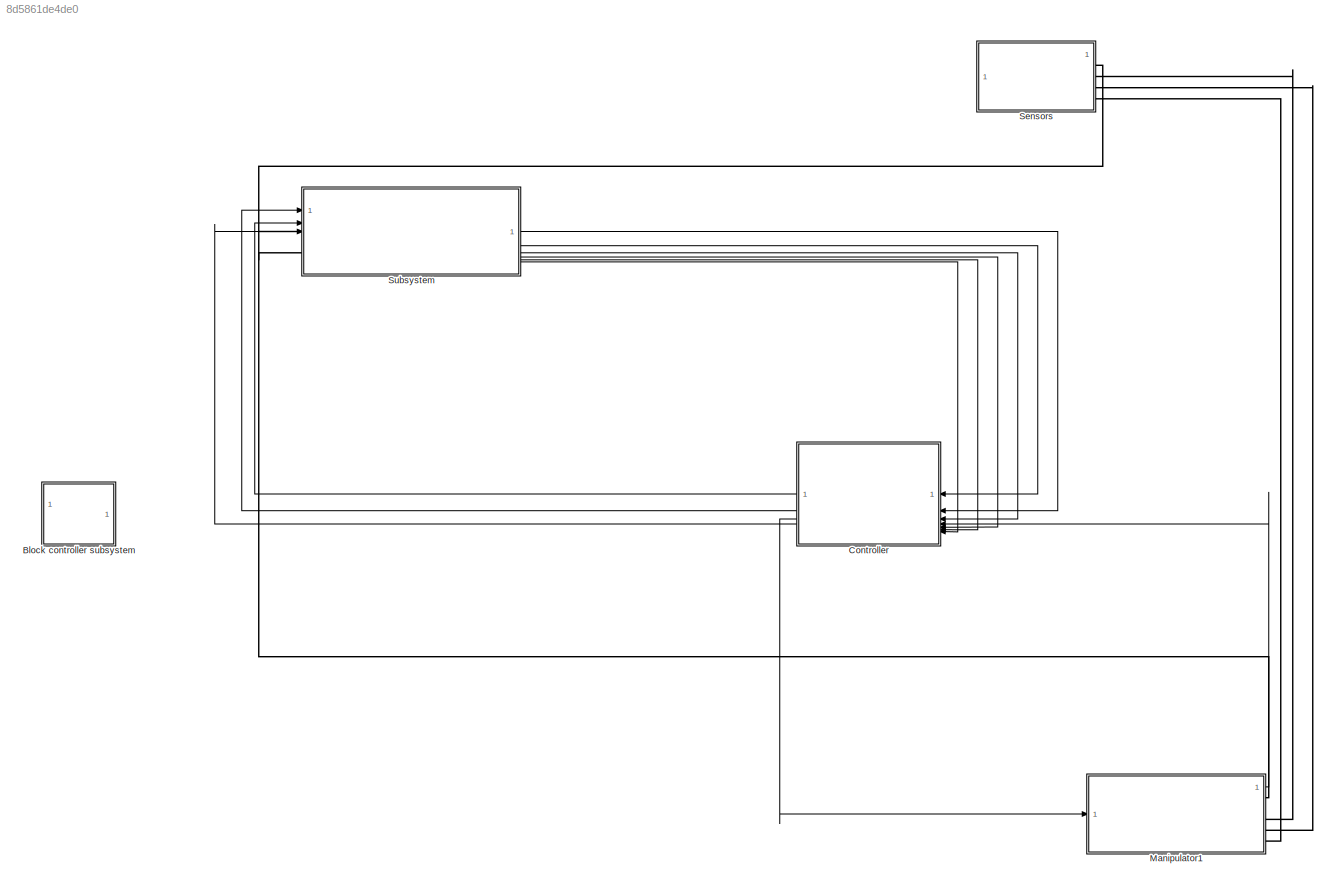
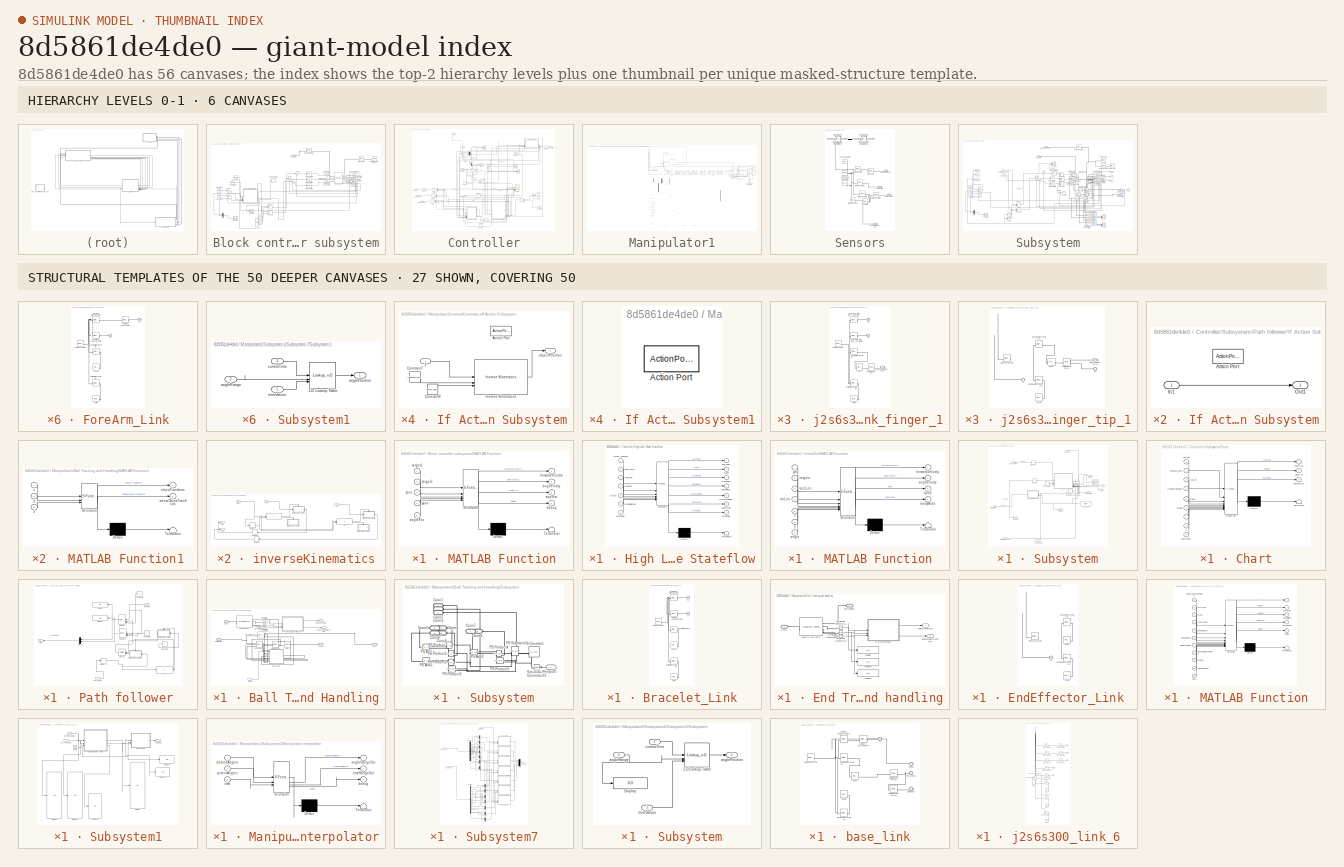
[diagram: thumbnail index - top-2 hierarchy levels (6 canvases) + 27 structural-template representatives of the remaining 50 canvases]
MODEL slx_8d5861de4de0
KIND model
CONFIG AbsTol = auto
CONFIG EnableMultiTasking = off
CONFIG FixedStep = 0.1
CONFIG MaxStep = 0.01
CONFIG MinStep = auto
CONFIG RelTol = 1e-3
CONFIG SampleTimeConstraint = Unconstrained
CONFIG SolverName = ode15s
CONFIG StartTime = 0.0
CONFIG StopTime = 1000
BLOCK [SubSystem] Block controller subsystem
  Commented = on
  TreatAsAtomicUnit = on
BLOCK [Reference] Block controller subsystem/Brick Solid1  REF=sm_lib/Body Elements/Brick Solid
  SourceBlock = sm_lib/Body Elements/Brick Solid
  SourceType = Brick Solid
BLOCK [Constant] Block controller subsystem/Constant
  Value = target1
BLOCK [Constant] Block controller subsystem/Constant1
  Value = startx
BLOCK [Constant] Block controller subsystem/Constant2
  Value = starty
BLOCK [Constant] Block controller subsystem/Constant3
  Value = target2
BLOCK [Trigonometry] Block controller subsystem/Cos
  Operator = cos
BLOCK [Trigonometry] Block controller subsystem/Cos1
BLOCK [SubSystem] Block controller subsystem/MATLAB Function
  ErrorFcn = Stateflow.Translate.translate
  LibrarySourceBlock = simulink/User-Defined\nFunctions/MATLAB Function
  PermitHierarchicalResolution = ExplicitOnly
  SFBlockType = MATLAB Function
  SystemSampleTime = 0.1
  TreatAsAtomicUnit = on
BLOCK [Demux] Block controller subsystem/MATLAB Function/ Demux 
  Outputs = 1
BLOCK [S-Function] Block controller subsystem/MATLAB Function/ SFunction 
  EnableBusSupport = on
  FunctionName = sf_sfun
  PortCounts = [5 5]
  SFcnIsStateOwnerBlock = off
  SFunctionDeploymentMode = off
  Tag = Stateflow S-Function 2
BLOCK [Terminator] Block controller subsystem/MATLAB Function/ Terminator 
BLOCK [Outport] Block controller subsystem/MATLAB Function/angVelocity
  Port = 2
BLOCK [Inport] Block controller subsystem/MATLAB Function/anglePos
  Port = 5
BLOCK [Outport] Block controller subsystem/MATLAB Function/debug
  Port = 4
BLOCK [Outport] Block controller subsystem/MATLAB Function/forwardVelocity
BLOCK [Outport] Block controller subsystem/MATLAB Function/stopSim
  Port = 3
BLOCK [Inport] Block controller subsystem/MATLAB Function/target1
BLOCK [Inport] Block controller subsystem/MATLAB Function/target2
  Port = 2
BLOCK [Inport] Block controller subsystem/MATLAB Function/xpos
  Port = 3
BLOCK [Inport] Block controller subsystem/MATLAB Function/ypos
  Port = 4
BLOCK [Mux] Block controller subsystem/Mux
  DisplayOption = bar
  Inputs = 2
BLOCK [Reference] Block controller subsystem/PID Controller r  REF=slpidlib/PID Controller
  LibrarySourceBlock = simulink/Continuous/PID Controller
  SourceBlock = slpidlib/PID Controller
  SourceType = PID 1dof
BLOCK [Reference] Block controller subsystem/PID Controller x  REF=slpidlib/PID Controller
  LibrarySourceBlock = simulink/Continuous/PID Controller
  SourceBlock = slpidlib/PID Controller
  SourceType = PID 1dof
BLOCK [Reference] Block controller subsystem/PID Controller y  REF=slpidlib/PID Controller
  LibrarySourceBlock = simulink/Continuous/PID Controller
  SourceBlock = slpidlib/PID Controller
  SourceType = PID 1dof
BLOCK [Reference] Block controller subsystem/PS-Simulink Converter  REF=nesl_utility/PS-Simulink
Converter
  SourceBlock = nesl_utility/PS-Simulink\nConverter
  SourceType = PS-Simulink\nConverter
BLOCK [Reference] Block controller subsystem/PS-Simulink Converter1  REF=nesl_utility/PS-Simulink
Converter
  SourceBlock = nesl_utility/PS-Simulink\nConverter
  SourceType = PS-Simulink\nConverter
BLOCK [Reference] Block controller subsystem/PS-Simulink Converter2  REF=nesl_utility/PS-Simulink
Converter
  SourceBlock = nesl_utility/PS-Simulink\nConverter
  SourceType = PS-Simulink\nConverter
BLOCK [Reference] Block controller subsystem/PS-Simulink Converter3  REF=nesl_utility/PS-Simulink
Converter
  SourceBlock = nesl_utility/PS-Simulink\nConverter
  SourceType = PS-Simulink\nConverter
BLOCK [Reference] Block controller subsystem/PS-Simulink Converter4  REF=nesl_utility/PS-Simulink
Converter
  SourceBlock = nesl_utility/PS-Simulink\nConverter
  SourceType = PS-Simulink\nConverter
BLOCK [Reference] Block controller subsystem/PS-Simulink Converter5  REF=nesl_utility/PS-Simulink
Converter
  SourceBlock = nesl_utility/PS-Simulink\nConverter
  SourceType = PS-Simulink\nConverter
BLOCK [Reference] Block controller subsystem/Planar Joint  REF=sm_lib/Joints/Planar Joint
  SourceBlock = sm_lib/Joints/Planar Joint
  SourceType = Planar Joint
BLOCK [Product] Block controller subsystem/Product
BLOCK [Product] Block controller subsystem/Product1
BLOCK [Reference] Block controller subsystem/Rigid Transform1  REF=sm_lib/Frames and
Transforms/Rigid
Transform
  SourceBlock = sm_lib/Frames and\nTransforms/Rigid\nTransform
  SourceType = Rigid\nTransform
BLOCK [Scope] Block controller subsystem/Scope
  Floating = off
  NumInputPorts = 1
  ScopeSpecificationString = Simulink.scopes.TimeScopeBlockCfg('CurrentConfiguration', extmgr.ConfigurationSet(extmgr.Configuration('Core','General UI',true),extmgr.Configuration('Core','Source UI',true),extmgr.Configuration('Sources','WiredSimulink',true),extmgr.Configuration('Visuals','Time Domain',true,'SerializedDisplays',{struct('MinYLimReal','-0.75','MaxYLimReal','16.75','YLabelReal','','MinYLimMag','0.00000','MaxYLimMa...<+1356ch>
BLOCK [Scope] Block controller subsystem/Scope1
  Floating = off
  NumInputPorts = 1
  ScopeSpecificationString = Simulink.scopes.TimeScopeBlockCfg('CurrentConfiguration', extmgr.ConfigurationSet(extmgr.Configuration('Core','General UI',true),extmgr.Configuration('Core','Source UI',true),extmgr.Configuration('Sources','WiredSimulink',true,'DataLoggingVariableName','ScopeData1'),extmgr.Configuration('Visuals','Time Domain',true,'SerializedDisplays',{struct('MinYLimReal','-0.12626','MaxYLimReal','21.13635','YLa...<+1691ch>
BLOCK [Reference] Block controller subsystem/Simulink-PS Converter1  REF=nesl_utility/Simulink-PS
Converter
  SourceBlock = nesl_utility/Simulink-PS\nConverter
  SourceType = Simulink-PS\nConverter
BLOCK [Reference] Block controller subsystem/Simulink-PS Converter2  REF=nesl_utility/Simulink-PS
Converter
  SourceBlock = nesl_utility/Simulink-PS\nConverter
  SourceType = Simulink-PS\nConverter
BLOCK [Reference] Block controller subsystem/Simulink-PS Converter5  REF=nesl_utility/Simulink-PS
Converter
  SourceBlock = nesl_utility/Simulink-PS\nConverter
  SourceType = Simulink-PS\nConverter
BLOCK [Reference] Block controller subsystem/Spatial Contact Force  REF=sm_lib/Forces and
Torques/Spatial
Contact Force
  SourceBlock = sm_lib/Forces and\nTorques/Spatial\nContact Force
  SourceType = Spatial\nContact Force
BLOCK [Stop] Block controller subsystem/Stop Simulation
BLOCK [Sum] Block controller subsystem/Sum
  Inputs = |+-
BLOCK [Sum] Block controller subsystem/Sum1
  Inputs = |++
BLOCK [Sum] Block controller subsystem/Sum2
  Inputs = |++
BLOCK [Sum] Block controller subsystem/Sum3
  Inputs = |+-
BLOCK [Sum] Block controller subsystem/Sum4
  Inputs = |+-
BLOCK [PMIOPort] Block controller subsystem/Transform
  Side = Left
BLOCK [SubSystem] Controller
  NameLocation = top
BLOCK [Outport] Controller/Angular Velocity
  NameLocation = top
  Port = 2
  VectorParamsAs1DForOutWhenUnconnected = off
BLOCK [Trigonometry] Controller/Atan2
  Operator = atan2
BLOCK [Constant] Controller/Constant
  Value = 0.1
BLOCK [Constant] Controller/Constant2
  Value = 0.001
BLOCK [Constant] Controller/Constant3
  Value = tarLen
BLOCK [Demux] Controller/Demux1
  Outputs = 2
BLOCK [Outport] Controller/ForwardVelocity
  NameLocation = top
  VectorParamsAs1DForOutWhenUnconnected = off
BLOCK [SubSystem] Controller/High Level Mode Stateflow
  ErrorFcn = Stateflow.Translate.translate
  PermitHierarchicalResolution = ExplicitOnly
  PortSchema = {"entries":[{"content":{"sides":[{"content":{"connectorIds":["In2","In3","In1"]},"type":"ConnectorPlacement.EquallySpacedRectSide","uuid":"54635eaa-af22-4c07-946c-8b3764ca4079"},{"content":{"connectorIds":["Out1","Out2","Out3","Out4","In4","In5","In6","In7","Out5","Out6","Out7"],"side":"RIGHT"},"type":"ConnectorPlacement.EquallySpacedRectSide","uuid":"b8ca9e50-c21e-481d-aebe-d3447dd5b6ec"},{"conte...<+318ch>
  SFBlockType = Chart
  TreatAsAtomicUnit = on
BLOCK [Demux] Controller/High Level Mode Stateflow/ Demux 
  Outputs = 1
BLOCK [S-Function] Controller/High Level Mode Stateflow/ SFunction 
  EnableBusSupport = on
  FunctionName = sf_sfun
  PortCounts = [7 8]
  SFcnIsStateOwnerBlock = off
  SFunctionDeploymentMode = off
  Tag = Stateflow S-Function 3
BLOCK [Terminator] Controller/High Level Mode Stateflow/ Terminator 
BLOCK [Outport] Controller/High Level Mode Stateflow/ManipTask
  Port = 3
BLOCK [Outport] Controller/High Level Mode Stateflow/angVelocity
  Port = 4
BLOCK [Outport] Controller/High Level Mode Stateflow/bodyMode
  Port = 6
BLOCK [Inport] Controller/High Level Mode Stateflow/broadFinished
  Port = 6
BLOCK [Outport] Controller/High Level Mode Stateflow/broadside
  Port = 7
BLOCK [Inport] Controller/High Level Mode Stateflow/delta_theta
  Port = 2
BLOCK [Outport] Controller/High Level Mode Stateflow/forwardVelocity
  Port = 5
BLOCK [Outport] Controller/High Level Mode Stateflow/mode
  Port = 2
BLOCK [Inport] Controller/High Level Mode Stateflow/posToSkip
  Port = 7
BLOCK [Outport] Controller/High Level Mode Stateflow/pos_index
BLOCK [Inport] Controller/High Level Mode Stateflow/resetPos
  Port = 3
BLOCK [Inport] Controller/High Level Mode Stateflow/stopped
  Port = 4
BLOCK [Inport] Controller/High Level Mode Stateflow/tarLen
  Port = 5
BLOCK [Inport] Controller/High Level Mode Stateflow/target_reached
BLOCK [RelationalOperator] Controller/Less Than
  InputSameDT = off
  Operator = <
  OutDataTypeStr = boolean
  RndMeth = Simplest
BLOCK [RelationalOperator] Controller/Less Than1
  InputSameDT = off
  Operator = <
  OutDataTypeStr = boolean
  RndMeth = Simplest
BLOCK [SubSystem] Controller/MATLAB Function
  ErrorFcn = Stateflow.Translate.translate
  LibrarySourceBlock = simulink/User-Defined\nFunctions/MATLAB Function
  PermitHierarchicalResolution = ExplicitOnly
  SFBlockType = MATLAB Function
  TreatAsAtomicUnit = on
BLOCK [Demux] Controller/MATLAB Function/ Demux 
  Outputs = 1
BLOCK [S-Function] Controller/MATLAB Function/ SFunction 
  EnableBusSupport = on
  FunctionName = sf_sfun
  PortCounts = [7 5]
  SFcnIsStateOwnerBlock = off
  SFunctionDeploymentMode = off
  Tag = Stateflow S-Function 13
BLOCK [Terminator] Controller/MATLAB Function/ Terminator 
BLOCK [Outport] Controller/MATLAB Function/angVelocity
  Port = 2
BLOCK [Inport] Controller/MATLAB Function/angle
  Port = 7
BLOCK [Outport] Controller/MATLAB Function/bodyMode
  Port = 4
BLOCK [Outport] Controller/MATLAB Function/done
  Port = 3
BLOCK [Outport] Controller/MATLAB Function/forwardVelocity
BLOCK [Inport] Controller/MATLAB Function/go
BLOCK [Inport] Controller/MATLAB Function/tar1Len
  Port = 3
BLOCK [Inport] Controller/MATLAB Function/tarLen
  Port = 4
BLOCK [Inport] Controller/MATLAB Function/targets
  Port = 2
BLOCK [Inport] Controller/MATLAB Function/x
  Port = 5
BLOCK [Inport] Controller/MATLAB Function/y
  Port = 6
BLOCK [Inport] Controller/ManipState
  NameLocation = right
  Port = 4
BLOCK [Memory] Controller/Memory
BLOCK [Memory] Controller/Memory1
BLOCK [Memory] Controller/Memory2
BLOCK [Memory] Controller/Memory3
BLOCK [Memory] Controller/Memory4
BLOCK [Memory] Controller/Memory5
BLOCK [Outport] Controller/Mode
  Port = 4
BLOCK [Mux] Controller/Mux
  DisplayOption = bar
  Inputs = 2
BLOCK [Scope] Controller/Scope
  Floating = off
  NumInputPorts = 3
  ScopeSpecificationString = Simulink.scopes.TimeScopeBlockCfg('CurrentConfiguration', extmgr.ConfigurationSet(extmgr.Configuration('Core','General UI',true),extmgr.Configuration('Core','Source UI',true),extmgr.Configuration('Sources','WiredSimulink',true,'DataLoggingVariableName','ScopeData1'),extmgr.Configuration('Visuals','Time Domain',true,'SerializedDisplays',{struct('MinYLimReal','-5.94785','MaxYLimReal','5.12673','YLab...<+1427ch>
BLOCK [Scope] Controller/Scope1
  Floating = off
  NumInputPorts = 2
  ScopeSpecificationString = Simulink.scopes.TimeScopeBlockCfg('CurrentConfiguration', extmgr.ConfigurationSet(extmgr.Configuration('Core','General UI',true),extmgr.Configuration('Core','Source UI',true),extmgr.Configuration('Sources','WiredSimulink',true,'DataLoggingVariableName','ScopeData1'),extmgr.Configuration('Visuals','Time Domain',true,'SerializedDisplays',{struct('MinYLimReal','-8.42515','MaxYLimReal','12.96484','YLa...<+1793ch>
BLOCK [Scope] Controller/Scope2
  Floating = off
  NumInputPorts = 7
  ScopeSpecificationString = Simulink.scopes.TimeScopeBlockCfg('CurrentConfiguration', extmgr.ConfigurationSet(extmgr.Configuration('Core','General UI',true),extmgr.Configuration('Core','Source UI',true),extmgr.Configuration('Sources','WiredSimulink',true,'DataLoggingVariableName','ScopeData1'),extmgr.Configuration('Visuals','Time Domain',true,'SerializedDisplays',{struct('MinYLimReal','-4.68883','MaxYLimReal','9.40987','YLab...<+1640ch>
BLOCK [Scope] Controller/Scope3
  Floating = off
  NumInputPorts = 2
  ScopeSpecificationString = Simulink.scopes.TimeScopeBlockCfg('CurrentConfiguration', extmgr.ConfigurationSet(extmgr.Configuration('Core','General UI',true),extmgr.Configuration('Core','Source UI',true),extmgr.Configuration('Sources','WiredSimulink',true,'DataLoggingVariableName','ScopeData1'),extmgr.Configuration('Visuals','Time Domain',true,'SerializedDisplays',{struct('MinYLimReal','-8.42515','MaxYLimReal','12.96484','YLa...<+1464ch>
BLOCK [Scope] Controller/Scope4
  Floating = off
  NumInputPorts = 2
  ScopeSpecificationString = Simulink.scopes.TimeScopeBlockCfg('CurrentConfiguration', extmgr.ConfigurationSet(extmgr.Configuration('Core','General UI',true),extmgr.Configuration('Core','Source UI',true),extmgr.Configuration('Sources','WiredSimulink',true,'DataLoggingVariableName','ScopeData1'),extmgr.Configuration('Visuals','Time Domain',true,'SerializedDisplays',{struct('MinYLimReal','-0.625','MaxYLimReal','5.625','YLabelRe...<+1363ch>
BLOCK [Sqrt] Controller/Sqrt
  NameLocation = left
BLOCK [Math] Controller/Square
  NameLocation = left
  Operator = square
BLOCK [Math] Controller/Square1
  NameLocation = left
  Operator = square
BLOCK [Outport] Controller/Start Manip Task
  NameLocation = top
  Port = 3
  VectorParamsAs1DForOutWhenUnconnected = off
BLOCK [SubSystem] Controller/Subsystem
BLOCK [SubSystem] Controller/Subsystem/Chart
  ErrorFcn = Stateflow.Translate.translate
  PermitHierarchicalResolution = ExplicitOnly
  SFBlockType = Chart
  TreatAsAtomicUnit = on
BLOCK [Demux] Controller/Subsystem/Chart/ Demux 
  Outputs = 1
BLOCK [S-Function] Controller/Subsystem/Chart/ SFunction 
  EnableBusSupport = on
  FunctionName = sf_sfun
  PortCounts = [9 4]
  SFcnIsStateOwnerBlock = off
  SFunctionDeploymentMode = off
  Tag = Stateflow S-Function 4
BLOCK [Terminator] Controller/Subsystem/Chart/ Terminator 
BLOCK [Inport] Controller/Subsystem/Chart/check
  Port = 5
BLOCK [Outport] Controller/Subsystem/Chart/endSim
  Port = 2
BLOCK [Inport] Controller/Subsystem/Chart/manipState
  Port = 2
BLOCK [Outport] Controller/Subsystem/Chart/posToSkip
  Port = 3
BLOCK [Inport] Controller/Subsystem/Chart/pos_index
  Port = 9
BLOCK [Outport] Controller/Subsystem/Chart/resetPos
BLOCK [Inport] Controller/Subsystem/Chart/tar1Len
BLOCK [Inport] Controller/Subsystem/Chart/tarLen
  Port = 3
BLOCK [Inport] Controller/Subsystem/Chart/target
  Port = 6
BLOCK [Inport] Controller/Subsystem/Chart/targetReached
  Port = 4
BLOCK [Inport] Controller/Subsystem/Chart/x
  Port = 8
BLOCK [Inport] Controller/Subsystem/Chart/y
  Port = 7
BLOCK [Constant] Controller/Subsystem/Constant1
  Value = target
BLOCK [Constant] Controller/Subsystem/Constant6
  Value = tar1Len
BLOCK [Delay] Controller/Subsystem/Delay
  DelayLength = 1
  InputPortMap = u0
BLOCK [Inport] Controller/Subsystem/ManipState
  NameLocation = top
BLOCK [Memory] Controller/Subsystem/Memory1
BLOCK [Memory] Controller/Subsystem/Memory2
BLOCK [SubSystem] Controller/Subsystem/Path follower
  TreatAsAtomicUnit = on
BLOCK [Constant] Controller/Subsystem/Path follower/Constant2
BLOCK [Constant] Controller/Subsystem/Path follower/Constant3
  Value = 2
BLOCK [Constant] Controller/Subsystem/Path follower/Constant4
BLOCK [Display] Controller/Subsystem/Path follower/Display
  Decimation = 1
BLOCK [Display] Controller/Subsystem/Path follower/Display1
  Decimation = 1
BLOCK [If] Controller/Subsystem/Path follower/If
  IfExpression = u1 <= 0
BLOCK [SubSystem] Controller/Subsystem/Path follower/If Action Subsystem
  TreatAsAtomicUnit = on
BLOCK [ActionPort] Controller/Subsystem/Path follower/If Action Subsystem/Action Port
  ActionPortLabel = if(u1 <= 0)
BLOCK [Inport] Controller/Subsystem/Path follower/If Action Subsystem/In1
BLOCK [Outport] Controller/Subsystem/Path follower/If Action Subsystem/Out1
BLOCK [SubSystem] Controller/Subsystem/Path follower/If Action Subsystem1
  TreatAsAtomicUnit = on
BLOCK [ActionPort] Controller/Subsystem/Path follower/If Action Subsystem1/Action Port
  ActionPortLabel = else
BLOCK [Inport] Controller/Subsystem/Path follower/If Action Subsystem1/In1
BLOCK [Outport] Controller/Subsystem/Path follower/If Action Subsystem1/Out1
BLOCK [Memory] Controller/Subsystem/Path follower/Memory1
BLOCK [Merge] Controller/Subsystem/Path follower/Merge
BLOCK [Mux] Controller/Subsystem/Path follower/Mux1
  DisplayOption = bar
  Inputs = 2
BLOCK [Outport] Controller/Subsystem/Path follower/Out1
BLOCK [Selector] Controller/Subsystem/Path follower/Selector
  IndexOptions = Index vector (port),Index vector (port)
  Indices = [1 3],1
  InputPortWidth = 1
  NumberOfDimensions = 2
  OutputSizes = 1,1
BLOCK [Selector] Controller/Subsystem/Path follower/Selector1
  IndexOptions = Index vector (port),Index vector (port)
  Indices = [1 3],1
  InputPortWidth = 1
  NumberOfDimensions = 2
  OutputSizes = 1,1
BLOCK [Inport] Controller/Subsystem/Path follower/pos_index
BLOCK [Inport] Controller/Subsystem/Path follower/targets
  Port = 2
BLOCK [Stop] Controller/Subsystem/Stop Simulation
BLOCK [Outport] Controller/Subsystem/TargetPos
BLOCK [Outport] Controller/Subsystem/posToskip
  Port = 4
BLOCK [Inport] Controller/Subsystem/pos_index
  Port = 3
BLOCK [Outport] Controller/Subsystem/resetPos
  Port = 2
BLOCK [Outport] Controller/Subsystem/tar1Len
  Port = 5
BLOCK [Inport] Controller/Subsystem/tarLen
  Port = 4
BLOCK [Inport] Controller/Subsystem/targetReached
  Port = 2
BLOCK [Outport] Controller/Subsystem/targets
  Port = 3
BLOCK [Inport] Controller/Subsystem/x
  Port = 5
BLOCK [Inport] Controller/Subsystem/y
  Port = 6
BLOCK [Sum] Controller/Sum
  Inputs = |+++
BLOCK [Sum] Controller/Sum1
  Inputs = |-+
  NameLocation = left
BLOCK [Sum] Controller/Sum2
  Inputs = -+|
  NameLocation = left
BLOCK [Sum] Controller/Sum3
  Inputs = |++
  NameLocation = left
BLOCK [Sum] Controller/Sum6
  Inputs = |++
BLOCK [Switch] Controller/Switch
  Criteria = u2 > Threshold
  InputSameDT = off
  SaturateOnIntegerOverflow = off
BLOCK [Switch] Controller/Switch1
  Criteria = u2 > Threshold
  InputSameDT = off
  SaturateOnIntegerOverflow = off
BLOCK [Switch] Controller/Switch2
  Criteria = u2 > Threshold
  InputSameDT = off
  SaturateOnIntegerOverflow = off
BLOCK [Inport] Controller/angpos
  NameLocation = top
  Port = 3
BLOCK [Inport] Controller/rv
  NameLocation = top
  Port = 7
BLOCK [Inport] Controller/xpos
  NameLocation = top
BLOCK [Inport] Controller/xv
  NameLocation = top
  Port = 5
BLOCK [Inport] Controller/ypos
  NameLocation = top
  Port = 2
BLOCK [Inport] Controller/yv
  NameLocation = top
  Port = 6
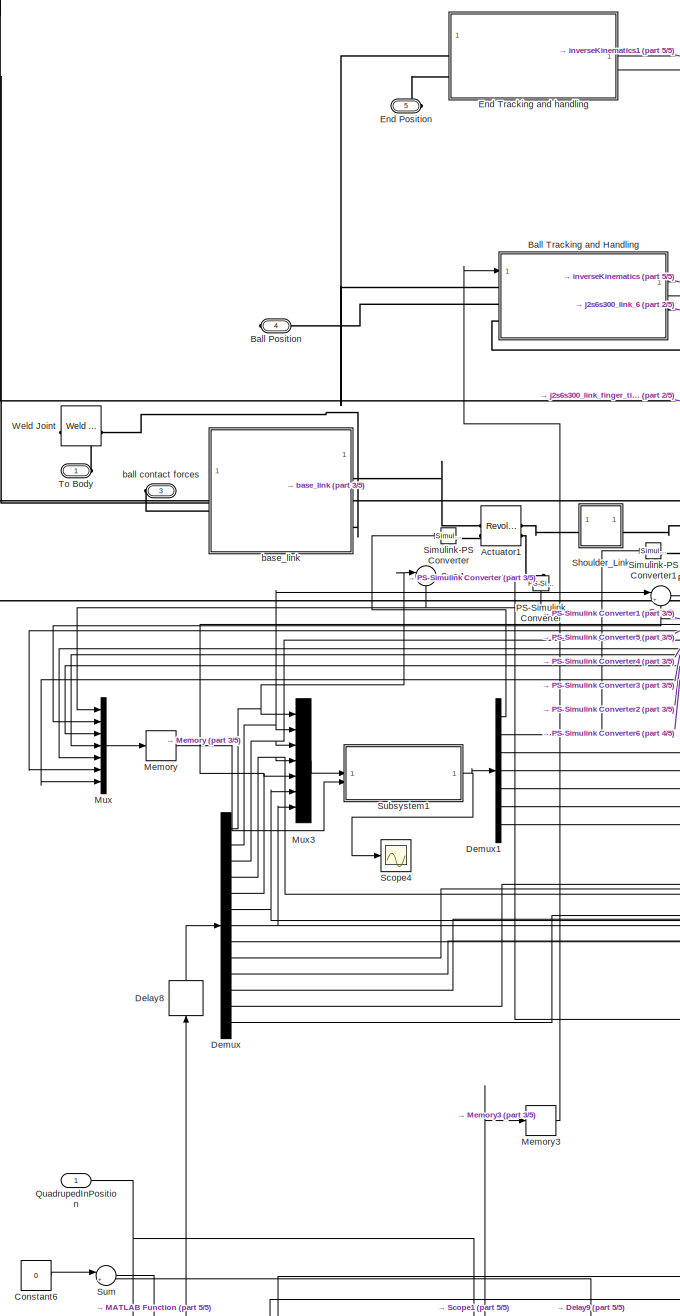
[diagram: Manipulator1 - part 1/5, central region]
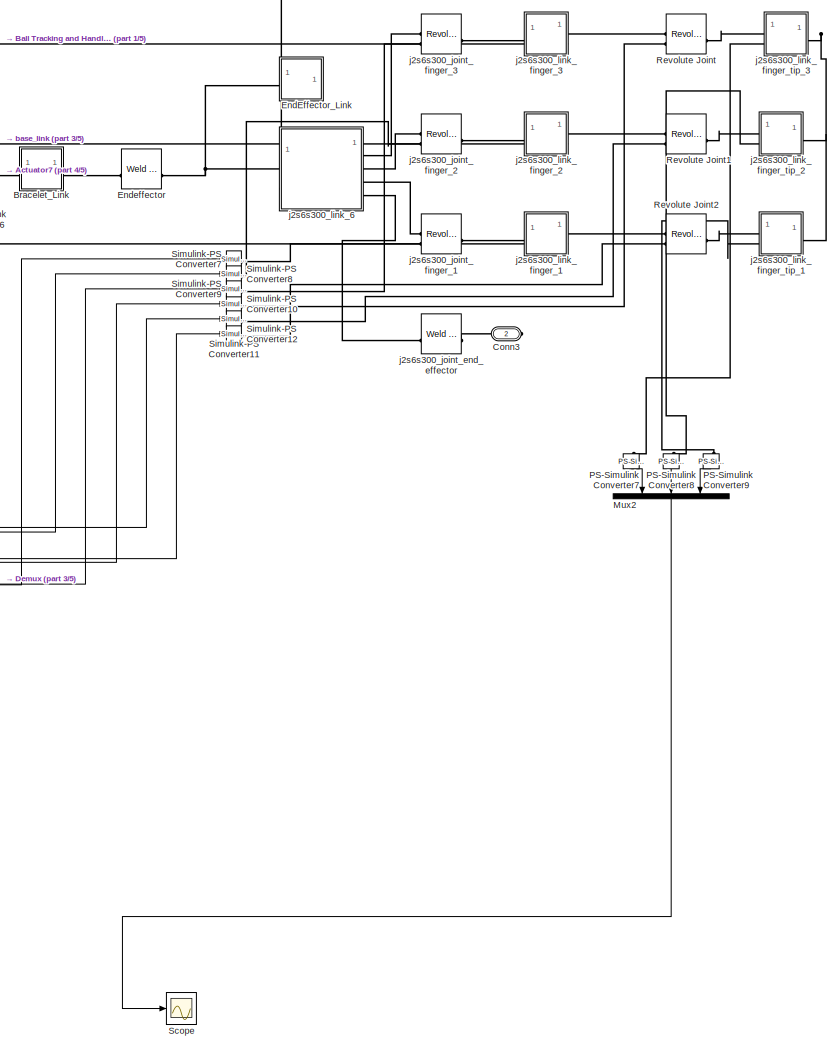
[diagram: Manipulator1 - part 2/5, middle right region]
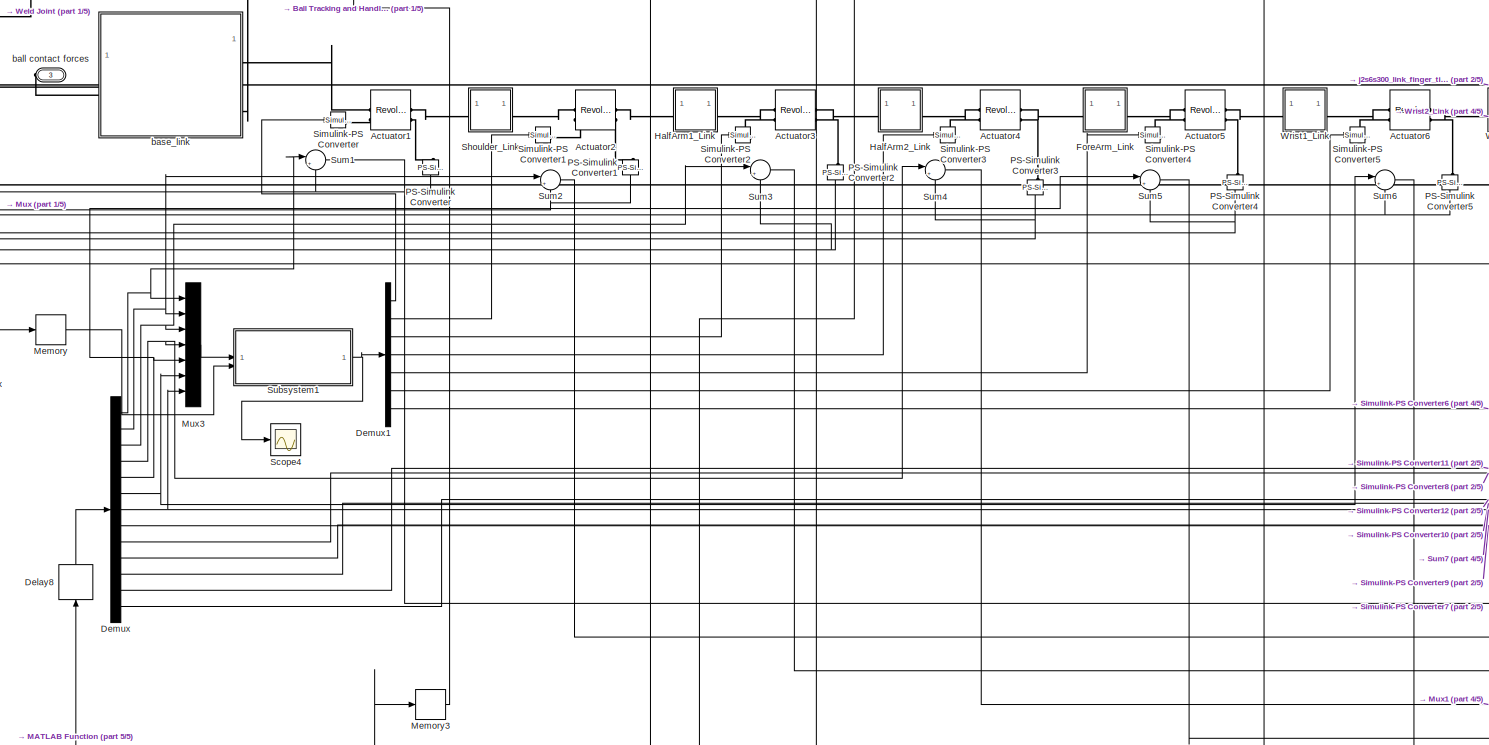
[diagram: Manipulator1 - part 3/5, central region]
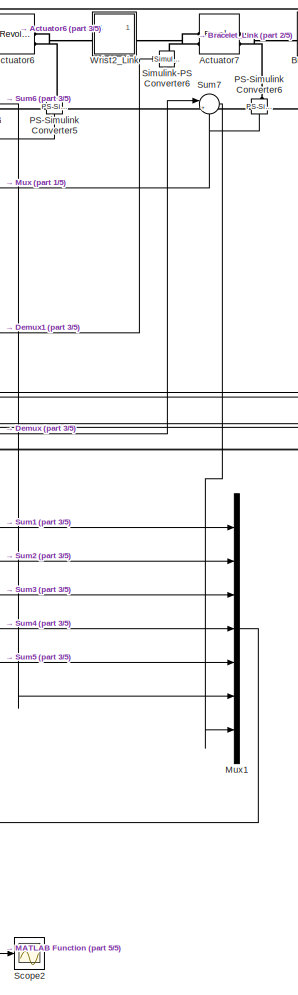
[diagram: Manipulator1 - part 4/5, middle right region]
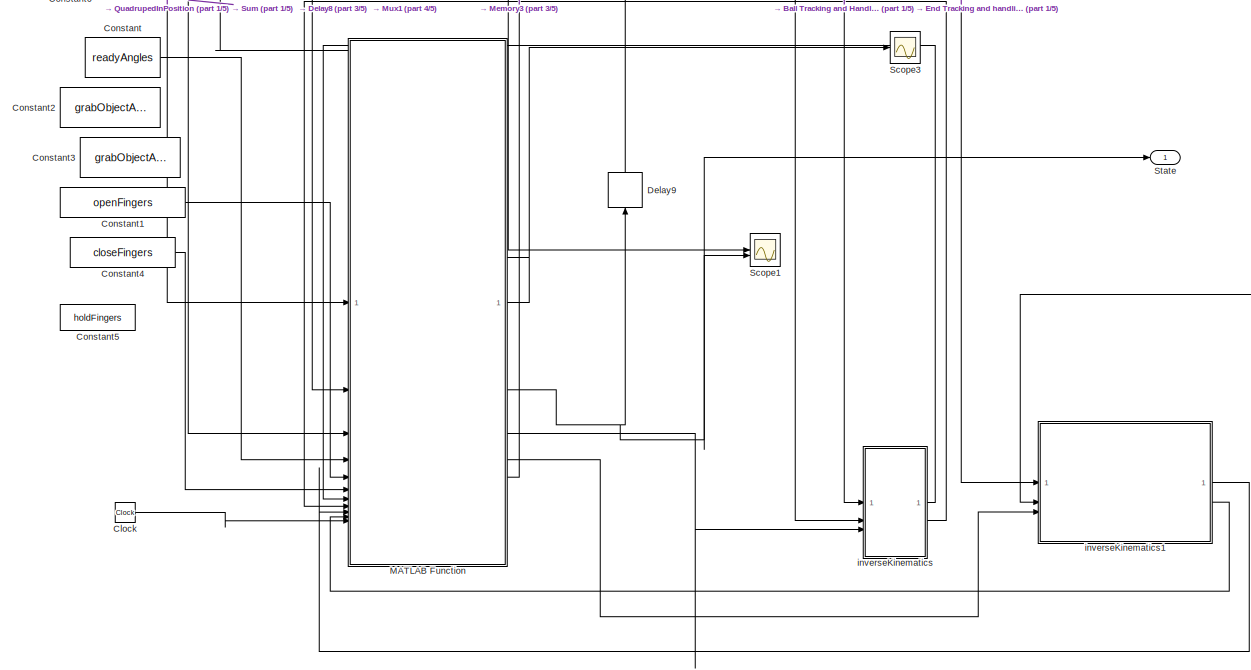
[diagram: Manipulator1 - part 5/5, bottom center region]
BLOCK [SubSystem] Manipulator1
BLOCK [Reference] Manipulator1/Actuator1  REF=sm_lib/Joints/Revolute Joint
  SourceBlock = sm_lib/Joints/Revolute Joint
  SourceType = Revolute Joint
BLOCK [Reference] Manipulator1/Actuator2  REF=sm_lib/Joints/Revolute Joint
  SourceBlock = sm_lib/Joints/Revolute Joint
  SourceType = Revolute Joint
BLOCK [Reference] Manipulator1/Actuator3  REF=sm_lib/Joints/Revolute Joint
  SourceBlock = sm_lib/Joints/Revolute Joint
  SourceType = Revolute Joint
BLOCK [Reference] Manipulator1/Actuator4  REF=sm_lib/Joints/Revolute Joint
  SourceBlock = sm_lib/Joints/Revolute Joint
  SourceType = Revolute Joint
BLOCK [Reference] Manipulator1/Actuator5  REF=sm_lib/Joints/Revolute Joint
  SourceBlock = sm_lib/Joints/Revolute Joint
  SourceType = Revolute Joint
BLOCK [Reference] Manipulator1/Actuator6  REF=sm_lib/Joints/Revolute Joint
  SourceBlock = sm_lib/Joints/Revolute Joint
  SourceType = Revolute Joint
BLOCK [Reference] Manipulator1/Actuator7  REF=sm_lib/Joints/Revolute Joint
  SourceBlock = sm_lib/Joints/Revolute Joint
  SourceType = Revolute Joint
BLOCK [PMIOPort] Manipulator1/Ball Position
  Port = 4
  Side = Right
BLOCK [SubSystem] Manipulator1/Ball Tracking and Handling
BLOCK [Reference] Manipulator1/Ball Tracking and Handling/BASE TO BALL  REF=sm_lib/Frames and
Transforms/Transform
Sensor
  SourceBlock = sm_lib/Frames and\nTransforms/Transform\nSensor
  SourceType = Transform\nSensor
BLOCK [PMIOPort] Manipulator1/Ball Tracking and Handling/Ball Position
  Port = 2
  Side = Left
BLOCK [PMIOPort] Manipulator1/Ball Tracking and Handling/Base
  Side = Left
BLOCK [PMIOPort] Manipulator1/Ball Tracking and Handling/Conn3
  Port = 3
  Side = Left
BLOCK [PMIOPort] Manipulator1/Ball Tracking and Handling/Conn4
  Port = 4
  Side = Right
BLOCK [SubSystem] Manipulator1/Ball Tracking and Handling/MATLAB Function1
  ErrorFcn = Stateflow.Translate.translate
  LibrarySourceBlock = simulink/User-Defined\nFunctions/MATLAB Function
  PermitHierarchicalResolution = ExplicitOnly
  SFBlockType = MATLAB Function
  TreatAsAtomicUnit = on
BLOCK [Demux] Manipulator1/Ball Tracking and Handling/MATLAB Function1/ Demux 
  Outputs = 1
BLOCK [S-Function] Manipulator1/Ball Tracking and Handling/MATLAB Function1/ SFunction 
  EnableBusSupport = on
  FunctionName = sf_sfun
  PortCounts = [3 3]
  SFcnIsStateOwnerBlock = off
  SFunctionDeploymentMode = off
  Tag = Stateflow S-Function 7
BLOCK [Terminator] Manipulator1/Ball Tracking and Handling/MATLAB Function1/ Terminator 
BLOCK [Outport] Manipulator1/Ball Tracking and Handling/MATLAB Function1/aboveObjectTransform
  Port = 2
BLOCK [Outport] Manipulator1/Ball Tracking and Handling/MATLAB Function1/objectTransform
BLOCK [Inport] Manipulator1/Ball Tracking and Handling/MATLAB Function1/x
BLOCK [Inport] Manipulator1/Ball Tracking and Handling/MATLAB Function1/y
  Port = 2
BLOCK [Inport] Manipulator1/Ball Tracking and Handling/MATLAB Function1/z
  Port = 3
BLOCK [Reference] Manipulator1/Ball Tracking and Handling/Object  REF=sm_lib/Body Elements/Spherical Solid
  SourceBlock = sm_lib/Body Elements/Spherical Solid
  SourceType = Spherical Solid
BLOCK [Reference] Manipulator1/Ball Tracking and Handling/PS-Simulink Converter11  REF=nesl_utility/PS-Simulink
Converter
  SourceBlock = nesl_utility/PS-Simulink\nConverter
  SourceType = PS-Simulink\nConverter
BLOCK [Reference] Manipulator1/Ball Tracking and Handling/PS-Simulink Converter12  REF=nesl_utility/PS-Simulink
Converter
  SourceBlock = nesl_utility/PS-Simulink\nConverter
  SourceType = PS-Simulink\nConverter
BLOCK [Reference] Manipulator1/Ball Tracking and Handling/PS-Simulink Converter13  REF=nesl_utility/PS-Simulink
Converter
  SourceBlock = nesl_utility/PS-Simulink\nConverter
  SourceType = PS-Simulink\nConverter
BLOCK [Reference] Manipulator1/Ball Tracking and Handling/Planar Joint  REF=sm_lib/Joints/Planar Joint
  SourceBlock = sm_lib/Joints/Planar Joint
  SourceType = Planar Joint
BLOCK [Reference] Manipulator1/Ball Tracking and Handling/Prismatic Joint  REF=sm_lib/Joints/Prismatic
Joint
  SourceBlock = sm_lib/Joints/Prismatic\nJoint
  SourceType = Prismatic\nJoint
BLOCK [SubSystem] Manipulator1/Ball Tracking and Handling/Subsystem
BLOCK [PMIOPort] Manipulator1/Ball Tracking and Handling/Subsystem/Conn1
  Side = Left
BLOCK [PMIOPort] Manipulator1/Ball Tracking and Handling/Subsystem/Conn2
  Port = 2
  Side = Left
BLOCK [PMIOPort] Manipulator1/Ball Tracking and Handling/Subsystem/Conn3
  Port = 3
  Side = Left
BLOCK [PMIOPort] Manipulator1/Ball Tracking and Handling/Subsystem/Conn4
  Port = 4
  Side = Right
BLOCK [PMIOPort] Manipulator1/Ball Tracking and Handling/Subsystem/Conn5
  Port = 5
  Side = Left
BLOCK [PMIOPort] Manipulator1/Ball Tracking and Handling/Subsystem/Conn6
  Port = 6
  Side = Right
BLOCK [PMIOPort] Manipulator1/Ball Tracking and Handling/Subsystem/Conn7
  Port = 7
  Side = Left
BLOCK [PMIOPort] Manipulator1/Ball Tracking and Handling/Subsystem/Conn8
  Port = 8
  Side = Right
BLOCK [PMIOPort] Manipulator1/Ball Tracking and Handling/Subsystem/Conn9
  Port = 9
  Side = Left
BLOCK [Reference] Manipulator1/Ball Tracking and Handling/Subsystem/PS Add  REF=fl_lib/Physical Signals/Functions/PS Add
  SourceBlock = fl_lib/Physical Signals/Functions/PS Add
  SourceType = PS Add
BLOCK [Reference] Manipulator1/Ball Tracking and Handling/Subsystem/PS Add1  REF=fl_lib/Physical Signals/Functions/PS Add
  SourceBlock = fl_lib/Physical Signals/Functions/PS Add
  SourceType = PS Add
BLOCK [Reference] Manipulator1/Ball Tracking and Handling/Subsystem/PS Add2  REF=fl_lib/Physical Signals/Functions/PS Add
  SourceBlock = fl_lib/Physical Signals/Functions/PS Add
  SourceType = PS Add
BLOCK [Reference] Manipulator1/Ball Tracking and Handling/Subsystem/PS Constant  REF=fl_lib/Physical Signals/Sources/PS Constant
  SourceBlock = fl_lib/Physical Signals/Sources/PS Constant
  SourceType = PS Constant
BLOCK [Reference] Manipulator1/Ball Tracking and Handling/Subsystem/PS Product  REF=fl_ps_legacy_lib/Legacy Physical
Signals/Functions/PS Product
  NameLocation = top
  SourceBlock = fl_ps_legacy_lib/Legacy Physical\nSignals/Functions/PS Product
  SourceType = PS Product
BLOCK [Reference] Manipulator1/Ball Tracking and Handling/Subsystem/PS Product1  REF=fl_ps_legacy_lib/Legacy Physical
Signals/Functions/PS Product
  NameLocation = top
  SourceBlock = fl_ps_legacy_lib/Legacy Physical\nSignals/Functions/PS Product
  SourceType = PS Product
BLOCK [Reference] Manipulator1/Ball Tracking and Handling/Subsystem/PS Product2  REF=fl_ps_legacy_lib/Legacy Physical
Signals/Functions/PS Product
  NameLocation = top
  SourceBlock = fl_ps_legacy_lib/Legacy Physical\nSignals/Functions/PS Product
  SourceType = PS Product
BLOCK [Reference] Manipulator1/Ball Tracking and Handling/Subsystem/PS Product3  REF=fl_ps_legacy_lib/Legacy Physical
Signals/Functions/PS Product
  NameLocation = top
  SourceBlock = fl_ps_legacy_lib/Legacy Physical\nSignals/Functions/PS Product
  SourceType = PS Product
BLOCK [Reference] Manipulator1/Ball Tracking and Handling/Subsystem/PS Product4  REF=fl_ps_legacy_lib/Legacy Physical
Signals/Functions/PS Product
  NameLocation = top
  SourceBlock = fl_ps_legacy_lib/Legacy Physical\nSignals/Functions/PS Product
  SourceType = PS Product
BLOCK [Reference] Manipulator1/Ball Tracking and Handling/Subsystem/PS Product5  REF=fl_ps_legacy_lib/Legacy Physical
Signals/Functions/PS Product
  NameLocation = top
  SourceBlock = fl_ps_legacy_lib/Legacy Physical\nSignals/Functions/PS Product
  SourceType = PS Product
BLOCK [Reference] Manipulator1/Ball Tracking and Handling/Subsystem/PS Subtract  REF=fl_lib/Physical Signals/Functions/PS Subtract
  SourceBlock = fl_lib/Physical Signals/Functions/PS Subtract
  SourceType = PS Subtract
BLOCK [Reference] Manipulator1/Ball Tracking and Handling/Subsystem/Simulink-PS Converter13  REF=nesl_utility/Simulink-PS
Converter
  SourceBlock = nesl_utility/Simulink-PS\nConverter
  SourceType = Simulink-PS\nConverter
BLOCK [Inport] Manipulator1/Ball Tracking and Handling/Subsystem/input0
BLOCK [Reference] Manipulator1/Ball Tracking and Handling/Transform Sensor  REF=sm_lib/Frames and
Transforms/Transform
Sensor
  SourceBlock = sm_lib/Frames and\nTransforms/Transform\nSensor
  SourceType = Transform\nSensor
BLOCK [Outport] Manipulator1/Ball Tracking and Handling/aboveObjectTransform
  Port = 2
BLOCK [Inport] Manipulator1/Ball Tracking and Handling/input0
BLOCK [Outport] Manipulator1/Ball Tracking and Handling/objectTransform
BLOCK [SubSystem] Manipulator1/Bracelet_Link
BLOCK [Reference] Manipulator1/Bracelet_Link/Actuator7_AxisInvTransform  REF=sm_lib/Frames and
Transforms/Rigid
Transform
  SourceBlock = sm_lib/Frames and\nTransforms/Rigid\nTransform
  SourceType = Rigid\nTransform
BLOCK [Reference] Manipulator1/Bracelet_Link/Endeffector_OriginTransform  REF=sm_lib/Frames and
Transforms/Rigid
Transform
  SourceBlock = sm_lib/Frames and\nTransforms/Rigid\nTransform
  SourceType = Rigid\nTransform
BLOCK [PMIOPort] Manipulator1/Bracelet_Link/F
  Side = Left
BLOCK [PMIOPort] Manipulator1/Bracelet_Link/F1
  Port = 2
  Side = Right
BLOCK [Reference] Manipulator1/Bracelet_Link/Inertia  REF=sm_lib/Body Elements/Inertia
  SourceBlock = sm_lib/Body Elements/Inertia
  SourceType = Inertia
BLOCK [Reference] Manipulator1/Bracelet_Link/InertiaOriginTransform  REF=sm_lib/Frames and
Transforms/Rigid
Transform
  SourceBlock = sm_lib/Frames and\nTransforms/Rigid\nTransform
  SourceType = Rigid\nTransform
BLOCK [Reference] Manipulator1/Bracelet_Link/ReferenceFrame  REF=sm_lib/Frames and
Transforms/Reference
Frame
  SourceBlock = sm_lib/Frames and\nTransforms/Reference\nFrame
  SourceType = Reference\nFrame
BLOCK [Reference] Manipulator1/Bracelet_Link/Visual  REF=sm_lib/Body Elements/File Solid
  SourceBlock = sm_lib/Body Elements/File Solid
  SourceType = File Solid
BLOCK [Reference] Manipulator1/Bracelet_Link/VisualOriginTransform  REF=sm_lib/Frames and
Transforms/Rigid
Transform
  SourceBlock = sm_lib/Frames and\nTransforms/Rigid\nTransform
  SourceType = Rigid\nTransform
BLOCK [Clock] Manipulator1/Clock
BLOCK [PMIOPort] Manipulator1/Conn3
  Port = 2
  Side = Right
BLOCK [Constant] Manipulator1/Constant
  SampleTime = -1
  Value = readyAngles
BLOCK [Constant] Manipulator1/Constant1
  SampleTime = -1
  Value = openFingers
BLOCK [Constant] Manipulator1/Constant2
  SampleTime = -1
  Value = grabObjectAngles2
BLOCK [Constant] Manipulator1/Constant3
  SampleTime = -1
  Value = grabObjectAngles
BLOCK [Constant] Manipulator1/Constant4
  Value = closeFingers
BLOCK [Constant] Manipulator1/Constant5
  Value = holdFingers
BLOCK [Constant] Manipulator1/Constant6
  Value = 0
BLOCK [Delay] Manipulator1/Delay8
  DelayLength = 1
  InitialCondition = 0
  InputPortMap = u0
  NameLocation = right
BLOCK [Delay] Manipulator1/Delay9
  DelayLength = 1
  InitialCondition = 0
  InputPortMap = u0
  NameLocation = right
BLOCK [Demux] Manipulator1/Demux
  Outputs = 13
BLOCK [Demux] Manipulator1/Demux1
  Outputs = 7
BLOCK [PMIOPort] Manipulator1/End Position
  Port = 5
  Side = Right
BLOCK [SubSystem] Manipulator1/End Tracking and handling
BLOCK [Reference] Manipulator1/End Tracking and handling/BASE TO ENDPOS  REF=sm_lib/Frames and
Transforms/Transform
Sensor
  SourceBlock = sm_lib/Frames and\nTransforms/Transform\nSensor
  SourceType = Transform\nSensor
BLOCK [PMIOPort] Manipulator1/End Tracking and handling/Conn1
  Side = Left
BLOCK [Display] Manipulator1/End Tracking and handling/Display
  Decimation = 1
BLOCK [Display] Manipulator1/End Tracking and handling/Display1
  Decimation = 1
BLOCK [Display] Manipulator1/End Tracking and handling/Display2
  Decimation = 1
BLOCK [PMIOPort] Manipulator1/End Tracking and handling/End Position
  Port = 2
  Side = Left
BLOCK [SubSystem] Manipulator1/End Tracking and handling/MATLAB Function1
  ErrorFcn = Stateflow.Translate.translate
  LibrarySourceBlock = simulink/User-Defined\nFunctions/MATLAB Function
  PermitHierarchicalResolution = ExplicitOnly
  SFBlockType = MATLAB Function
  TreatAsAtomicUnit = on
BLOCK [Demux] Manipulator1/End Tracking and handling/MATLAB Function1/ Demux 
  Outputs = 1
BLOCK [S-Function] Manipulator1/End Tracking and handling/MATLAB Function1/ SFunction 
  EnableBusSupport = on
  FunctionName = sf_sfun
  PortCounts = [3 3]
  SFcnIsStateOwnerBlock = off
  SFunctionDeploymentMode = off
  Tag = Stateflow S-Function 5
BLOCK [Terminator] Manipulator1/End Tracking and handling/MATLAB Function1/ Terminator 
BLOCK [Outport] Manipulator1/End Tracking and handling/MATLAB Function1/aboveObjectTransform
  Port = 2
BLOCK [Outport] Manipulator1/End Tracking and handling/MATLAB Function1/objectTransform
BLOCK [Inport] Manipulator1/End Tracking and handling/MATLAB Function1/x
BLOCK [Inport] Manipulator1/End Tracking and handling/MATLAB Function1/y
  Port = 2
BLOCK [Inport] Manipulator1/End Tracking and handling/MATLAB Function1/z
  Port = 3
BLOCK [Reference] Manipulator1/End Tracking and handling/PS-Simulink Converter11  REF=nesl_utility/PS-Simulink
Converter
  SourceBlock = nesl_utility/PS-Simulink\nConverter
  SourceType = PS-Simulink\nConverter
BLOCK [Reference] Manipulator1/End Tracking and handling/PS-Simulink Converter12  REF=nesl_utility/PS-Simulink
Converter
  SourceBlock = nesl_utility/PS-Simulink\nConverter
  SourceType = PS-Simulink\nConverter
BLOCK [Reference] Manipulator1/End Tracking and handling/PS-Simulink Converter13  REF=nesl_utility/PS-Simulink
Converter
  SourceBlock = nesl_utility/PS-Simulink\nConverter
  SourceType = PS-Simulink\nConverter
BLOCK [Outport] Manipulator1/End Tracking and handling/aboveObjectTransform
  Port = 2
BLOCK [Outport] Manipulator1/End Tracking and handling/objectTransform
BLOCK [SubSystem] Manipulator1/EndEffector_Link
BLOCK [PMIOPort] Manipulator1/EndEffector_Link/F
  Side = Left
BLOCK [Reference] Manipulator1/EndEffector_Link/Inertia  REF=sm_lib/Body Elements/Inertia
  SourceBlock = sm_lib/Body Elements/Inertia
  SourceType = Inertia
BLOCK [Reference] Manipulator1/EndEffector_Link/InertiaOriginTransform  REF=sm_lib/Frames and
Transforms/Rigid
Transform
  SourceBlock = sm_lib/Frames and\nTransforms/Rigid\nTransform
  SourceType = Rigid\nTransform
BLOCK [Reference] Manipulator1/EndEffector_Link/ReferenceFrame  REF=sm_lib/Frames and
Transforms/Reference
Frame
  SourceBlock = sm_lib/Frames and\nTransforms/Reference\nFrame
  SourceType = Reference\nFrame
BLOCK [Reference] Manipulator1/EndEffector_Link/Visual  REF=sm_lib/Body Elements/File Solid
  SourceBlock = sm_lib/Body Elements/File Solid
  SourceType = File Solid
BLOCK [Reference] Manipulator1/EndEffector_Link/VisualOriginTransform  REF=sm_lib/Frames and
Transforms/Rigid
Transform
  SourceBlock = sm_lib/Frames and\nTransforms/Rigid\nTransform
  SourceType = Rigid\nTransform
BLOCK [Reference] Manipulator1/Endeffector  REF=sm_lib/Joints/Weld Joint
  SourceBlock = sm_lib/Joints/Weld Joint
  SourceType = Weld Joint
BLOCK [SubSystem] Manipulator1/ForeArm_Link
BLOCK [Reference] Manipulator1/ForeArm_Link/Actuator4_AxisInvTransform  REF=sm_lib/Frames and
Transforms/Rigid
Transform
  SourceBlock = sm_lib/Frames and\nTransforms/Rigid\nTransform
  SourceType = Rigid\nTransform
BLOCK [Reference] Manipulator1/ForeArm_Link/Actuator5_AxisTransform  REF=sm_lib/Frames and
Transforms/Rigid
Transform
  SourceBlock = sm_lib/Frames and\nTransforms/Rigid\nTransform
  SourceType = Rigid\nTransform
BLOCK [Reference] Manipulator1/ForeArm_Link/Actuator5_OriginTransform  REF=sm_lib/Frames and
Transforms/Rigid
Transform
  SourceBlock = sm_lib/Frames and\nTransforms/Rigid\nTransform
  SourceType = Rigid\nTransform
BLOCK [PMIOPort] Manipulator1/ForeArm_Link/F
  Side = Left
BLOCK [PMIOPort] Manipulator1/ForeArm_Link/F1
  Port = 2
  Side = Right
BLOCK [Reference] Manipulator1/ForeArm_Link/Inertia  REF=sm_lib/Body Elements/Inertia
  SourceBlock = sm_lib/Body Elements/Inertia
  SourceType = Inertia
BLOCK [Reference] Manipulator1/ForeArm_Link/InertiaOriginTransform  REF=sm_lib/Frames and
Transforms/Rigid
Transform
  SourceBlock = sm_lib/Frames and\nTransforms/Rigid\nTransform
  SourceType = Rigid\nTransform
BLOCK [Reference] Manipulator1/ForeArm_Link/ReferenceFrame  REF=sm_lib/Frames and
Transforms/Reference
Frame
  SourceBlock = sm_lib/Frames and\nTransforms/Reference\nFrame
  SourceType = Reference\nFrame
BLOCK [Reference] Manipulator1/ForeArm_Link/Visual  REF=sm_lib/Body Elements/File Solid
  SourceBlock = sm_lib/Body Elements/File Solid
  SourceType = File Solid
BLOCK [Reference] Manipulator1/ForeArm_Link/VisualOriginTransform  REF=sm_lib/Frames and
Transforms/Rigid
Transform
  SourceBlock = sm_lib/Frames and\nTransforms/Rigid\nTransform
  SourceType = Rigid\nTransform
BLOCK [SubSystem] Manipulator1/HalfArm1_Link
BLOCK [Reference] Manipulator1/HalfArm1_Link/Actuator2_AxisInvTransform  REF=sm_lib/Frames and
Transforms/Rigid
Transform
  SourceBlock = sm_lib/Frames and\nTransforms/Rigid\nTransform
  SourceType = Rigid\nTransform
BLOCK [Reference] Manipulator1/HalfArm1_Link/Actuator3_AxisTransform  REF=sm_lib/Frames and
Transforms/Rigid
Transform
  SourceBlock = sm_lib/Frames and\nTransforms/Rigid\nTransform
  SourceType = Rigid\nTransform
BLOCK [Reference] Manipulator1/HalfArm1_Link/Actuator3_OriginTransform  REF=sm_lib/Frames and
Transforms/Rigid
Transform
  SourceBlock = sm_lib/Frames and\nTransforms/Rigid\nTransform
  SourceType = Rigid\nTransform
BLOCK [PMIOPort] Manipulator1/HalfArm1_Link/F
  Side = Left
BLOCK [PMIOPort] Manipulator1/HalfArm1_Link/F1
  Port = 2
  Side = Right
BLOCK [Reference] Manipulator1/HalfArm1_Link/Inertia  REF=sm_lib/Body Elements/Inertia
  SourceBlock = sm_lib/Body Elements/Inertia
  SourceType = Inertia
BLOCK [Reference] Manipulator1/HalfArm1_Link/InertiaOriginTransform  REF=sm_lib/Frames and
Transforms/Rigid
Transform
  SourceBlock = sm_lib/Frames and\nTransforms/Rigid\nTransform
  SourceType = Rigid\nTransform
BLOCK [Reference] Manipulator1/HalfArm1_Link/ReferenceFrame  REF=sm_lib/Frames and
Transforms/Reference
Frame
  SourceBlock = sm_lib/Frames and\nTransforms/Reference\nFrame
  SourceType = Reference\nFrame
BLOCK [Reference] Manipulator1/HalfArm1_Link/Visual  REF=sm_lib/Body Elements/File Solid
  SourceBlock = sm_lib/Body Elements/File Solid
  SourceType = File Solid
BLOCK [Reference] Manipulator1/HalfArm1_Link/VisualOriginTransform  REF=sm_lib/Frames and
Transforms/Rigid
Transform
  SourceBlock = sm_lib/Frames and\nTransforms/Rigid\nTransform
  SourceType = Rigid\nTransform
BLOCK [SubSystem] Manipulator1/HalfArm2_Link
BLOCK [Reference] Manipulator1/HalfArm2_Link/Actuator3_AxisInvTransform  REF=sm_lib/Frames and
Transforms/Rigid
Transform
  SourceBlock = sm_lib/Frames and\nTransforms/Rigid\nTransform
  SourceType = Rigid\nTransform
BLOCK [Reference] Manipulator1/HalfArm2_Link/Actuator4_AxisTransform  REF=sm_lib/Frames and
Transforms/Rigid
Transform
  SourceBlock = sm_lib/Frames and\nTransforms/Rigid\nTransform
  SourceType = Rigid\nTransform
BLOCK [Reference] Manipulator1/HalfArm2_Link/Actuator4_OriginTransform  REF=sm_lib/Frames and
Transforms/Rigid
Transform
  SourceBlock = sm_lib/Frames and\nTransforms/Rigid\nTransform
  SourceType = Rigid\nTransform
BLOCK [PMIOPort] Manipulator1/HalfArm2_Link/F
  Side = Left
BLOCK [PMIOPort] Manipulator1/HalfArm2_Link/F1
  Port = 2
  Side = Right
BLOCK [Reference] Manipulator1/HalfArm2_Link/Inertia  REF=sm_lib/Body Elements/Inertia
  SourceBlock = sm_lib/Body Elements/Inertia
  SourceType = Inertia
BLOCK [Reference] Manipulator1/HalfArm2_Link/InertiaOriginTransform  REF=sm_lib/Frames and
Transforms/Rigid
Transform
  SourceBlock = sm_lib/Frames and\nTransforms/Rigid\nTransform
  SourceType = Rigid\nTransform
BLOCK [Reference] Manipulator1/HalfArm2_Link/ReferenceFrame  REF=sm_lib/Frames and
Transforms/Reference
Frame
  SourceBlock = sm_lib/Frames and\nTransforms/Reference\nFrame
  SourceType = Reference\nFrame
BLOCK [Reference] Manipulator1/HalfArm2_Link/Visual  REF=sm_lib/Body Elements/File Solid
  SourceBlock = sm_lib/Body Elements/File Solid
  SourceType = File Solid
BLOCK [Reference] Manipulator1/HalfArm2_Link/VisualOriginTransform  REF=sm_lib/Frames and
Transforms/Rigid
Transform
  SourceBlock = sm_lib/Frames and\nTransforms/Rigid\nTransform
  SourceType = Rigid\nTransform
BLOCK [SubSystem] Manipulator1/MATLAB Function
  ErrorFcn = Stateflow.Translate.translate
  PermitHierarchicalResolution = ExplicitOnly
  SFBlockType = MATLAB Function
  TreatAsAtomicUnit = on
BLOCK [Demux] Manipulator1/MATLAB Function/ Demux 
  Outputs = 1
BLOCK [S-Function] Manipulator1/MATLAB Function/ SFunction 
  EnableBusSupport = on
  FunctionName = sf_sfun
  PortCounts = [11 6]
  SFcnIsStateOwnerBlock = off
  SFunctionDeploymentMode = off
  Tag = Stateflow S-Function 6
BLOCK [Terminator] Manipulator1/MATLAB Function/ Terminator 
BLOCK [Inport] Manipulator1/MATLAB Function/aboveEndPos
  Port = 10
BLOCK [Inport] Manipulator1/MATLAB Function/aboveObjectPosition
  Port = 8
BLOCK [Outport] Manipulator1/MATLAB Function/ballGot
  Port = 5
BLOCK [Inport] Manipulator1/MATLAB Function/closeFingers
  Port = 6
BLOCK [Inport] Manipulator1/MATLAB Function/endPos
  Port = 9
BLOCK [Inport] Manipulator1/MATLAB Function/errorVals
  Port = 2
BLOCK [Outport] Manipulator1/MATLAB Function/getBallPos
  Port = 3
BLOCK [Outport] Manipulator1/MATLAB Function/getEndPos
  Port = 4
BLOCK [Inport] Manipulator1/MATLAB Function/objectPosition
  Port = 7
BLOCK [Inport] Manipulator1/MATLAB Function/openFingers
  Port = 5
BLOCK [Inport] Manipulator1/MATLAB Function/quadrupedInPosition
BLOCK [Inport] Manipulator1/MATLAB Function/readyAngles
  Port = 4
BLOCK [Inport] Manipulator1/MATLAB Function/state
  Port = 3
BLOCK [Outport] Manipulator1/MATLAB Function/stateOut
  Port = 2
BLOCK [Inport] Manipulator1/MATLAB Function/time
  Port = 11
BLOCK [Outport] Manipulator1/MATLAB Function/y
BLOCK [Memory] Manipulator1/Memory
BLOCK [Memory] Manipulator1/Memory3
BLOCK [Mux] Manipulator1/Mux
  DisplayOption = bar
  Inputs = 7
BLOCK [Mux] Manipulator1/Mux1
  DisplayOption = bar
  Inputs = 7
BLOCK [Mux] Manipulator1/Mux2
  DisplayOption = bar
  Inputs = 3
BLOCK [Mux] Manipulator1/Mux3
  DisplayOption = bar
  Inputs = 7
BLOCK [Reference] Manipulator1/PS-Simulink Converter  REF=nesl_utility/PS-Simulink
Converter
  NameLocation = left
  SourceBlock = nesl_utility/PS-Simulink\nConverter
  SourceType = PS-Simulink\nConverter
BLOCK [Reference] Manipulator1/PS-Simulink Converter1  REF=nesl_utility/PS-Simulink
Converter
  NameLocation = left
  SourceBlock = nesl_utility/PS-Simulink\nConverter
  SourceType = PS-Simulink\nConverter
BLOCK [Reference] Manipulator1/PS-Simulink Converter2  REF=nesl_utility/PS-Simulink
Converter
  NameLocation = left
  SourceBlock = nesl_utility/PS-Simulink\nConverter
  SourceType = PS-Simulink\nConverter
BLOCK [Reference] Manipulator1/PS-Simulink Converter3  REF=nesl_utility/PS-Simulink
Converter
  NameLocation = left
  SourceBlock = nesl_utility/PS-Simulink\nConverter
  SourceType = PS-Simulink\nConverter
BLOCK [Reference] Manipulator1/PS-Simulink Converter4  REF=nesl_utility/PS-Simulink
Converter
  NameLocation = left
  SourceBlock = nesl_utility/PS-Simulink\nConverter
  SourceType = PS-Simulink\nConverter
BLOCK [Reference] Manipulator1/PS-Simulink Converter5  REF=nesl_utility/PS-Simulink
Converter
  NameLocation = left
  SourceBlock = nesl_utility/PS-Simulink\nConverter
  SourceType = PS-Simulink\nConverter
BLOCK [Reference] Manipulator1/PS-Simulink Converter6  REF=nesl_utility/PS-Simulink
Converter
  NameLocation = left
  SourceBlock = nesl_utility/PS-Simulink\nConverter
  SourceType = PS-Simulink\nConverter
BLOCK [Reference] Manipulator1/PS-Simulink Converter7  REF=nesl_utility/PS-Simulink
Converter
  NameLocation = left
  SourceBlock = nesl_utility/PS-Simulink\nConverter
  SourceType = PS-Simulink\nConverter
BLOCK [Reference] Manipulator1/PS-Simulink Converter8  REF=nesl_utility/PS-Simulink
Converter
  NameLocation = right
  SourceBlock = nesl_utility/PS-Simulink\nConverter
  SourceType = PS-Simulink\nConverter
BLOCK [Reference] Manipulator1/PS-Simulink Converter9  REF=nesl_utility/PS-Simulink
Converter
  NameLocation = left
  SourceBlock = nesl_utility/PS-Simulink\nConverter
  SourceType = PS-Simulink\nConverter
BLOCK [Inport] Manipulator1/QuadrupedInPosition
BLOCK [Reference] Manipulator1/Revolute Joint  REF=sm_lib/Joints/Revolute Joint
  SourceBlock = sm_lib/Joints/Revolute Joint
  SourceType = Revolute Joint
BLOCK [Reference] Manipulator1/Revolute Joint1  REF=sm_lib/Joints/Revolute Joint
  SourceBlock = sm_lib/Joints/Revolute Joint
  SourceType = Revolute Joint
BLOCK [Reference] Manipulator1/Revolute Joint2  REF=sm_lib/Joints/Revolute Joint
  SourceBlock = sm_lib/Joints/Revolute Joint
  SourceType = Revolute Joint
BLOCK [Scope] Manipulator1/Scope
  Floating = off
  NumInputPorts = 1
  ScopeSpecificationString = Simulink.scopes.TimeScopeBlockCfg('CurrentConfiguration', extmgr.ConfigurationSet(extmgr.Configuration('Core','General UI',true),extmgr.Configuration('Core','Source UI',true),extmgr.Configuration('Sources','WiredSimulink',true),extmgr.Configuration('Visuals','Time Domain',true,'SerializedDisplays',{struct('MinYLimReal','-31.15334','MaxYLimReal','280.38008','YLabelReal','','MinYLimMag','0.00000','M...<+1553ch>
BLOCK [Scope] Manipulator1/Scope1
  Floating = off
  NumInputPorts = 2
  ScopeSpecificationString = Simulink.scopes.TimeScopeBlockCfg('CurrentConfiguration', extmgr.ConfigurationSet(extmgr.Configuration('Core','General UI',true),extmgr.Configuration('Core','Source UI',true),extmgr.Configuration('Sources','WiredSimulink',true,'DataLoggingVariableName','ScopeData1'),extmgr.Configuration('Visuals','Time Domain',true,'SerializedDisplays',{struct('MinYLimReal','-0.375','MaxYLimReal','4.00000','YLabel...<+1499ch>
BLOCK [Scope] Manipulator1/Scope2
  Floating = off
  NumInputPorts = 1
  ScopeSpecificationString = Simulink.scopes.TimeScopeBlockCfg('CurrentConfiguration', extmgr.ConfigurationSet(extmgr.Configuration('Core','General UI',true),extmgr.Configuration('Core','Source UI',true),extmgr.Configuration('Sources','WiredSimulink',true,'DataLoggingVariableName','ScopeData2'),extmgr.Configuration('Visuals','Time Domain',true,'SerializedDisplays',{struct('MinYLimReal','-0.36305','MaxYLimReal','0.34703','YLab...<+1490ch>
BLOCK [Scope] Manipulator1/Scope3
  Floating = off
  NumInputPorts = 1
  ScopeSpecificationString = Simulink.scopes.TimeScopeBlockCfg('CurrentConfiguration', extmgr.ConfigurationSet(extmgr.Configuration('Core','General UI',true),extmgr.Configuration('Core','Source UI',true),extmgr.Configuration('Sources','WiredSimulink',true,'DataLoggingVariableName','ScopeData3'),extmgr.Configuration('Visuals','Time Domain',true,'SerializedDisplays',{struct('MinYLimReal','-4.51002','MaxYLimReal','2.4828','YLabe...<+1664ch>
BLOCK [Scope] Manipulator1/Scope4
  Floating = off
  NumInputPorts = 1
  ScopeSpecificationString = Simulink.scopes.TimeScopeBlockCfg('CurrentConfiguration', extmgr.ConfigurationSet(extmgr.Configuration('Core','General UI',true),extmgr.Configuration('Core','Source UI',true),extmgr.Configuration('Sources','WiredSimulink',true,'DataLoggingVariableName','ScopeData2'),extmgr.Configuration('Visuals','Time Domain',true,'SerializedDisplays',{struct('MinYLimReal','-10.00000','MaxYLimReal','10.00000','YL...<+1511ch>
BLOCK [SubSystem] Manipulator1/Shoulder_Link
BLOCK [Reference] Manipulator1/Shoulder_Link/Actuator1_AxisInvTransform  REF=sm_lib/Frames and
Transforms/Rigid
Transform
  SourceBlock = sm_lib/Frames and\nTransforms/Rigid\nTransform
  SourceType = Rigid\nTransform
BLOCK [Reference] Manipulator1/Shoulder_Link/Actuator2_AxisTransform  REF=sm_lib/Frames and
Transforms/Rigid
Transform
  SourceBlock = sm_lib/Frames and\nTransforms/Rigid\nTransform
  SourceType = Rigid\nTransform
BLOCK [Reference] Manipulator1/Shoulder_Link/Actuator2_OriginTransform  REF=sm_lib/Frames and
Transforms/Rigid
Transform
  SourceBlock = sm_lib/Frames and\nTransforms/Rigid\nTransform
  SourceType = Rigid\nTransform
BLOCK [PMIOPort] Manipulator1/Shoulder_Link/F
  Side = Left
BLOCK [PMIOPort] Manipulator1/Shoulder_Link/F1
  Port = 2
  Side = Right
BLOCK [Reference] Manipulator1/Shoulder_Link/Inertia  REF=sm_lib/Body Elements/Inertia
  SourceBlock = sm_lib/Body Elements/Inertia
  SourceType = Inertia
BLOCK [Reference] Manipulator1/Shoulder_Link/InertiaOriginTransform  REF=sm_lib/Frames and
Transforms/Rigid
Transform
  SourceBlock = sm_lib/Frames and\nTransforms/Rigid\nTransform
  SourceType = Rigid\nTransform
BLOCK [Reference] Manipulator1/Shoulder_Link/ReferenceFrame  REF=sm_lib/Frames and
Transforms/Reference
Frame
  SourceBlock = sm_lib/Frames and\nTransforms/Reference\nFrame
  SourceType = Reference\nFrame
BLOCK [Reference] Manipulator1/Shoulder_Link/Visual  REF=sm_lib/Body Elements/File Solid
  SourceBlock = sm_lib/Body Elements/File Solid
  SourceType = File Solid
BLOCK [Reference] Manipulator1/Shoulder_Link/VisualOriginTransform  REF=sm_lib/Frames and
Transforms/Rigid
Transform
  SourceBlock = sm_lib/Frames and\nTransforms/Rigid\nTransform
  SourceType = Rigid\nTransform
BLOCK [Reference] Manipulator1/Simulink-PS Converter  REF=nesl_utility/Simulink-PS
Converter
  SourceBlock = nesl_utility/Simulink-PS\nConverter
  SourceType = Simulink-PS\nConverter
BLOCK [Reference] Manipulator1/Simulink-PS Converter1  REF=nesl_utility/Simulink-PS
Converter
  SourceBlock = nesl_utility/Simulink-PS\nConverter
  SourceType = Simulink-PS\nConverter
BLOCK [Reference] Manipulator1/Simulink-PS Converter10  REF=nesl_utility/Simulink-PS
Converter
  SourceBlock = nesl_utility/Simulink-PS\nConverter
  SourceType = Simulink-PS\nConverter
BLOCK [Reference] Manipulator1/Simulink-PS Converter11  REF=nesl_utility/Simulink-PS
Converter
  SourceBlock = nesl_utility/Simulink-PS\nConverter
  SourceType = Simulink-PS\nConverter
BLOCK [Reference] Manipulator1/Simulink-PS Converter12  REF=nesl_utility/Simulink-PS
Converter
  SourceBlock = nesl_utility/Simulink-PS\nConverter
  SourceType = Simulink-PS\nConverter
BLOCK [Reference] Manipulator1/Simulink-PS Converter2  REF=nesl_utility/Simulink-PS
Converter
  SourceBlock = nesl_utility/Simulink-PS\nConverter
  SourceType = Simulink-PS\nConverter
BLOCK [Reference] Manipulator1/Simulink-PS Converter3  REF=nesl_utility/Simulink-PS
Converter
  SourceBlock = nesl_utility/Simulink-PS\nConverter
  SourceType = Simulink-PS\nConverter
BLOCK [Reference] Manipulator1/Simulink-PS Converter4  REF=nesl_utility/Simulink-PS
Converter
  SourceBlock = nesl_utility/Simulink-PS\nConverter
  SourceType = Simulink-PS\nConverter
BLOCK [Reference] Manipulator1/Simulink-PS Converter5  REF=nesl_utility/Simulink-PS
Converter
  SourceBlock = nesl_utility/Simulink-PS\nConverter
  SourceType = Simulink-PS\nConverter
BLOCK [Reference] Manipulator1/Simulink-PS Converter6  REF=nesl_utility/Simulink-PS
Converter
  SourceBlock = nesl_utility/Simulink-PS\nConverter
  SourceType = Simulink-PS\nConverter
BLOCK [Reference] Manipulator1/Simulink-PS Converter7  REF=nesl_utility/Simulink-PS
Converter
  SourceBlock = nesl_utility/Simulink-PS\nConverter
  SourceType = Simulink-PS\nConverter
BLOCK [Reference] Manipulator1/Simulink-PS Converter8  REF=nesl_utility/Simulink-PS
Converter
  SourceBlock = nesl_utility/Simulink-PS\nConverter
  SourceType = Simulink-PS\nConverter
BLOCK [Reference] Manipulator1/Simulink-PS Converter9  REF=nesl_utility/Simulink-PS
Converter
  SourceBlock = nesl_utility/Simulink-PS\nConverter
  SourceType = Simulink-PS\nConverter
BLOCK [Outport] Manipulator1/State
BLOCK [SubSystem] Manipulator1/Subsystem1
BLOCK [Outport] Manipulator1/Subsystem1/AngelPos
BLOCK [Clock] Manipulator1/Subsystem1/Clock
  Decimation = 100
BLOCK [Display] Manipulator1/Subsystem1/Display
  Decimation = 1
BLOCK [Display] Manipulator1/Subsystem1/Display1
  Decimation = 1
BLOCK [Display] Manipulator1/Subsystem1/Display2
  Decimation = 1
BLOCK [Display] Manipulator1/Subsystem1/Display3
  Decimation = 1
BLOCK [Display] Manipulator1/Subsystem1/Display4
  Decimation = 1
BLOCK [Display] Manipulator1/Subsystem1/Display5
  Decimation = 1
BLOCK [SubSystem] Manipulator1/Subsystem1/Manipulator interpolator
  ErrorFcn = Stateflow.Translate.translate
  PermitHierarchicalResolution = ExplicitOnly
  SFBlockType = MATLAB Function
  TreatAsAtomicUnit = on
BLOCK [Demux] Manipulator1/Subsystem1/Manipulator interpolator/ Demux 
  Outputs = 1
BLOCK [S-Function] Manipulator1/Subsystem1/Manipulator interpolator/ SFunction 
  EnableBusSupport = on
  FunctionName = sf_sfun
  PortCounts = [3 4]
  SFcnIsStateOwnerBlock = off
  SFunctionDeploymentMode = off
  Tag = Stateflow S-Function 1
BLOCK [Terminator] Manipulator1/Subsystem1/Manipulator interpolator/ Terminator 
BLOCK [Outport] Manipulator1/Subsystem1/Manipulator interpolator/angleRangeOut
BLOCK [Inport] Manipulator1/Subsystem1/Manipulator interpolator/currentAngles
  Port = 2
BLOCK [Outport] Manipulator1/Subsystem1/Manipulator interpolator/debug
  Port = 3
BLOCK [Inport] Manipulator1/Subsystem1/Manipulator interpolator/desiredAngles
BLOCK [Inport] Manipulator1/Subsystem1/Manipulator interpolator/time
  Port = 3
BLOCK [Outport] Manipulator1/Subsystem1/Manipulator interpolator/timeRangeOut
  Port = 2
BLOCK [SubSystem] Manipulator1/Subsystem1/Subsystem7
BLOCK [Outport] Manipulator1/Subsystem1/Subsystem7/Angle Pos
BLOCK [Demux] Manipulator1/Subsystem1/Subsystem7/Demux
  Outputs = 14
BLOCK [Demux] Manipulator1/Subsystem1/Subsystem7/Demux1
  Outputs = 14
BLOCK [Mux] Manipulator1/Subsystem1/Subsystem7/Mux
  DisplayOption = bar
  Inputs = 7
BLOCK [Mux] Manipulator1/Subsystem1/Subsystem7/Mux1
  DisplayOption = bar
  Inputs = 2
BLOCK [Mux] Manipulator1/Subsystem1/Subsystem7/Mux10
  DisplayOption = bar
  Inputs = 2
BLOCK [Mux] Manipulator1/Subsystem1/Subsystem7/Mux11
  DisplayOption = bar
  Inputs = 2
BLOCK [Mux] Manipulator1/Subsystem1/Subsystem7/Mux12
  DisplayOption = bar
  Inputs = 2
BLOCK [Mux] Manipulator1/Subsystem1/Subsystem7/Mux13
  DisplayOption = bar
  Inputs = 2
BLOCK [Mux] Manipulator1/Subsystem1/Subsystem7/Mux14
  DisplayOption = bar
  Inputs = 2
BLOCK [Mux] Manipulator1/Subsystem1/Subsystem7/Mux2
  DisplayOption = bar
  Inputs = 2
BLOCK [Mux] Manipulator1/Subsystem1/Subsystem7/Mux3
  DisplayOption = bar
  Inputs = 2
BLOCK [Mux] Manipulator1/Subsystem1/Subsystem7/Mux4
  DisplayOption = bar
  Inputs = 2
BLOCK [Mux] Manipulator1/Subsystem1/Subsystem7/Mux5
  DisplayOption = bar
  Inputs = 2
BLOCK [Mux] Manipulator1/Subsystem1/Subsystem7/Mux6
  DisplayOption = bar
  Inputs = 2
BLOCK [Mux] Manipulator1/Subsystem1/Subsystem7/Mux7
  DisplayOption = bar
  Inputs = 2
BLOCK [Mux] Manipulator1/Subsystem1/Subsystem7/Mux8
  DisplayOption = bar
  Inputs = 2
BLOCK [Mux] Manipulator1/Subsystem1/Subsystem7/Mux9
  DisplayOption = bar
  Inputs = 2
BLOCK [SubSystem] Manipulator1/Subsystem1/Subsystem7/Subsystem
BLOCK [Lookup_n-D] Manipulator1/Subsystem1/Subsystem7/Subsystem/1-D Lookup Table
  BreakpointsForDimension1 = [-5:5]
  BreakpointsForDimension1Source = Input port
  InputPortMap = u0,p221,p5
  InternalRulePriority = Speed
  NumberOfTableDimensions = 1
  RndMeth = Simplest
  Table = tanh([-5:5])
  TableSource = Input port
BLOCK [Display] Manipulator1/Subsystem1/Subsystem7/Subsystem/Display
  Decimation = 1
BLOCK [Outport] Manipulator1/Subsystem1/Subsystem7/Subsystem/anglePosition
BLOCK [Inport] Manipulator1/Subsystem1/Subsystem7/Subsystem/angleRange
  NameLocation = left
  Port = 2
BLOCK [Inport] Manipulator1/Subsystem1/Subsystem7/Subsystem/currentTime
  Port = 3
BLOCK [Inport] Manipulator1/Subsystem1/Subsystem7/Subsystem/timeValues
BLOCK [SubSystem] Manipulator1/Subsystem1/Subsystem7/Subsystem1
BLOCK [Lookup_n-D] Manipulator1/Subsystem1/Subsystem7/Subsystem1/1-D Lookup Table
  BreakpointsForDimension1 = [-5:5]
  BreakpointsForDimension1Source = Input port
  InputPortMap = u0,p221,p5
  InternalRulePriority = Speed
  NumberOfTableDimensions = 1
  RndMeth = Simplest
  Table = tanh([-5:5])
  TableSource = Input port
BLOCK [Outport] Manipulator1/Subsystem1/Subsystem7/Subsystem1/anglePosition
BLOCK [Inport] Manipulator1/Subsystem1/Subsystem7/Subsystem1/angleRange
  Port = 2
BLOCK [Inport] Manipulator1/Subsystem1/Subsystem7/Subsystem1/currentTime
  Port = 3
BLOCK [Inport] Manipulator1/Subsystem1/Subsystem7/Subsystem1/timeValues
BLOCK [SubSystem] Manipulator1/Subsystem1/Subsystem7/Subsystem2
BLOCK [Lookup_n-D] Manipulator1/Subsystem1/Subsystem7/Subsystem2/1-D Lookup Table
  BreakpointsForDimension1 = [-5:5]
  BreakpointsForDimension1Source = Input port
  InputPortMap = u0,p221,p5
  InternalRulePriority = Speed
  NumberOfTableDimensions = 1
  RndMeth = Simplest
  Table = tanh([-5:5])
  TableSource = Input port
BLOCK [Outport] Manipulator1/Subsystem1/Subsystem7/Subsystem2/anglePosition
BLOCK [Inport] Manipulator1/Subsystem1/Subsystem7/Subsystem2/angleRange
  Port = 2
BLOCK [Inport] Manipulator1/Subsystem1/Subsystem7/Subsystem2/currentTime
  Port = 3
BLOCK [Inport] Manipulator1/Subsystem1/Subsystem7/Subsystem2/timeValues
BLOCK [SubSystem] Manipulator1/Subsystem1/Subsystem7/Subsystem3
BLOCK [Lookup_n-D] Manipulator1/Subsystem1/Subsystem7/Subsystem3/1-D Lookup Table
  BreakpointsForDimension1 = [-5:5]
  BreakpointsForDimension1Source = Input port
  InputPortMap = u0,p221,p5
  InternalRulePriority = Speed
  NumberOfTableDimensions = 1
  RndMeth = Simplest
  Table = tanh([-5:5])
  TableSource = Input port
BLOCK [Outport] Manipulator1/Subsystem1/Subsystem7/Subsystem3/anglePosition
BLOCK [Inport] Manipulator1/Subsystem1/Subsystem7/Subsystem3/angleRange
  Port = 2
BLOCK [Inport] Manipulator1/Subsystem1/Subsystem7/Subsystem3/currentTime
  Port = 3
BLOCK [Inport] Manipulator1/Subsystem1/Subsystem7/Subsystem3/timeValues
BLOCK [SubSystem] Manipulator1/Subsystem1/Subsystem7/Subsystem4
BLOCK [Lookup_n-D] Manipulator1/Subsystem1/Subsystem7/Subsystem4/1-D Lookup Table
  BreakpointsForDimension1 = [-5:5]
  BreakpointsForDimension1Source = Input port
  InputPortMap = u0,p221,p5
  InternalRulePriority = Speed
  NumberOfTableDimensions = 1
  RndMeth = Simplest
  Table = tanh([-5:5])
  TableSource = Input port
BLOCK [Outport] Manipulator1/Subsystem1/Subsystem7/Subsystem4/anglePosition
BLOCK [Inport] Manipulator1/Subsystem1/Subsystem7/Subsystem4/angleRange
  Port = 2
BLOCK [Inport] Manipulator1/Subsystem1/Subsystem7/Subsystem4/currentTime
  Port = 3
BLOCK [Inport] Manipulator1/Subsystem1/Subsystem7/Subsystem4/timeValues
BLOCK [SubSystem] Manipulator1/Subsystem1/Subsystem7/Subsystem5
BLOCK [Lookup_n-D] Manipulator1/Subsystem1/Subsystem7/Subsystem5/1-D Lookup Table
  BreakpointsForDimension1 = [-5:5]
  BreakpointsForDimension1Source = Input port
  InputPortMap = u0,p221,p5
  InternalRulePriority = Speed
  NumberOfTableDimensions = 1
  RndMeth = Simplest
  Table = tanh([-5:5])
  TableSource = Input port
BLOCK [Outport] Manipulator1/Subsystem1/Subsystem7/Subsystem5/anglePosition
BLOCK [Inport] Manipulator1/Subsystem1/Subsystem7/Subsystem5/angleRange
  Port = 2
BLOCK [Inport] Manipulator1/Subsystem1/Subsystem7/Subsystem5/currentTime
  Port = 3
BLOCK [Inport] Manipulator1/Subsystem1/Subsystem7/Subsystem5/timeValues
BLOCK [SubSystem] Manipulator1/Subsystem1/Subsystem7/Subsystem6
BLOCK [Lookup_n-D] Manipulator1/Subsystem1/Subsystem7/Subsystem6/1-D Lookup Table
  BreakpointsForDimension1 = [-5:5]
  BreakpointsForDimension1Source = Input port
  InputPortMap = u0,p221,p5
  InternalRulePriority = Speed
  NumberOfTableDimensions = 1
  RndMeth = Simplest
  Table = tanh([-5:5])
  TableSource = Input port
BLOCK [Outport] Manipulator1/Subsystem1/Subsystem7/Subsystem6/anglePosition
BLOCK [Inport] Manipulator1/Subsystem1/Subsystem7/Subsystem6/angleRange
  Port = 2
BLOCK [Inport] Manipulator1/Subsystem1/Subsystem7/Subsystem6/currentTime
  Port = 3
BLOCK [Inport] Manipulator1/Subsystem1/Subsystem7/Subsystem6/timeValues
BLOCK [Inport] Manipulator1/Subsystem1/Subsystem7/angleRange
  Port = 3
BLOCK [Inport] Manipulator1/Subsystem1/Subsystem7/currentTime
  Port = 2
BLOCK [Inport] Manipulator1/Subsystem1/Subsystem7/timeValues
  PortDimensions = [1 14]
BLOCK [Inport] Manipulator1/Subsystem1/currentAngles
  Port = 2
BLOCK [Inport] Manipulator1/Subsystem1/desiredAngles
BLOCK [Sum] Manipulator1/Sum
  Inputs = |++
BLOCK [Sum] Manipulator1/Sum1
  Inputs = |+-
BLOCK [Sum] Manipulator1/Sum2
  Inputs = |+-
BLOCK [Sum] Manipulator1/Sum3
  Inputs = |+-
BLOCK [Sum] Manipulator1/Sum4
  Inputs = |+-
BLOCK [Sum] Manipulator1/Sum5
  Inputs = |+-
BLOCK [Sum] Manipulator1/Sum6
  Inputs = |+-
BLOCK [Sum] Manipulator1/Sum7
  Inputs = |+-
BLOCK [PMIOPort] Manipulator1/To Body
  Side = Right
BLOCK [Reference] Manipulator1/Weld Joint  REF=sm_lib/Joints/Weld Joint
  SourceBlock = sm_lib/Joints/Weld Joint
  SourceType = Weld Joint
BLOCK [SubSystem] Manipulator1/Wrist1_Link
BLOCK [Reference] Manipulator1/Wrist1_Link/Actuator5_AxisInvTransform  REF=sm_lib/Frames and
Transforms/Rigid
Transform
  SourceBlock = sm_lib/Frames and\nTransforms/Rigid\nTransform
  SourceType = Rigid\nTransform
BLOCK [Reference] Manipulator1/Wrist1_Link/Actuator6_AxisTransform  REF=sm_lib/Frames and
Transforms/Rigid
Transform
  SourceBlock = sm_lib/Frames and\nTransforms/Rigid\nTransform
  SourceType = Rigid\nTransform
BLOCK [Reference] Manipulator1/Wrist1_Link/Actuator6_OriginTransform  REF=sm_lib/Frames and
Transforms/Rigid
Transform
  SourceBlock = sm_lib/Frames and\nTransforms/Rigid\nTransform
  SourceType = Rigid\nTransform
BLOCK [PMIOPort] Manipulator1/Wrist1_Link/F
  Side = Left
BLOCK [PMIOPort] Manipulator1/Wrist1_Link/F1
  Port = 2
  Side = Right
BLOCK [Reference] Manipulator1/Wrist1_Link/Inertia  REF=sm_lib/Body Elements/Inertia
  SourceBlock = sm_lib/Body Elements/Inertia
  SourceType = Inertia
BLOCK [Reference] Manipulator1/Wrist1_Link/InertiaOriginTransform  REF=sm_lib/Frames and
Transforms/Rigid
Transform
  SourceBlock = sm_lib/Frames and\nTransforms/Rigid\nTransform
  SourceType = Rigid\nTransform
BLOCK [Reference] Manipulator1/Wrist1_Link/ReferenceFrame  REF=sm_lib/Frames and
Transforms/Reference
Frame
  SourceBlock = sm_lib/Frames and\nTransforms/Reference\nFrame
  SourceType = Reference\nFrame
BLOCK [Reference] Manipulator1/Wrist1_Link/Visual  REF=sm_lib/Body Elements/File Solid
  SourceBlock = sm_lib/Body Elements/File Solid
  SourceType = File Solid
BLOCK [Reference] Manipulator1/Wrist1_Link/VisualOriginTransform  REF=sm_lib/Frames and
Transforms/Rigid
Transform
  SourceBlock = sm_lib/Frames and\nTransforms/Rigid\nTransform
  SourceType = Rigid\nTransform
BLOCK [SubSystem] Manipulator1/Wrist2_Link
BLOCK [Reference] Manipulator1/Wrist2_Link/Actuator6_AxisInvTransform  REF=sm_lib/Frames and
Transforms/Rigid
Transform
  SourceBlock = sm_lib/Frames and\nTransforms/Rigid\nTransform
  SourceType = Rigid\nTransform
BLOCK [Reference] Manipulator1/Wrist2_Link/Actuator7_AxisTransform  REF=sm_lib/Frames and
Transforms/Rigid
Transform
  SourceBlock = sm_lib/Frames and\nTransforms/Rigid\nTransform
  SourceType = Rigid\nTransform
BLOCK [Reference] Manipulator1/Wrist2_Link/Actuator7_OriginTransform  REF=sm_lib/Frames and
Transforms/Rigid
Transform
  SourceBlock = sm_lib/Frames and\nTransforms/Rigid\nTransform
  SourceType = Rigid\nTransform
BLOCK [PMIOPort] Manipulator1/Wrist2_Link/F
  Side = Left
BLOCK [PMIOPort] Manipulator1/Wrist2_Link/F1
  Port = 2
  Side = Right
BLOCK [Reference] Manipulator1/Wrist2_Link/Inertia  REF=sm_lib/Body Elements/Inertia
  SourceBlock = sm_lib/Body Elements/Inertia
  SourceType = Inertia
BLOCK [Reference] Manipulator1/Wrist2_Link/InertiaOriginTransform  REF=sm_lib/Frames and
Transforms/Rigid
Transform
  SourceBlock = sm_lib/Frames and\nTransforms/Rigid\nTransform
  SourceType = Rigid\nTransform
BLOCK [Reference] Manipulator1/Wrist2_Link/ReferenceFrame  REF=sm_lib/Frames and
Transforms/Reference
Frame
  SourceBlock = sm_lib/Frames and\nTransforms/Reference\nFrame
  SourceType = Reference\nFrame
BLOCK [Reference] Manipulator1/Wrist2_Link/Visual  REF=sm_lib/Body Elements/File Solid
  SourceBlock = sm_lib/Body Elements/File Solid
  SourceType = File Solid
BLOCK [Reference] Manipulator1/Wrist2_Link/VisualOriginTransform  REF=sm_lib/Frames and
Transforms/Rigid
Transform
  SourceBlock = sm_lib/Frames and\nTransforms/Rigid\nTransform
  SourceType = Rigid\nTransform
BLOCK [PMIOPort] Manipulator1/ball contact forces
  Port = 3
  Side = Right
BLOCK [SubSystem] Manipulator1/base_link
BLOCK [Reference] Manipulator1/base_link/Actuator1_AxisTransform  REF=sm_lib/Frames and
Transforms/Rigid
Transform
  SourceBlock = sm_lib/Frames and\nTransforms/Rigid\nTransform
  SourceType = Rigid\nTransform
BLOCK [Reference] Manipulator1/base_link/Actuator1_OriginTransform  REF=sm_lib/Frames and
Transforms/Rigid
Transform
  SourceBlock = sm_lib/Frames and\nTransforms/Rigid\nTransform
  SourceType = Rigid\nTransform
BLOCK [PMIOPort] Manipulator1/base_link/Ball Contact
  Port = 2
  Side = Right
BLOCK [PMIOPort] Manipulator1/base_link/F1
  Side = Right
BLOCK [PMIOPort] Manipulator1/base_link/Floor Contact
  Port = 4
  Side = Left
BLOCK [Reference] Manipulator1/base_link/Inertia  REF=sm_lib/Body Elements/Inertia
  SourceBlock = sm_lib/Body Elements/Inertia
  SourceType = Inertia
BLOCK [Reference] Manipulator1/base_link/InertiaOriginTransform  REF=sm_lib/Frames and
Transforms/Rigid
Transform
  SourceBlock = sm_lib/Frames and\nTransforms/Rigid\nTransform
  SourceType = Rigid\nTransform
BLOCK [Reference] Manipulator1/base_link/ReferenceFrame  REF=sm_lib/Frames and
Transforms/Reference
Frame
  SourceBlock = sm_lib/Frames and\nTransforms/Reference\nFrame
  SourceType = Reference\nFrame
BLOCK [Reference] Manipulator1/base_link/Spatial Contact Force1  REF=sm_lib/Forces and
Torques/Spatial
Contact Force
  SourceBlock = sm_lib/Forces and\nTorques/Spatial\nContact Force
  SourceType = Spatial\nContact Force
BLOCK [Reference] Manipulator1/base_link/Spatial Contact Force2  REF=sm_lib/Forces and
Torques/Spatial
Contact Force
  SourceBlock = sm_lib/Forces and\nTorques/Spatial\nContact Force
  SourceType = Spatial\nContact Force
BLOCK [PMIOPort] Manipulator1/base_link/To Body
  Port = 3
  Side = Right
BLOCK [Reference] Manipulator1/base_link/Visual  REF=sm_lib/Body Elements/File Solid
  SourceBlock = sm_lib/Body Elements/File Solid
  SourceType = File Solid
BLOCK [Reference] Manipulator1/base_link/VisualOriginTransform  REF=sm_lib/Frames and
Transforms/Rigid
Transform
  SourceBlock = sm_lib/Frames and\nTransforms/Rigid\nTransform
  SourceType = Rigid\nTransform
BLOCK [SubSystem] Manipulator1/inverseKinematics
BLOCK [Delay] Manipulator1/inverseKinematics/Delay1
  DelayLength = 1
  InputPortMap = u0
BLOCK [If] Manipulator1/inverseKinematics/If
  IfExpression = u1==1&u2==0
  NumInputs = 2
BLOCK [SubSystem] Manipulator1/inverseKinematics/If Action Subsystem
  TreatAsAtomicUnit = on
BLOCK [ActionPort] Manipulator1/inverseKinematics/If Action Subsystem/Action Port
  ActionPortLabel = if(u1==1&u2==0)
BLOCK [Constant] Manipulator1/inverseKinematics/If Action Subsystem/Constant7
  Value = inverseKinematicWeights
BLOCK [Constant] Manipulator1/inverseKinematics/If Action Subsystem/Constant8
  Value = homeAngles
BLOCK [Reference] Manipulator1/inverseKinematics/If Action Subsystem/Inverse Kinematics  REF=robotmaniplib/Inverse Kinematics
  SourceBlock = robotmaniplib/Inverse Kinematics
  SourceType = Inverse Kinematics
BLOCK [Inport] Manipulator1/inverseKinematics/If Action Subsystem/T
BLOCK [Outport] Manipulator1/inverseKinematics/If Action Subsystem/objectPosition
BLOCK [SubSystem] Manipulator1/inverseKinematics/If Action Subsystem1
  TreatAsAtomicUnit = on
BLOCK [ActionPort] Manipulator1/inverseKinematics/If Action Subsystem1/Action Port
  ActionPortLabel = else
BLOCK [SubSystem] Manipulator1/inverseKinematics/If Action Subsystem2
  TreatAsAtomicUnit = on
BLOCK [ActionPort] Manipulator1/inverseKinematics/If Action Subsystem2/Action Port
  ActionPortLabel = if(u1==1&u2==0)
BLOCK [Constant] Manipulator1/inverseKinematics/If Action Subsystem2/Constant7
  Value = inverseKinematicWeights
BLOCK [Constant] Manipulator1/inverseKinematics/If Action Subsystem2/Constant8
  Value = homeAngles
BLOCK [Reference] Manipulator1/inverseKinematics/If Action Subsystem2/Inverse Kinematics  REF=robotmaniplib/Inverse Kinematics
  SourceBlock = robotmaniplib/Inverse Kinematics
  SourceType = Inverse Kinematics
BLOCK [Inport] Manipulator1/inverseKinematics/If Action Subsystem2/T
BLOCK [Outport] Manipulator1/inverseKinematics/If Action Subsystem2/objectPosition
BLOCK [SubSystem] Manipulator1/inverseKinematics/If Action Subsystem3
  TreatAsAtomicUnit = on
BLOCK [ActionPort] Manipulator1/inverseKinematics/If Action Subsystem3/Action Port
  ActionPortLabel = else
BLOCK [If] Manipulator1/inverseKinematics/If1
  IfExpression = u1==1&u2==0
  NumInputs = 2
BLOCK [Inport] Manipulator1/inverseKinematics/In3
  Port = 3
BLOCK [Memory] Manipulator1/inverseKinematics/Memory1
BLOCK [Memory] Manipulator1/inverseKinematics/Memory2
BLOCK [Outport] Manipulator1/inverseKinematics/Out2
BLOCK [Outport] Manipulator1/inverseKinematics/Out4
  Port = 2
BLOCK [Inport] Manipulator1/inverseKinematics/T
BLOCK [Inport] Manipulator1/inverseKinematics/T1
  Port = 2
BLOCK [SubSystem] Manipulator1/inverseKinematics1
BLOCK [Delay] Manipulator1/inverseKinematics1/Delay1
  DelayLength = 1
  InputPortMap = u0
BLOCK [If] Manipulator1/inverseKinematics1/If
  IfExpression = u1==1&u2==0
  NumInputs = 2
BLOCK [SubSystem] Manipulator1/inverseKinematics1/If Action Subsystem
  TreatAsAtomicUnit = on
BLOCK [ActionPort] Manipulator1/inverseKinematics1/If Action Subsystem/Action Port
  ActionPortLabel = if(u1==1&u2==0)
BLOCK [Constant] Manipulator1/inverseKinematics1/If Action Subsystem/Constant7
  Value = inverseKinematicWeights
BLOCK [Constant] Manipulator1/inverseKinematics1/If Action Subsystem/Constant8
  Value = homeAngles
BLOCK [Reference] Manipulator1/inverseKinematics1/If Action Subsystem/Inverse Kinematics  REF=robotmaniplib/Inverse Kinematics
  SourceBlock = robotmaniplib/Inverse Kinematics
  SourceType = Inverse Kinematics
BLOCK [Inport] Manipulator1/inverseKinematics1/If Action Subsystem/T
BLOCK [Outport] Manipulator1/inverseKinematics1/If Action Subsystem/objectPosition
BLOCK [SubSystem] Manipulator1/inverseKinematics1/If Action Subsystem1
  TreatAsAtomicUnit = on
BLOCK [ActionPort] Manipulator1/inverseKinematics1/If Action Subsystem1/Action Port
  ActionPortLabel = else
BLOCK [SubSystem] Manipulator1/inverseKinematics1/If Action Subsystem2
  TreatAsAtomicUnit = on
BLOCK [ActionPort] Manipulator1/inverseKinematics1/If Action Subsystem2/Action Port
  ActionPortLabel = if(u1==1&u2==0)
BLOCK [Constant] Manipulator1/inverseKinematics1/If Action Subsystem2/Constant7
  Value = inverseKinematicWeights
BLOCK [Constant] Manipulator1/inverseKinematics1/If Action Subsystem2/Constant8
  Value = homeAngles
BLOCK [Reference] Manipulator1/inverseKinematics1/If Action Subsystem2/Inverse Kinematics  REF=robotmaniplib/Inverse Kinematics
  SourceBlock = robotmaniplib/Inverse Kinematics
  SourceType = Inverse Kinematics
BLOCK [Inport] Manipulator1/inverseKinematics1/If Action Subsystem2/T
BLOCK [Outport] Manipulator1/inverseKinematics1/If Action Subsystem2/objectPosition
BLOCK [SubSystem] Manipulator1/inverseKinematics1/If Action Subsystem3
  TreatAsAtomicUnit = on
BLOCK [ActionPort] Manipulator1/inverseKinematics1/If Action Subsystem3/Action Port
  ActionPortLabel = else
BLOCK [If] Manipulator1/inverseKinematics1/If1
  IfExpression = u1==1&u2==0
  NumInputs = 2
BLOCK [Memory] Manipulator1/inverseKinematics1/Memory1
BLOCK [Memory] Manipulator1/inverseKinematics1/Memory2
BLOCK [Inport] Manipulator1/inverseKinematics1/T
BLOCK [Inport] Manipulator1/inverseKinematics1/T1
  Port = 2
BLOCK [Outport] Manipulator1/inverseKinematics1/aboveEndPos
  Port = 2
BLOCK [Outport] Manipulator1/inverseKinematics1/endPos
BLOCK [Inport] Manipulator1/inverseKinematics1/getEndPos
  Port = 3
BLOCK [Reference] Manipulator1/j2s6s300_joint_end_effector  REF=sm_lib/Joints/Weld Joint
  SourceBlock = sm_lib/Joints/Weld Joint
  SourceType = Weld Joint
BLOCK [Reference] Manipulator1/j2s6s300_joint_finger_1  REF=sm_lib/Joints/Revolute Joint
  SourceBlock = sm_lib/Joints/Revolute Joint
  SourceType = Revolute Joint
BLOCK [Reference] Manipulator1/j2s6s300_joint_finger_2  REF=sm_lib/Joints/Revolute Joint
  SourceBlock = sm_lib/Joints/Revolute Joint
  SourceType = Revolute Joint
BLOCK [Reference] Manipulator1/j2s6s300_joint_finger_3  REF=sm_lib/Joints/Revolute Joint
  SourceBlock = sm_lib/Joints/Revolute Joint
  SourceType = Revolute Joint
BLOCK [SubSystem] Manipulator1/j2s6s300_link_6
  PortSchema = {"entries":[{"content":{"sides":[{"content":{"connectorIds":["LConn1"]},"type":"ConnectorPlacement.EquallySpacedRectSide","uuid":"a0fae4b8-f949-4408-8ee2-cc86bdb1eb12"},{"content":{"connectorIds":["RConn1","RConn2","RConn3","RConn4"],"side":"RIGHT"},"type":"ConnectorPlacement.EquallySpacedRectSide","uuid":"ca51dbf6-a0e7-48f0-bcd0-b9e56b3169a4"},{"content":{"connectorIds":["LConn2"],"side":"TOP"},"...<+280ch>
BLOCK [PMIOPort] Manipulator1/j2s6s300_link_6/F
  Side = Left
BLOCK [PMIOPort] Manipulator1/j2s6s300_link_6/F1
  Port = 6
  Side = Right
BLOCK [PMIOPort] Manipulator1/j2s6s300_link_6/F2
  Port = 5
  Side = Right
BLOCK [PMIOPort] Manipulator1/j2s6s300_link_6/F3
  Port = 4
  Side = Right
BLOCK [PMIOPort] Manipulator1/j2s6s300_link_6/F4
  Port = 3
  Side = Right
BLOCK [PMIOPort] Manipulator1/j2s6s300_link_6/F5
  Port = 2
  Side = Left
BLOCK [Reference] Manipulator1/j2s6s300_link_6/Inertia  REF=sm_lib/Body Elements/Inertia
  SourceBlock = sm_lib/Body Elements/Inertia
  SourceType = Inertia
BLOCK [Reference] Manipulator1/j2s6s300_link_6/InertiaOriginTransform  REF=sm_lib/Frames and
Transforms/Rigid
Transform
  SourceBlock = sm_lib/Frames and\nTransforms/Rigid\nTransform
  SourceType = Rigid\nTransform
BLOCK [Reference] Manipulator1/j2s6s300_link_6/ReferenceFrame  REF=sm_lib/Frames and
Transforms/Reference
Frame
  SourceBlock = sm_lib/Frames and\nTransforms/Reference\nFrame
  SourceType = Reference\nFrame
BLOCK [Reference] Manipulator1/j2s6s300_link_6/Rigid Transform  REF=sm_lib/Frames and
Transforms/Rigid
Transform
  SourceBlock = sm_lib/Frames and\nTransforms/Rigid\nTransform
  SourceType = Rigid\nTransform
BLOCK [Reference] Manipulator1/j2s6s300_link_6/Visual  REF=sm_lib/Body Elements/File Solid
  SourceBlock = sm_lib/Body Elements/File Solid
  SourceType = File Solid
BLOCK [Reference] Manipulator1/j2s6s300_link_6/Visual1  REF=sm_lib/Body Elements/File Solid
  SourceBlock = sm_lib/Body Elements/File Solid
  SourceType = File Solid
BLOCK [Reference] Manipulator1/j2s6s300_link_6/VisualOrigin1Transform  REF=sm_lib/Frames and
Transforms/Rigid
Transform
  SourceBlock = sm_lib/Frames and\nTransforms/Rigid\nTransform
  SourceType = Rigid\nTransform
BLOCK [Reference] Manipulator1/j2s6s300_link_6/VisualOriginTransform  REF=sm_lib/Frames and
Transforms/Rigid
Transform
  SourceBlock = sm_lib/Frames and\nTransforms/Rigid\nTransform
  SourceType = Rigid\nTransform
BLOCK [Reference] Manipulator1/j2s6s300_link_6/j2s6s300_joint_6_AxisInvTransform  REF=sm_lib/Frames and
Transforms/Rigid
Transform
  SourceBlock = sm_lib/Frames and\nTransforms/Rigid\nTransform
  SourceType = Rigid\nTransform
BLOCK [Reference] Manipulator1/j2s6s300_link_6/j2s6s300_joint_end_effector_OriginTransform  REF=sm_lib/Frames and
Transforms/Rigid
Transform
  SourceBlock = sm_lib/Frames and\nTransforms/Rigid\nTransform
  SourceType = Rigid\nTransform
BLOCK [Reference] Manipulator1/j2s6s300_link_6/j2s6s300_joint_finger_1_AxisTransform  REF=sm_lib/Frames and
Transforms/Rigid
Transform
  SourceBlock = sm_lib/Frames and\nTransforms/Rigid\nTransform
  SourceType = Rigid\nTransform
BLOCK [Reference] Manipulator1/j2s6s300_link_6/j2s6s300_joint_finger_1_OriginTransform  REF=sm_lib/Frames and
Transforms/Rigid
Transform
  SourceBlock = sm_lib/Frames and\nTransforms/Rigid\nTransform
  SourceType = Rigid\nTransform
BLOCK [Reference] Manipulator1/j2s6s300_link_6/j2s6s300_joint_finger_2_AxisTransform  REF=sm_lib/Frames and
Transforms/Rigid
Transform
  SourceBlock = sm_lib/Frames and\nTransforms/Rigid\nTransform
  SourceType = Rigid\nTransform
BLOCK [Reference] Manipulator1/j2s6s300_link_6/j2s6s300_joint_finger_2_OriginTransform  REF=sm_lib/Frames and
Transforms/Rigid
Transform
  SourceBlock = sm_lib/Frames and\nTransforms/Rigid\nTransform
  SourceType = Rigid\nTransform
BLOCK [Reference] Manipulator1/j2s6s300_link_6/j2s6s300_joint_finger_3_AxisTransform  REF=sm_lib/Frames and
Transforms/Rigid
Transform
  SourceBlock = sm_lib/Frames and\nTransforms/Rigid\nTransform
  SourceType = Rigid\nTransform
BLOCK [Reference] Manipulator1/j2s6s300_link_6/j2s6s300_joint_finger_3_OriginTransform  REF=sm_lib/Frames and
Transforms/Rigid
Transform
  SourceBlock = sm_lib/Frames and\nTransforms/Rigid\nTransform
  SourceType = Rigid\nTransform
BLOCK [SubSystem] Manipulator1/j2s6s300_link_finger_1
BLOCK [PMIOPort] Manipulator1/j2s6s300_link_finger_1/Block1 Contact Force
  Port = 3
  Side = Right
BLOCK [PMIOPort] Manipulator1/j2s6s300_link_finger_1/F
  Side = Left
BLOCK [PMIOPort] Manipulator1/j2s6s300_link_finger_1/F1
  Port = 2
  Side = Right
BLOCK [Reference] Manipulator1/j2s6s300_link_finger_1/Inertia  REF=sm_lib/Body Elements/Inertia
  SourceBlock = sm_lib/Body Elements/Inertia
  SourceType = Inertia
BLOCK [Reference] Manipulator1/j2s6s300_link_finger_1/InertiaOriginTransform  REF=sm_lib/Frames and
Transforms/Rigid
Transform
  SourceBlock = sm_lib/Frames and\nTransforms/Rigid\nTransform
  SourceType = Rigid\nTransform
BLOCK [Reference] Manipulator1/j2s6s300_link_finger_1/ReferenceFrame  REF=sm_lib/Frames and
Transforms/Reference
Frame
  SourceBlock = sm_lib/Frames and\nTransforms/Reference\nFrame
  SourceType = Reference\nFrame
BLOCK [Reference] Manipulator1/j2s6s300_link_finger_1/Spatial Contact Force  REF=sm_lib/Forces and
Torques/Spatial
Contact Force
  Commented = on
  SourceBlock = sm_lib/Forces and\nTorques/Spatial\nContact Force
  SourceType = Spatial\nContact Force
BLOCK [Reference] Manipulator1/j2s6s300_link_finger_1/Visual  REF=sm_lib/Body Elements/File Solid
  SourceBlock = sm_lib/Body Elements/File Solid
  SourceType = File Solid
BLOCK [Reference] Manipulator1/j2s6s300_link_finger_1/VisualOriginTransform  REF=sm_lib/Frames and
Transforms/Rigid
Transform
  SourceBlock = sm_lib/Frames and\nTransforms/Rigid\nTransform
  SourceType = Rigid\nTransform
BLOCK [Reference] Manipulator1/j2s6s300_link_finger_1/j2s6s300_joint_finger_1_AxisInvTransform  REF=sm_lib/Frames and
Transforms/Rigid
Transform
  SourceBlock = sm_lib/Frames and\nTransforms/Rigid\nTransform
  SourceType = Rigid\nTransform
BLOCK [Reference] Manipulator1/j2s6s300_link_finger_1/j2s6s300_joint_finger_tip_1_OriginTransform  REF=sm_lib/Frames and
Transforms/Rigid
Transform
  SourceBlock = sm_lib/Frames and\nTransforms/Rigid\nTransform
  SourceType = Rigid\nTransform
BLOCK [SubSystem] Manipulator1/j2s6s300_link_finger_2
BLOCK [PMIOPort] Manipulator1/j2s6s300_link_finger_2/Block1 Contact Force
  Port = 3
  Side = Right
BLOCK [PMIOPort] Manipulator1/j2s6s300_link_finger_2/F
  Side = Left
BLOCK [PMIOPort] Manipulator1/j2s6s300_link_finger_2/F1
  Port = 2
  Side = Right
BLOCK [Reference] Manipulator1/j2s6s300_link_finger_2/Inertia  REF=sm_lib/Body Elements/Inertia
  SourceBlock = sm_lib/Body Elements/Inertia
  SourceType = Inertia
BLOCK [Reference] Manipulator1/j2s6s300_link_finger_2/InertiaOriginTransform  REF=sm_lib/Frames and
Transforms/Rigid
Transform
  SourceBlock = sm_lib/Frames and\nTransforms/Rigid\nTransform
  SourceType = Rigid\nTransform
BLOCK [Reference] Manipulator1/j2s6s300_link_finger_2/ReferenceFrame  REF=sm_lib/Frames and
Transforms/Reference
Frame
  SourceBlock = sm_lib/Frames and\nTransforms/Reference\nFrame
  SourceType = Reference\nFrame
BLOCK [Reference] Manipulator1/j2s6s300_link_finger_2/Spatial Contact Force  REF=sm_lib/Forces and
Torques/Spatial
Contact Force
  Commented = on
  SourceBlock = sm_lib/Forces and\nTorques/Spatial\nContact Force
  SourceType = Spatial\nContact Force
BLOCK [Reference] Manipulator1/j2s6s300_link_finger_2/Visual  REF=sm_lib/Body Elements/File Solid
  SourceBlock = sm_lib/Body Elements/File Solid
  SourceType = File Solid
BLOCK [Reference] Manipulator1/j2s6s300_link_finger_2/VisualOriginTransform  REF=sm_lib/Frames and
Transforms/Rigid
Transform
  SourceBlock = sm_lib/Frames and\nTransforms/Rigid\nTransform
  SourceType = Rigid\nTransform
BLOCK [Reference] Manipulator1/j2s6s300_link_finger_2/j2s6s300_joint_finger_2_AxisInvTransform  REF=sm_lib/Frames and
Transforms/Rigid
Transform
  SourceBlock = sm_lib/Frames and\nTransforms/Rigid\nTransform
  SourceType = Rigid\nTransform
BLOCK [Reference] Manipulator1/j2s6s300_link_finger_2/j2s6s300_joint_finger_tip_2_OriginTransform  REF=sm_lib/Frames and
Transforms/Rigid
Transform
  SourceBlock = sm_lib/Frames and\nTransforms/Rigid\nTransform
  SourceType = Rigid\nTransform
BLOCK [SubSystem] Manipulator1/j2s6s300_link_finger_3
BLOCK [PMIOPort] Manipulator1/j2s6s300_link_finger_3/Block1 Contact Force
  Port = 3
  Side = Right
BLOCK [PMIOPort] Manipulator1/j2s6s300_link_finger_3/F
  Side = Left
BLOCK [PMIOPort] Manipulator1/j2s6s300_link_finger_3/F1
  Port = 2
  Side = Right
BLOCK [Reference] Manipulator1/j2s6s300_link_finger_3/Inertia  REF=sm_lib/Body Elements/Inertia
  SourceBlock = sm_lib/Body Elements/Inertia
  SourceType = Inertia
BLOCK [Reference] Manipulator1/j2s6s300_link_finger_3/InertiaOriginTransform  REF=sm_lib/Frames and
Transforms/Rigid
Transform
  SourceBlock = sm_lib/Frames and\nTransforms/Rigid\nTransform
  SourceType = Rigid\nTransform
BLOCK [Reference] Manipulator1/j2s6s300_link_finger_3/ReferenceFrame  REF=sm_lib/Frames and
Transforms/Reference
Frame
  SourceBlock = sm_lib/Frames and\nTransforms/Reference\nFrame
  SourceType = Reference\nFrame
BLOCK [Reference] Manipulator1/j2s6s300_link_finger_3/Spatial Contact Force  REF=sm_lib/Forces and
Torques/Spatial
Contact Force
  Commented = on
  SourceBlock = sm_lib/Forces and\nTorques/Spatial\nContact Force
  SourceType = Spatial\nContact Force
BLOCK [Reference] Manipulator1/j2s6s300_link_finger_3/Visual  REF=sm_lib/Body Elements/File Solid
  SourceBlock = sm_lib/Body Elements/File Solid
  SourceType = File Solid
BLOCK [Reference] Manipulator1/j2s6s300_link_finger_3/VisualOriginTransform  REF=sm_lib/Frames and
Transforms/Rigid
Transform
  SourceBlock = sm_lib/Frames and\nTransforms/Rigid\nTransform
  SourceType = Rigid\nTransform
BLOCK [Reference] Manipulator1/j2s6s300_link_finger_3/j2s6s300_joint_finger_3_AxisInvTransform  REF=sm_lib/Frames and
Transforms/Rigid
Transform
  SourceBlock = sm_lib/Frames and\nTransforms/Rigid\nTransform
  SourceType = Rigid\nTransform
BLOCK [Reference] Manipulator1/j2s6s300_link_finger_3/j2s6s300_joint_finger_tip_3_OriginTransform  REF=sm_lib/Frames and
Transforms/Rigid
Transform
  SourceBlock = sm_lib/Frames and\nTransforms/Rigid\nTransform
  SourceType = Rigid\nTransform
BLOCK [SubSystem] Manipulator1/j2s6s300_link_finger_tip_1
BLOCK [PMIOPort] Manipulator1/j2s6s300_link_finger_tip_1/Block1 Contact Force
  Port = 2
  Side = Right
BLOCK [PMIOPort] Manipulator1/j2s6s300_link_finger_tip_1/F
  Side = Left
BLOCK [PMIOPort] Manipulator1/j2s6s300_link_finger_tip_1/F1
  Port = 3
  Side = Left
BLOCK [Reference] Manipulator1/j2s6s300_link_finger_tip_1/Inertia  REF=sm_lib/Body Elements/Inertia
  SourceBlock = sm_lib/Body Elements/Inertia
  SourceType = Inertia
BLOCK [Reference] Manipulator1/j2s6s300_link_finger_tip_1/InertiaOriginTransform  REF=sm_lib/Frames and
Transforms/Rigid
Transform
  SourceBlock = sm_lib/Frames and\nTransforms/Rigid\nTransform
  SourceType = Rigid\nTransform
BLOCK [Reference] Manipulator1/j2s6s300_link_finger_tip_1/ReferenceFrame  REF=sm_lib/Frames and
Transforms/Reference
Frame
  SourceBlock = sm_lib/Frames and\nTransforms/Reference\nFrame
  SourceType = Reference\nFrame
BLOCK [Reference] Manipulator1/j2s6s300_link_finger_tip_1/Spatial Contact Force  REF=sm_lib/Forces and
Torques/Spatial
Contact Force
  Commented = on
  SourceBlock = sm_lib/Forces and\nTorques/Spatial\nContact Force
  SourceType = Spatial\nContact Force
BLOCK [Reference] Manipulator1/j2s6s300_link_finger_tip_1/Visual  REF=sm_lib/Body Elements/File Solid
  SourceBlock = sm_lib/Body Elements/File Solid
  SourceType = File Solid
BLOCK [Reference] Manipulator1/j2s6s300_link_finger_tip_1/VisualOriginTransform  REF=sm_lib/Frames and
Transforms/Rigid
Transform
  SourceBlock = sm_lib/Frames and\nTransforms/Rigid\nTransform
  SourceType = Rigid\nTransform
BLOCK [SubSystem] Manipulator1/j2s6s300_link_finger_tip_2
BLOCK [PMIOPort] Manipulator1/j2s6s300_link_finger_tip_2/Block1 Contact Force
  Port = 2
  Side = Right
BLOCK [PMIOPort] Manipulator1/j2s6s300_link_finger_tip_2/F
  Side = Left
BLOCK [PMIOPort] Manipulator1/j2s6s300_link_finger_tip_2/F1
  Port = 3
  Side = Left
BLOCK [Reference] Manipulator1/j2s6s300_link_finger_tip_2/Inertia  REF=sm_lib/Body Elements/Inertia
  SourceBlock = sm_lib/Body Elements/Inertia
  SourceType = Inertia
BLOCK [Reference] Manipulator1/j2s6s300_link_finger_tip_2/InertiaOriginTransform  REF=sm_lib/Frames and
Transforms/Rigid
Transform
  SourceBlock = sm_lib/Frames and\nTransforms/Rigid\nTransform
  SourceType = Rigid\nTransform
BLOCK [Reference] Manipulator1/j2s6s300_link_finger_tip_2/ReferenceFrame  REF=sm_lib/Frames and
Transforms/Reference
Frame
  SourceBlock = sm_lib/Frames and\nTransforms/Reference\nFrame
  SourceType = Reference\nFrame
BLOCK [Reference] Manipulator1/j2s6s300_link_finger_tip_2/Spatial Contact Force  REF=sm_lib/Forces and
Torques/Spatial
Contact Force
  Commented = on
  SourceBlock = sm_lib/Forces and\nTorques/Spatial\nContact Force
  SourceType = Spatial\nContact Force
BLOCK [Reference] Manipulator1/j2s6s300_link_finger_tip_2/Visual  REF=sm_lib/Body Elements/File Solid
  SourceBlock = sm_lib/Body Elements/File Solid
  SourceType = File Solid
BLOCK [Reference] Manipulator1/j2s6s300_link_finger_tip_2/VisualOriginTransform  REF=sm_lib/Frames and
Transforms/Rigid
Transform
  SourceBlock = sm_lib/Frames and\nTransforms/Rigid\nTransform
  SourceType = Rigid\nTransform
BLOCK [SubSystem] Manipulator1/j2s6s300_link_finger_tip_3
BLOCK [PMIOPort] Manipulator1/j2s6s300_link_finger_tip_3/Block1 Contact Force
  Port = 2
  Side = Right
BLOCK [PMIOPort] Manipulator1/j2s6s300_link_finger_tip_3/F
  Side = Left
BLOCK [PMIOPort] Manipulator1/j2s6s300_link_finger_tip_3/F1
  Port = 3
  Side = Left
BLOCK [Reference] Manipulator1/j2s6s300_link_finger_tip_3/Inertia  REF=sm_lib/Body Elements/Inertia
  SourceBlock = sm_lib/Body Elements/Inertia
  SourceType = Inertia
BLOCK [Reference] Manipulator1/j2s6s300_link_finger_tip_3/InertiaOriginTransform  REF=sm_lib/Frames and
Transforms/Rigid
Transform
  SourceBlock = sm_lib/Frames and\nTransforms/Rigid\nTransform
  SourceType = Rigid\nTransform
BLOCK [Reference] Manipulator1/j2s6s300_link_finger_tip_3/ReferenceFrame  REF=sm_lib/Frames and
Transforms/Reference
Frame
  SourceBlock = sm_lib/Frames and\nTransforms/Reference\nFrame
  SourceType = Reference\nFrame
BLOCK [Reference] Manipulator1/j2s6s300_link_finger_tip_3/Spatial Contact Force  REF=sm_lib/Forces and
Torques/Spatial
Contact Force
  Commented = on
  SourceBlock = sm_lib/Forces and\nTorques/Spatial\nContact Force
  SourceType = Spatial\nContact Force
BLOCK [Reference] Manipulator1/j2s6s300_link_finger_tip_3/Visual  REF=sm_lib/Body Elements/File Solid
  SourceBlock = sm_lib/Body Elements/File Solid
  SourceType = File Solid
BLOCK [Reference] Manipulator1/j2s6s300_link_finger_tip_3/VisualOriginTransform  REF=sm_lib/Frames and
Transforms/Rigid
Transform
  SourceBlock = sm_lib/Frames and\nTransforms/Rigid\nTransform
  SourceType = Rigid\nTransform
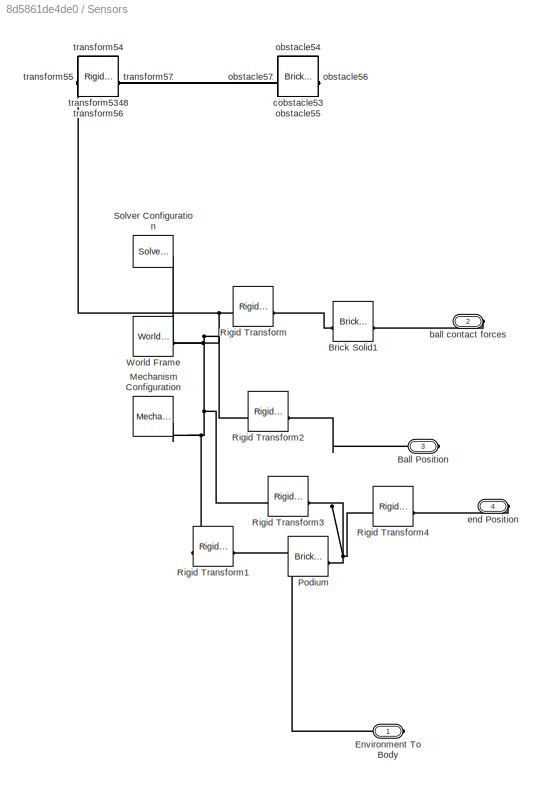
BLOCK [SubSystem] Sensors
BLOCK [PMIOPort] Sensors/Ball Position
  Port = 3
  Side = Right
BLOCK [Reference] Sensors/Brick Solid1  REF=sm_lib/Body Elements/Brick Solid
  SourceBlock = sm_lib/Body Elements/Brick Solid
  SourceType = Brick Solid
BLOCK [PMIOPort] Sensors/Environment To Body
  Side = Right
BLOCK [Reference] Sensors/Mechanism Configuration  REF=sm_lib/Utilities/Mechanism
Configuration
  SourceBlock = sm_lib/Utilities/Mechanism\nConfiguration
  SourceType = Mechanism\nConfiguration
BLOCK [Reference] Sensors/Podium  REF=sm_lib/Body Elements/Brick Solid
  SourceBlock = sm_lib/Body Elements/Brick Solid
  SourceType = Brick Solid
BLOCK [Reference] Sensors/Rigid Transform  REF=sm_lib/Frames and
Transforms/Rigid
Transform
  SourceBlock = sm_lib/Frames and\nTransforms/Rigid\nTransform
  SourceType = Rigid\nTransform
BLOCK [Reference] Sensors/Rigid Transform1  REF=sm_lib/Frames and
Transforms/Rigid
Transform
  SourceBlock = sm_lib/Frames and\nTransforms/Rigid\nTransform
  SourceType = Rigid\nTransform
BLOCK [Reference] Sensors/Rigid Transform2  REF=sm_lib/Frames and
Transforms/Rigid
Transform
  SourceBlock = sm_lib/Frames and\nTransforms/Rigid\nTransform
  SourceType = Rigid\nTransform
BLOCK [Reference] Sensors/Rigid Transform3  REF=sm_lib/Frames and
Transforms/Rigid
Transform
  SourceBlock = sm_lib/Frames and\nTransforms/Rigid\nTransform
  SourceType = Rigid\nTransform
BLOCK [Reference] Sensors/Rigid Transform4  REF=sm_lib/Frames and
Transforms/Rigid
Transform
  SourceBlock = sm_lib/Frames and\nTransforms/Rigid\nTransform
  SourceType = Rigid\nTransform
BLOCK [Reference] Sensors/Solver Configuration  REF=nesl_utility/Solver
Configuration
  SourceBlock = nesl_utility/Solver\nConfiguration
  SourceType = Solver\nConfiguration
BLOCK [Reference] Sensors/World Frame  REF=sm_lib/Frames and
Transforms/World Frame
  SourceBlock = sm_lib/Frames and\nTransforms/World Frame
  SourceType = World Frame
BLOCK [PMIOPort] Sensors/ball contact forces
  Port = 2
  Side = Right
BLOCK [PMIOPort] Sensors/end Position
  Port = 4
  Side = Right
BLOCK [Reference] Sensors/obstacle18  REF=sm_lib/Body Elements/Brick Solid
  SourceBlock = sm_lib/Body Elements/Brick Solid
  SourceType = Brick Solid
BLOCK [Reference] Sensors/obstacle19  REF=sm_lib/Body Elements/Brick Solid
  SourceBlock = sm_lib/Body Elements/Brick Solid
  SourceType = Brick Solid
BLOCK [Reference] Sensors/obstacle20  REF=sm_lib/Body Elements/Brick Solid
  SourceBlock = sm_lib/Body Elements/Brick Solid
  SourceType = Brick Solid
BLOCK [Reference] Sensors/obstacle21  REF=sm_lib/Body Elements/Brick Solid
  SourceBlock = sm_lib/Body Elements/Brick Solid
  SourceType = Brick Solid
BLOCK [Reference] Sensors/obstacle22  REF=sm_lib/Body Elements/Brick Solid
  SourceBlock = sm_lib/Body Elements/Brick Solid
  SourceType = Brick Solid
BLOCK [Reference] Sensors/obstacle23  REF=sm_lib/Body Elements/Brick Solid
  SourceBlock = sm_lib/Body Elements/Brick Solid
  SourceType = Brick Solid
BLOCK [Reference] Sensors/obstacle24  REF=sm_lib/Body Elements/Brick Solid
  SourceBlock = sm_lib/Body Elements/Brick Solid
  SourceType = Brick Solid
BLOCK [Reference] Sensors/obstacle25  REF=sm_lib/Body Elements/Brick Solid
  SourceBlock = sm_lib/Body Elements/Brick Solid
  SourceType = Brick Solid
BLOCK [Reference] Sensors/obstacle26  REF=sm_lib/Body Elements/Brick Solid
  SourceBlock = sm_lib/Body Elements/Brick Solid
  SourceType = Brick Solid
BLOCK [Reference] Sensors/obstacle27  REF=sm_lib/Body Elements/Brick Solid
  SourceBlock = sm_lib/Body Elements/Brick Solid
  SourceType = Brick Solid
BLOCK [Reference] Sensors/obstacle28  REF=sm_lib/Body Elements/Brick Solid
  SourceBlock = sm_lib/Body Elements/Brick Solid
  SourceType = Brick Solid
BLOCK [Reference] Sensors/obstacle29  REF=sm_lib/Body Elements/Brick Solid
  SourceBlock = sm_lib/Body Elements/Brick Solid
  SourceType = Brick Solid
BLOCK [Reference] Sensors/obstacle30  REF=sm_lib/Body Elements/Brick Solid
  SourceBlock = sm_lib/Body Elements/Brick Solid
  SourceType = Brick Solid
BLOCK [Reference] Sensors/obstacle31  REF=sm_lib/Body Elements/Brick Solid
  SourceBlock = sm_lib/Body Elements/Brick Solid
  SourceType = Brick Solid
BLOCK [Reference] Sensors/obstacle32  REF=sm_lib/Body Elements/Brick Solid
  SourceBlock = sm_lib/Body Elements/Brick Solid
  SourceType = Brick Solid
BLOCK [Reference] Sensors/obstacle33  REF=sm_lib/Body Elements/Brick Solid
  SourceBlock = sm_lib/Body Elements/Brick Solid
  SourceType = Brick Solid
BLOCK [Reference] Sensors/obstacle34  REF=sm_lib/Body Elements/Brick Solid
  SourceBlock = sm_lib/Body Elements/Brick Solid
  SourceType = Brick Solid
BLOCK [Reference] Sensors/obstacle35  REF=sm_lib/Body Elements/Brick Solid
  SourceBlock = sm_lib/Body Elements/Brick Solid
  SourceType = Brick Solid
BLOCK [Reference] Sensors/obstacle36  REF=sm_lib/Body Elements/Brick Solid
  SourceBlock = sm_lib/Body Elements/Brick Solid
  SourceType = Brick Solid
BLOCK [Reference] Sensors/obstacle37  REF=sm_lib/Body Elements/Brick Solid
  SourceBlock = sm_lib/Body Elements/Brick Solid
  SourceType = Brick Solid
BLOCK [Reference] Sensors/obstacle38  REF=sm_lib/Body Elements/Brick Solid
  SourceBlock = sm_lib/Body Elements/Brick Solid
  SourceType = Brick Solid
BLOCK [Reference] Sensors/obstacle39  REF=sm_lib/Body Elements/Brick Solid
  SourceBlock = sm_lib/Body Elements/Brick Solid
  SourceType = Brick Solid
BLOCK [Reference] Sensors/obstacle40  REF=sm_lib/Body Elements/Brick Solid
  SourceBlock = sm_lib/Body Elements/Brick Solid
  SourceType = Brick Solid
BLOCK [Reference] Sensors/obstacle41  REF=sm_lib/Body Elements/Brick Solid
  SourceBlock = sm_lib/Body Elements/Brick Solid
  SourceType = Brick Solid
BLOCK [Reference] Sensors/obstacle42  REF=sm_lib/Body Elements/Brick Solid
  SourceBlock = sm_lib/Body Elements/Brick Solid
  SourceType = Brick Solid
BLOCK [Reference] Sensors/obstacle43  REF=sm_lib/Body Elements/Brick Solid
  SourceBlock = sm_lib/Body Elements/Brick Solid
  SourceType = Brick Solid
BLOCK [Reference] Sensors/obstacle44  REF=sm_lib/Body Elements/Brick Solid
  SourceBlock = sm_lib/Body Elements/Brick Solid
  SourceType = Brick Solid
BLOCK [Reference] Sensors/obstacle45  REF=sm_lib/Body Elements/Brick Solid
  SourceBlock = sm_lib/Body Elements/Brick Solid
  SourceType = Brick Solid
BLOCK [Reference] Sensors/obstacle46  REF=sm_lib/Body Elements/Brick Solid
  SourceBlock = sm_lib/Body Elements/Brick Solid
  SourceType = Brick Solid
BLOCK [Reference] Sensors/obstacle47  REF=sm_lib/Body Elements/Brick Solid
  SourceBlock = sm_lib/Body Elements/Brick Solid
  SourceType = Brick Solid
BLOCK [Reference] Sensors/obstacle48  REF=sm_lib/Body Elements/Brick Solid
  SourceBlock = sm_lib/Body Elements/Brick Solid
  SourceType = Brick Solid
BLOCK [Reference] Sensors/obstacle49  REF=sm_lib/Body Elements/Brick Solid
  SourceBlock = sm_lib/Body Elements/Brick Solid
  SourceType = Brick Solid
BLOCK [Reference] Sensors/obstacle50  REF=sm_lib/Body Elements/Brick Solid
  SourceBlock = sm_lib/Body Elements/Brick Solid
  SourceType = Brick Solid
BLOCK [Reference] Sensors/obstacle51  REF=sm_lib/Body Elements/Brick Solid
  SourceBlock = sm_lib/Body Elements/Brick Solid
  SourceType = Brick Solid
BLOCK [Reference] Sensors/obstacle52  REF=sm_lib/Body Elements/Brick Solid
  SourceBlock = sm_lib/Body Elements/Brick Solid
  SourceType = Brick Solid
BLOCK [Reference] Sensors/obstacle53  REF=sm_lib/Body Elements/Brick Solid
  SourceBlock = sm_lib/Body Elements/Brick Solid
  SourceType = Brick Solid
BLOCK [Reference] Sensors/obstacle54  REF=sm_lib/Body Elements/Brick Solid
  SourceBlock = sm_lib/Body Elements/Brick Solid
  SourceType = Brick Solid
BLOCK [Reference] Sensors/obstacle55  REF=sm_lib/Body Elements/Brick Solid
  SourceBlock = sm_lib/Body Elements/Brick Solid
  SourceType = Brick Solid
BLOCK [Reference] Sensors/obstacle56  REF=sm_lib/Body Elements/Brick Solid
  SourceBlock = sm_lib/Body Elements/Brick Solid
  SourceType = Brick Solid
BLOCK [Reference] Sensors/obstacle57  REF=sm_lib/Body Elements/Brick Solid
  SourceBlock = sm_lib/Body Elements/Brick Solid
  SourceType = Brick Solid
BLOCK [Reference] Sensors/transform18  REF=sm_lib/Frames and
Transforms/Rigid
Transform
  SourceBlock = sm_lib/Frames and\nTransforms/Rigid\nTransform
  SourceType = Rigid\nTransform
BLOCK [Reference] Sensors/transform19  REF=sm_lib/Frames and
Transforms/Rigid
Transform
  SourceBlock = sm_lib/Frames and\nTransforms/Rigid\nTransform
  SourceType = Rigid\nTransform
BLOCK [Reference] Sensors/transform20  REF=sm_lib/Frames and
Transforms/Rigid
Transform
  SourceBlock = sm_lib/Frames and\nTransforms/Rigid\nTransform
  SourceType = Rigid\nTransform
BLOCK [Reference] Sensors/transform21  REF=sm_lib/Frames and
Transforms/Rigid
Transform
  SourceBlock = sm_lib/Frames and\nTransforms/Rigid\nTransform
  SourceType = Rigid\nTransform
BLOCK [Reference] Sensors/transform22  REF=sm_lib/Frames and
Transforms/Rigid
Transform
  SourceBlock = sm_lib/Frames and\nTransforms/Rigid\nTransform
  SourceType = Rigid\nTransform
BLOCK [Reference] Sensors/transform23  REF=sm_lib/Frames and
Transforms/Rigid
Transform
  SourceBlock = sm_lib/Frames and\nTransforms/Rigid\nTransform
  SourceType = Rigid\nTransform
BLOCK [Reference] Sensors/transform24  REF=sm_lib/Frames and
Transforms/Rigid
Transform
  SourceBlock = sm_lib/Frames and\nTransforms/Rigid\nTransform
  SourceType = Rigid\nTransform
BLOCK [Reference] Sensors/transform25  REF=sm_lib/Frames and
Transforms/Rigid
Transform
  SourceBlock = sm_lib/Frames and\nTransforms/Rigid\nTransform
  SourceType = Rigid\nTransform
BLOCK [Reference] Sensors/transform26  REF=sm_lib/Frames and
Transforms/Rigid
Transform
  SourceBlock = sm_lib/Frames and\nTransforms/Rigid\nTransform
  SourceType = Rigid\nTransform
BLOCK [Reference] Sensors/transform27  REF=sm_lib/Frames and
Transforms/Rigid
Transform
  SourceBlock = sm_lib/Frames and\nTransforms/Rigid\nTransform
  SourceType = Rigid\nTransform
BLOCK [Reference] Sensors/transform28  REF=sm_lib/Frames and
Transforms/Rigid
Transform
  SourceBlock = sm_lib/Frames and\nTransforms/Rigid\nTransform
  SourceType = Rigid\nTransform
BLOCK [Reference] Sensors/transform29  REF=sm_lib/Frames and
Transforms/Rigid
Transform
  SourceBlock = sm_lib/Frames and\nTransforms/Rigid\nTransform
  SourceType = Rigid\nTransform
BLOCK [Reference] Sensors/transform30  REF=sm_lib/Frames and
Transforms/Rigid
Transform
  SourceBlock = sm_lib/Frames and\nTransforms/Rigid\nTransform
  SourceType = Rigid\nTransform
BLOCK [Reference] Sensors/transform31  REF=sm_lib/Frames and
Transforms/Rigid
Transform
  SourceBlock = sm_lib/Frames and\nTransforms/Rigid\nTransform
  SourceType = Rigid\nTransform
BLOCK [Reference] Sensors/transform32  REF=sm_lib/Frames and
Transforms/Rigid
Transform
  SourceBlock = sm_lib/Frames and\nTransforms/Rigid\nTransform
  SourceType = Rigid\nTransform
BLOCK [Reference] Sensors/transform33  REF=sm_lib/Frames and
Transforms/Rigid
Transform
  SourceBlock = sm_lib/Frames and\nTransforms/Rigid\nTransform
  SourceType = Rigid\nTransform
BLOCK [Reference] Sensors/transform34  REF=sm_lib/Frames and
Transforms/Rigid
Transform
  SourceBlock = sm_lib/Frames and\nTransforms/Rigid\nTransform
  SourceType = Rigid\nTransform
BLOCK [Reference] Sensors/transform35  REF=sm_lib/Frames and
Transforms/Rigid
Transform
  SourceBlock = sm_lib/Frames and\nTransforms/Rigid\nTransform
  SourceType = Rigid\nTransform
BLOCK [Reference] Sensors/transform36  REF=sm_lib/Frames and
Transforms/Rigid
Transform
  SourceBlock = sm_lib/Frames and\nTransforms/Rigid\nTransform
  SourceType = Rigid\nTransform
BLOCK [Reference] Sensors/transform37  REF=sm_lib/Frames and
Transforms/Rigid
Transform
  SourceBlock = sm_lib/Frames and\nTransforms/Rigid\nTransform
  SourceType = Rigid\nTransform
BLOCK [Reference] Sensors/transform38  REF=sm_lib/Frames and
Transforms/Rigid
Transform
  SourceBlock = sm_lib/Frames and\nTransforms/Rigid\nTransform
  SourceType = Rigid\nTransform
BLOCK [Reference] Sensors/transform39  REF=sm_lib/Frames and
Transforms/Rigid
Transform
  SourceBlock = sm_lib/Frames and\nTransforms/Rigid\nTransform
  SourceType = Rigid\nTransform
BLOCK [Reference] Sensors/transform40  REF=sm_lib/Frames and
Transforms/Rigid
Transform
  SourceBlock = sm_lib/Frames and\nTransforms/Rigid\nTransform
  SourceType = Rigid\nTransform
BLOCK [Reference] Sensors/transform41  REF=sm_lib/Frames and
Transforms/Rigid
Transform
  SourceBlock = sm_lib/Frames and\nTransforms/Rigid\nTransform
  SourceType = Rigid\nTransform
BLOCK [Reference] Sensors/transform42  REF=sm_lib/Frames and
Transforms/Rigid
Transform
  SourceBlock = sm_lib/Frames and\nTransforms/Rigid\nTransform
  SourceType = Rigid\nTransform
BLOCK [Reference] Sensors/transform43  REF=sm_lib/Frames and
Transforms/Rigid
Transform
  SourceBlock = sm_lib/Frames and\nTransforms/Rigid\nTransform
  SourceType = Rigid\nTransform
BLOCK [Reference] Sensors/transform44  REF=sm_lib/Frames and
Transforms/Rigid
Transform
  SourceBlock = sm_lib/Frames and\nTransforms/Rigid\nTransform
  SourceType = Rigid\nTransform
BLOCK [Reference] Sensors/transform45  REF=sm_lib/Frames and
Transforms/Rigid
Transform
  SourceBlock = sm_lib/Frames and\nTransforms/Rigid\nTransform
  SourceType = Rigid\nTransform
BLOCK [Reference] Sensors/transform46  REF=sm_lib/Frames and
Transforms/Rigid
Transform
  SourceBlock = sm_lib/Frames and\nTransforms/Rigid\nTransform
  SourceType = Rigid\nTransform
BLOCK [Reference] Sensors/transform47  REF=sm_lib/Frames and
Transforms/Rigid
Transform
  SourceBlock = sm_lib/Frames and\nTransforms/Rigid\nTransform
  SourceType = Rigid\nTransform
BLOCK [Reference] Sensors/transform48  REF=sm_lib/Frames and
Transforms/Rigid
Transform
  SourceBlock = sm_lib/Frames and\nTransforms/Rigid\nTransform
  SourceType = Rigid\nTransform
BLOCK [Reference] Sensors/transform49  REF=sm_lib/Frames and
Transforms/Rigid
Transform
  SourceBlock = sm_lib/Frames and\nTransforms/Rigid\nTransform
  SourceType = Rigid\nTransform
BLOCK [Reference] Sensors/transform50  REF=sm_lib/Frames and
Transforms/Rigid
Transform
  SourceBlock = sm_lib/Frames and\nTransforms/Rigid\nTransform
  SourceType = Rigid\nTransform
BLOCK [Reference] Sensors/transform51  REF=sm_lib/Frames and
Transforms/Rigid
Transform
  SourceBlock = sm_lib/Frames and\nTransforms/Rigid\nTransform
  SourceType = Rigid\nTransform
BLOCK [Reference] Sensors/transform52  REF=sm_lib/Frames and
Transforms/Rigid
Transform
  SourceBlock = sm_lib/Frames and\nTransforms/Rigid\nTransform
  SourceType = Rigid\nTransform
BLOCK [Reference] Sensors/transform53  REF=sm_lib/Frames and
Transforms/Rigid
Transform
  SourceBlock = sm_lib/Frames and\nTransforms/Rigid\nTransform
  SourceType = Rigid\nTransform
BLOCK [Reference] Sensors/transform54  REF=sm_lib/Frames and
Transforms/Rigid
Transform
  SourceBlock = sm_lib/Frames and\nTransforms/Rigid\nTransform
  SourceType = Rigid\nTransform
BLOCK [Reference] Sensors/transform55  REF=sm_lib/Frames and
Transforms/Rigid
Transform
  SourceBlock = sm_lib/Frames and\nTransforms/Rigid\nTransform
  SourceType = Rigid\nTransform
BLOCK [Reference] Sensors/transform56  REF=sm_lib/Frames and
Transforms/Rigid
Transform
  SourceBlock = sm_lib/Frames and\nTransforms/Rigid\nTransform
  SourceType = Rigid\nTransform
BLOCK [Reference] Sensors/transform57  REF=sm_lib/Frames and
Transforms/Rigid
Transform
  SourceBlock = sm_lib/Frames and\nTransforms/Rigid\nTransform
  SourceType = Rigid\nTransform
BLOCK [SubSystem] Subsystem
BLOCK [Reference] Subsystem/Brick Solid  REF=sm_lib/Body Elements/Brick Solid
  SourceBlock = sm_lib/Body Elements/Brick Solid
  SourceType = Brick Solid
BLOCK [Reference] Subsystem/Brick Solid1  REF=sm_lib/Body Elements/Brick Solid
  SourceBlock = sm_lib/Body Elements/Brick Solid
  SourceType = Brick Solid
BLOCK [Constant] Subsystem/Constant
BLOCK [Constant] Subsystem/Constant1
  Value = startx
BLOCK [Constant] Subsystem/Constant2
  Value = starty
BLOCK [Trigonometry] Subsystem/Cos
  Operator = cos
BLOCK [Trigonometry] Subsystem/Cos1
BLOCK [Inport] Subsystem/ForwardVelocity
  Port = 2
BLOCK [PMIOPort] Subsystem/ManipConnect
  Port = 2
  Side = Left
BLOCK [Mux] Subsystem/Mux
  DisplayOption = bar
  Inputs = 2
BLOCK [Reference] Subsystem/PID Controller r1  REF=slpidlib/PID Controller
  LibrarySourceBlock = simulink/Continuous/PID Controller
  SourceBlock = slpidlib/PID Controller
  SourceType = PID 1dof
BLOCK [Reference] Subsystem/PID Controller x1  REF=slpidlib/PID Controller
  LibrarySourceBlock = simulink/Continuous/PID Controller
  SourceBlock = slpidlib/PID Controller
  SourceType = PID 1dof
BLOCK [Reference] Subsystem/PID Controller y1  REF=slpidlib/PID Controller
  LibrarySourceBlock = simulink/Continuous/PID Controller
  SourceBlock = slpidlib/PID Controller
  SourceType = PID 1dof
BLOCK [Reference] Subsystem/PS Add  REF=fl_lib/Physical Signals/Functions/PS Add
  SourceBlock = fl_lib/Physical Signals/Functions/PS Add
  SourceType = PS Add
BLOCK [Reference] Subsystem/PS Add1  REF=fl_lib/Physical Signals/Functions/PS Add
  SourceBlock = fl_lib/Physical Signals/Functions/PS Add
  SourceType = PS Add
BLOCK [Reference] Subsystem/PS Add2  REF=fl_lib/Physical Signals/Functions/PS Add
  SourceBlock = fl_lib/Physical Signals/Functions/PS Add
  SourceType = PS Add
BLOCK [Reference] Subsystem/PS Gain  REF=fl_lib/Physical Signals/Functions/PS Gain
  SourceBlock = fl_lib/Physical Signals/Functions/PS Gain
  SourceType = PS Gain
BLOCK [Reference] Subsystem/PS Gain1  REF=fl_lib/Physical Signals/Functions/PS Gain
  SourceBlock = fl_lib/Physical Signals/Functions/PS Gain
  SourceType = PS Gain
BLOCK [Reference] Subsystem/PS Gain2  REF=fl_lib/Physical Signals/Functions/PS Gain
  SourceBlock = fl_lib/Physical Signals/Functions/PS Gain
  SourceType = PS Gain
BLOCK [Reference] Subsystem/PS Product  REF=fl_ps_legacy_lib/Legacy Physical
Signals/Functions/PS Product
  NameLocation = top
  SourceBlock = fl_ps_legacy_lib/Legacy Physical\nSignals/Functions/PS Product
  SourceType = PS Product
BLOCK [Reference] Subsystem/PS Product1  REF=fl_ps_legacy_lib/Legacy Physical
Signals/Functions/PS Product
  NameLocation = top
  SourceBlock = fl_ps_legacy_lib/Legacy Physical\nSignals/Functions/PS Product
  SourceType = PS Product
BLOCK [Reference] Subsystem/PS Product2  REF=fl_ps_legacy_lib/Legacy Physical
Signals/Functions/PS Product
  NameLocation = top
  SourceBlock = fl_ps_legacy_lib/Legacy Physical\nSignals/Functions/PS Product
  SourceType = PS Product
BLOCK [Reference] Subsystem/PS-Simulink Converter  REF=nesl_utility/PS-Simulink
Converter
  SourceBlock = nesl_utility/PS-Simulink\nConverter
  SourceType = PS-Simulink\nConverter
BLOCK [Reference] Subsystem/PS-Simulink Converter1  REF=nesl_utility/PS-Simulink
Converter
  SourceBlock = nesl_utility/PS-Simulink\nConverter
  SourceType = PS-Simulink\nConverter
BLOCK [Reference] Subsystem/PS-Simulink Converter10  REF=nesl_utility/PS-Simulink
Converter
  SourceBlock = nesl_utility/PS-Simulink\nConverter
  SourceType = PS-Simulink\nConverter
BLOCK [Reference] Subsystem/PS-Simulink Converter11  REF=nesl_utility/PS-Simulink
Converter
  SourceBlock = nesl_utility/PS-Simulink\nConverter
  SourceType = PS-Simulink\nConverter
BLOCK [Reference] Subsystem/PS-Simulink Converter2  REF=nesl_utility/PS-Simulink
Converter
  SourceBlock = nesl_utility/PS-Simulink\nConverter
  SourceType = PS-Simulink\nConverter
BLOCK [Reference] Subsystem/PS-Simulink Converter3  REF=nesl_utility/PS-Simulink
Converter
  SourceBlock = nesl_utility/PS-Simulink\nConverter
  SourceType = PS-Simulink\nConverter
BLOCK [Reference] Subsystem/PS-Simulink Converter4  REF=nesl_utility/PS-Simulink
Converter
  SourceBlock = nesl_utility/PS-Simulink\nConverter
  SourceType = PS-Simulink\nConverter
BLOCK [Reference] Subsystem/PS-Simulink Converter5  REF=nesl_utility/PS-Simulink
Converter
  SourceBlock = nesl_utility/PS-Simulink\nConverter
  SourceType = PS-Simulink\nConverter
BLOCK [Reference] Subsystem/PS-Simulink Converter6  REF=nesl_utility/PS-Simulink
Converter
  SourceBlock = nesl_utility/PS-Simulink\nConverter
  SourceType = PS-Simulink\nConverter
BLOCK [Reference] Subsystem/PS-Simulink Converter7  REF=nesl_utility/PS-Simulink
Converter
  SourceBlock = nesl_utility/PS-Simulink\nConverter
  SourceType = PS-Simulink\nConverter
BLOCK [Reference] Subsystem/PS-Simulink Converter8  REF=nesl_utility/PS-Simulink
Converter
  SourceBlock = nesl_utility/PS-Simulink\nConverter
  SourceType = PS-Simulink\nConverter
BLOCK [Reference] Subsystem/PS-Simulink Converter9  REF=nesl_utility/PS-Simulink
Converter
  SourceBlock = nesl_utility/PS-Simulink\nConverter
  SourceType = PS-Simulink\nConverter
BLOCK [Reference] Subsystem/Planar Joint  REF=sm_lib/Joints/Planar Joint
  SourceBlock = sm_lib/Joints/Planar Joint
  SourceType = Planar Joint
BLOCK [Product] Subsystem/Product
BLOCK [Product] Subsystem/Product1
BLOCK [Product] Subsystem/Product2
BLOCK [Product] Subsystem/Product3
BLOCK [Product] Subsystem/Product4
BLOCK [Reference] Subsystem/Rigid Transform  REF=sm_lib/Frames and
Transforms/Rigid
Transform
  SourceBlock = sm_lib/Frames and\nTransforms/Rigid\nTransform
  SourceType = Rigid\nTransform
BLOCK [Reference] Subsystem/Rigid Transform1  REF=sm_lib/Frames and
Transforms/Rigid
Transform
  SourceBlock = sm_lib/Frames and\nTransforms/Rigid\nTransform
  SourceType = Rigid\nTransform
BLOCK [Scope] Subsystem/Scope
  Floating = off
  NumInputPorts = 3
  ScopeSpecificationString = Simulink.scopes.TimeScopeBlockCfg('CurrentConfiguration', extmgr.ConfigurationSet(extmgr.Configuration('Core','General UI',true),extmgr.Configuration('Core','Source UI',true),extmgr.Configuration('Sources','WiredSimulink',true,'DataLoggingVariableName','ScopeData3'),extmgr.Configuration('Visuals','Time Domain',true,'SerializedDisplays',{struct('MinYLimReal','-4136.8079','MaxYLimReal','6155.54409',...<+1432ch>
BLOCK [Scope] Subsystem/Scope1
  Floating = off
  NumInputPorts = 1
  ScopeSpecificationString = Simulink.scopes.TimeScopeBlockCfg('CurrentConfiguration', extmgr.ConfigurationSet(extmgr.Configuration('Core','General UI',true),extmgr.Configuration('Core','Source UI',true),extmgr.Configuration('Sources','WiredSimulink',true,'DataLoggingVariableName','ScopeData1'),extmgr.Configuration('Visuals','Time Domain',true,'SerializedDisplays',{struct('MinYLimReal','1.92918','MaxYLimReal','8.20981','YLabe...<+1729ch>
BLOCK [Scope] Subsystem/Scope2
  Floating = off
  NumInputPorts = 3
  ScopeSpecificationString = Simulink.scopes.TimeScopeBlockCfg('CurrentConfiguration', extmgr.ConfigurationSet(extmgr.Configuration('Core','General UI',true),extmgr.Configuration('Core','Source UI',true),extmgr.Configuration('Sources','WiredSimulink',true,'DataLoggingVariableName','ScopeData4'),extmgr.Configuration('Visuals','Time Domain',true,'SerializedDisplays',{struct('MinYLimReal','-0.69975','MaxYLimReal','0.67668','YLab...<+1413ch>
BLOCK [Scope] Subsystem/Scope3
  Floating = off
  NumInputPorts = 2
  ScopeSpecificationString = Simulink.scopes.TimeScopeBlockCfg('CurrentConfiguration', extmgr.ConfigurationSet(extmgr.Configuration('Core','General UI',true),extmgr.Configuration('Core','Source UI',true),extmgr.Configuration('Sources','WiredSimulink',true,'DataLoggingVariableName','ScopeData1'),extmgr.Configuration('Visuals','Time Domain',true,'SerializedDisplays',{struct('MinYLimReal','-49.55629','MaxYLimReal','125.7211','YL...<+1439ch>
BLOCK [Reference] Subsystem/Simulink-PS Converter1  REF=nesl_utility/Simulink-PS
Converter
  SourceBlock = nesl_utility/Simulink-PS\nConverter
  SourceType = Simulink-PS\nConverter
BLOCK [Reference] Subsystem/Simulink-PS Converter2  REF=nesl_utility/Simulink-PS
Converter
  SourceBlock = nesl_utility/Simulink-PS\nConverter
  SourceType = Simulink-PS\nConverter
BLOCK [Reference] Subsystem/Simulink-PS Converter3  REF=nesl_utility/Simulink-PS
Converter
  SourceBlock = nesl_utility/Simulink-PS\nConverter
  SourceType = Simulink-PS\nConverter
BLOCK [Reference] Subsystem/Simulink-PS Converter4  REF=nesl_utility/Simulink-PS
Converter
  SourceBlock = nesl_utility/Simulink-PS\nConverter
  SourceType = Simulink-PS\nConverter
BLOCK [Reference] Subsystem/Simulink-PS Converter5  REF=nesl_utility/Simulink-PS
Converter
  SourceBlock = nesl_utility/Simulink-PS\nConverter
  SourceType = Simulink-PS\nConverter
BLOCK [Sum] Subsystem/Sum
  Inputs = |+-
BLOCK [Sum] Subsystem/Sum1
  Inputs = |++
BLOCK [Sum] Subsystem/Sum2
  Inputs = |++
BLOCK [Sum] Subsystem/Sum3
  Inputs = |+-
BLOCK [Sum] Subsystem/Sum4
  Inputs = |+-
BLOCK [Sum] Subsystem/Sum5
  Inputs = |+-
BLOCK [PMIOPort] Subsystem/Transform
  Side = Left
BLOCK [Inport] Subsystem/angVelocity
BLOCK [Outport] Subsystem/anglePos
  Port = 3
BLOCK [Inport] Subsystem/mode
  Port = 3
BLOCK [Outport] Subsystem/rv
  Port = 6
BLOCK [Outport] Subsystem/xpos
  Port = 2
BLOCK [Outport] Subsystem/xv
  Port = 4
BLOCK [Outport] Subsystem/ypos1
BLOCK [Outport] Subsystem/yv
  Port = 5
ANNOTATION Controller: distance
ANNOTATION Controller/Subsystem/Path follower: Target Position
LINE Block controller subsystem/Constant1:1 -> Block controller subsystem/Sum1:1
LINE Block controller subsystem/Constant2:1 -> Block controller subsystem/Sum2:1
LINE Block controller subsystem/Constant3:1 -> Block controller subsystem/MATLAB Function:2
LINE Block controller subsystem/Constant:1 -> Block controller subsystem/MATLAB Function:1
LINE Block controller subsystem/Cos1:1 -> Block controller subsystem/Product1:2
LINE Block controller subsystem/Cos:1 -> Block controller subsystem/Product:2
NET Block controller subsystem/MATLAB Function:1 -> Block controller subsystem/Product1:1, Block controller subsystem/Product:1
LINE Block controller subsystem/MATLAB Function:2 -> Block controller subsystem/Sum3:1
LINE Block controller subsystem/MATLAB Function:3 -> Block controller subsystem/Stop Simulation:1
LINE Block controller subsystem/MATLAB Function:4 -> Block controller subsystem/Scope:1
LINE Block controller subsystem/Mux:1 -> Block controller subsystem/Scope1:1
LINE Block controller subsystem/PID Controller r:1 -> Block controller subsystem/Simulink-PS Converter5:1
LINE Block controller subsystem/PID Controller x:1 -> Block controller subsystem/Simulink-PS Converter2:1
LINE Block controller subsystem/PID Controller y:1 -> Block controller subsystem/Simulink-PS Converter1:1
LINE Block controller subsystem/PS-Simulink Converter1:1 -> Block controller subsystem/Sum:2
LINE Block controller subsystem/PS-Simulink Converter2:1 -> Block controller subsystem/Sum2:2
NET Block controller subsystem/PS-Simulink Converter3:1 -> Block controller subsystem/Cos1:1, Block controller subsystem/Cos:1, Block controller subsystem/MATLAB Function:5
LINE Block controller subsystem/PS-Simulink Converter4:1 -> Block controller subsystem/Sum3:2
LINE Block controller subsystem/PS-Simulink Converter5:1 -> Block controller subsystem/Sum4:2
LINE Block controller subsystem/PS-Simulink Converter:1 -> Block controller subsystem/Sum1:2
LINE Block controller subsystem/Product1:1 -> Block controller subsystem/Sum4:1
LINE Block controller subsystem/Product:1 -> Block controller subsystem/Sum:1
NET Block controller subsystem/Sum1:1 -> Block controller subsystem/MATLAB Function:3, Block controller subsystem/Mux:1
NET Block controller subsystem/Sum2:1 -> Block controller subsystem/MATLAB Function:4, Block controller subsystem/Mux:2
LINE Block controller subsystem/Sum3:1 -> Block controller subsystem/PID Controller r:1
LINE Block controller subsystem/Sum4:1 -> Block controller subsystem/PID Controller y:1
LINE Block controller subsystem/Sum:1 -> Block controller subsystem/PID Controller x:1
NET Controller/Atan2:1 -> Controller/Scope:2, Controller/Sum2:1
LINE Controller/Constant2:1 -> Controller/Less Than1:2
NET Controller/Constant3:1 -> Controller/High Level Mode Stateflow:5, Controller/MATLAB Function:4, Controller/Subsystem:4
LINE Controller/Constant:1 -> Controller/Less Than:2
NET Controller/Demux1:1 -> Controller/Atan2:2, Controller/Square1:1
NET Controller/Demux1:2 -> Controller/Atan2:1, Controller/Square:1
NET Controller/High Level Mode Stateflow:1 -> Controller/Scope2:1, Controller/Subsystem:3
LINE Controller/High Level Mode Stateflow:2 -> Controller/Scope2:2
LINE Controller/High Level Mode Stateflow:3 -> Controller/Memory3:1
NET Controller/High Level Mode Stateflow:4 -> Controller/Scope2:6, Controller/Switch1:3
NET Controller/High Level Mode Stateflow:5 -> Controller/Scope2:7, Controller/Switch2:3
LINE Controller/High Level Mode Stateflow:6 -> Controller/Switch:3
LINE Controller/High Level Mode Stateflow:7 -> Controller/Memory1:1
LINE Controller/Less Than1:1 -> Controller/High Level Mode Stateflow:4
NET Controller/Less Than:1 -> Controller/High Level Mode Stateflow:1, Controller/Subsystem:2
LINE Controller/MATLAB Function:1 -> Controller/Switch2:1
LINE Controller/MATLAB Function:2 -> Controller/Switch1:1
LINE Controller/MATLAB Function:3 -> Controller/Memory4:1
LINE Controller/MATLAB Function:4 -> Controller/Switch:1
LINE Controller/ManipState:1 -> Controller/Memory2:1
NET Controller/Memory1:1 -> Controller/MATLAB Function:1, Controller/Switch1:2, Controller/Switch2:2, Controller/Switch:2
LINE Controller/Memory2:1 -> Controller/Subsystem:1
LINE Controller/Memory3:1 -> Controller/Start Manip Task:1
LINE Controller/Memory4:1 -> Controller/High Level Mode Stateflow:6
LINE Controller/Memory5:1 -> Controller/MATLAB Function:3
LINE Controller/Memory:1 -> Controller/Mode:1
NET Controller/Mux:1 -> Controller/Scope3:2, Controller/Sum1:1
NET Controller/Sqrt:1 -> Controller/Less Than:1, Controller/Scope1:2, Controller/Scope2:3, Controller/Scope2:4
LINE Controller/Square1:1 -> Controller/Sum3:2
LINE Controller/Square:1 -> Controller/Sum3:1
LINE Controller/Subsystem/Chart:1 -> Controller/Subsystem/Memory1:1
LINE Controller/Subsystem/Chart:2 -> Controller/Subsystem/Stop Simulation:1
LINE Controller/Subsystem/Chart:3 -> Controller/Subsystem/Memory2:1
NET Controller/Subsystem/Constant1:1 -> Controller/Subsystem/Chart:6, Controller/Subsystem/Path follower:2, Controller/Subsystem/targets:1
NET Controller/Subsystem/Constant6:1 -> Controller/Subsystem/Chart:1, Controller/Subsystem/tar1Len:1
LINE Controller/Subsystem/Delay:1 -> Controller/Subsystem/Chart:5
LINE Controller/Subsystem/ManipState:1 -> Controller/Subsystem/Chart:2
LINE Controller/Subsystem/Memory1:1 -> Controller/Subsystem/resetPos:1
LINE Controller/Subsystem/Memory2:1 -> Controller/Subsystem/posToskip:1
LINE Controller/Subsystem/Path follower/Constant2:1 -> Controller/Subsystem/Path follower/Selector:3
LINE Controller/Subsystem/Path follower/Constant3:1 -> Controller/Subsystem/Path follower/Selector1:3
LINE Controller/Subsystem/Path follower/Constant4:1 -> Controller/Subsystem/Path follower/If Action Subsystem:1
LINE Controller/Subsystem/Path follower/If Action Subsystem/In1:1 -> Controller/Subsystem/Path follower/If Action Subsystem/Out1:1
LINE Controller/Subsystem/Path follower/If Action Subsystem1/In1:1 -> Controller/Subsystem/Path follower/If Action Subsystem1/Out1:1
LINE Controller/Subsystem/Path follower/If Action Subsystem1:1 -> Controller/Subsystem/Path follower/Merge:2
LINE Controller/Subsystem/Path follower/If Action Subsystem:1 -> Controller/Subsystem/Path follower/Merge:1
LINE Controller/Subsystem/Path follower/If:1 -> Controller/Subsystem/Path follower/If Action Subsystem:ifaction
LINE Controller/Subsystem/Path follower/If:2 -> Controller/Subsystem/Path follower/If Action Subsystem1:ifaction
NET Controller/Subsystem/Path follower/Memory1:1 -> Controller/Subsystem/Path follower/If Action Subsystem1:1, Controller/Subsystem/Path follower/If:1
NET Controller/Subsystem/Path follower/Merge:1 -> Controller/Subsystem/Path follower/Selector1:2, Controller/Subsystem/Path follower/Selector:2
LINE Controller/Subsystem/Path follower/Mux1:1 -> Controller/Subsystem/Path follower/Out1:1
NET Controller/Subsystem/Path follower/Selector1:1 -> Controller/Subsystem/Path follower/Display1:1, Controller/Subsystem/Path follower/Mux1:2
NET Controller/Subsystem/Path follower/Selector:1 -> Controller/Subsystem/Path follower/Display:1, Controller/Subsystem/Path follower/Mux1:1
LINE Controller/Subsystem/Path follower/pos_index:1 -> Controller/Subsystem/Path follower/Memory1:1
NET Controller/Subsystem/Path follower/targets:1 -> Controller/Subsystem/Path follower/Selector1:1, Controller/Subsystem/Path follower/Selector:1
LINE Controller/Subsystem/Path follower:1 -> Controller/Subsystem/TargetPos:1
NET Controller/Subsystem/pos_index:1 -> Controller/Subsystem/Chart:9, Controller/Subsystem/Path follower:1
LINE Controller/Subsystem/tarLen:1 -> Controller/Subsystem/Chart:3
NET Controller/Subsystem/targetReached:1 -> Controller/Subsystem/Chart:4, Controller/Subsystem/Delay:1
LINE Controller/Subsystem/x:1 -> Controller/Subsystem/Chart:8
LINE Controller/Subsystem/y:1 -> Controller/Subsystem/Chart:7
NET Controller/Subsystem:1 -> Controller/Scope3:1, Controller/Sum1:2
NET Controller/Subsystem:2 -> Controller/High Level Mode Stateflow:3, Controller/Scope4:2
LINE Controller/Subsystem:3 -> Controller/MATLAB Function:2
LINE Controller/Subsystem:4 -> Controller/High Level Mode Stateflow:7
LINE Controller/Subsystem:5 -> Controller/Memory5:1
LINE Controller/Sum1:1 -> Controller/Demux1:1
NET Controller/Sum2:1 -> Controller/High Level Mode Stateflow:2, Controller/Scope2:5, Controller/Scope:3
NET Controller/Sum3:1 -> Controller/Scope1:1, Controller/Sqrt:1
NET Controller/Sum6:1 -> Controller/MATLAB Function:7, Controller/Scope:1, Controller/Sum2:2
LINE Controller/Sum:1 -> Controller/Less Than1:1
LINE Controller/Switch1:1 -> Controller/Angular Velocity:1
LINE Controller/Switch2:1 -> Controller/ForwardVelocity:1
LINE Controller/Switch:1 -> Controller/Memory:1
LINE Controller/angpos:1 -> Controller/Sum6:1
LINE Controller/rv:1 -> Controller/Sum:3
NET Controller/xpos:1 -> Controller/MATLAB Function:5, Controller/Mux:1, Controller/Subsystem:5
LINE Controller/xv:1 -> Controller/Sum:1
NET Controller/ypos:1 -> Controller/MATLAB Function:6, Controller/Mux:2, Controller/Subsystem:6
LINE Controller/yv:1 -> Controller/Sum:2
LINE Controller:1 -> Subsystem:2
LINE Controller:2 -> Subsystem:1
LINE Controller:3 -> Manipulator1:1
LINE Controller:4 -> Subsystem:3
LINE Manipulator1/Ball Tracking and Handling/MATLAB Function1:1 -> Manipulator1/Ball Tracking and Handling/objectTransform:1
LINE Manipulator1/Ball Tracking and Handling/MATLAB Function1:2 -> Manipulator1/Ball Tracking and Handling/aboveObjectTransform:1
LINE Manipulator1/Ball Tracking and Handling/PS-Simulink Converter11:1 -> Manipulator1/Ball Tracking and Handling/MATLAB Function1:1
LINE Manipulator1/Ball Tracking and Handling/PS-Simulink Converter12:1 -> Manipulator1/Ball Tracking and Handling/MATLAB Function1:2
LINE Manipulator1/Ball Tracking and Handling/PS-Simulink Converter13:1 -> Manipulator1/Ball Tracking and Handling/MATLAB Function1:3
LINE Manipulator1/Ball Tracking and Handling/Subsystem/input0:1 -> Manipulator1/Ball Tracking and Handling/Subsystem/Simulink-PS Converter13:1
LINE Manipulator1/Ball Tracking and Handling/input0:1 -> Manipulator1/Ball Tracking and Handling/Subsystem:1
LINE Manipulator1/Ball Tracking and Handling:1 -> Manipulator1/inverseKinematics:1
LINE Manipulator1/Ball Tracking and Handling:2 -> Manipulator1/inverseKinematics:2
LINE Manipulator1/Clock:1 -> Manipulator1/MATLAB Function:11
LINE Manipulator1/Constant1:1 -> Manipulator1/MATLAB Function:5
LINE Manipulator1/Constant4:1 -> Manipulator1/MATLAB Function:6
LINE Manipulator1/Constant6:1 -> Manipulator1/Sum:1
LINE Manipulator1/Constant:1 -> Manipulator1/MATLAB Function:4
LINE Manipulator1/Delay8:1 -> Manipulator1/Demux:1
LINE Manipulator1/Delay9:1 -> Manipulator1/Sum:2
LINE Manipulator1/Demux1:1 -> Manipulator1/Simulink-PS Converter:1
LINE Manipulator1/Demux1:2 -> Manipulator1/Simulink-PS Converter1:1
LINE Manipulator1/Demux1:3 -> Manipulator1/Simulink-PS Converter2:1
LINE Manipulator1/Demux1:4 -> Manipulator1/Simulink-PS Converter3:1
LINE Manipulator1/Demux1:5 -> Manipulator1/Simulink-PS Converter4:1
LINE Manipulator1/Demux1:6 -> Manipulator1/Simulink-PS Converter5:1
LINE Manipulator1/Demux1:7 -> Manipulator1/Simulink-PS Converter6:1
NET Manipulator1/Demux:1 -> Manipulator1/Mux3:1, Manipulator1/Sum1:1
LINE Manipulator1/Demux:10 -> Manipulator1/Simulink-PS Converter9:1
LINE Manipulator1/Demux:11 -> Manipulator1/Simulink-PS Converter10:1
LINE Manipulator1/Demux:12 -> Manipulator1/Simulink-PS Converter11:1
LINE Manipulator1/Demux:13 -> Manipulator1/Simulink-PS Converter12:1
NET Manipulator1/Demux:2 -> Manipulator1/Mux3:2, Manipulator1/Sum2:1
NET Manipulator1/Demux:3 -> Manipulator1/Mux3:3, Manipulator1/Sum3:1
NET Manipulator1/Demux:4 -> Manipulator1/Mux3:4, Manipulator1/Sum4:1
NET Manipulator1/Demux:5 -> Manipulator1/Mux3:5, Manipulator1/Sum5:1
NET Manipulator1/Demux:6 -> Manipulator1/Mux3:6, Manipulator1/Sum6:1
NET Manipulator1/Demux:7 -> Manipulator1/Mux3:7, Manipulator1/Sum7:1
LINE Manipulator1/Demux:8 -> Manipulator1/Simulink-PS Converter7:1
LINE Manipulator1/Demux:9 -> Manipulator1/Simulink-PS Converter8:1
LINE Manipulator1/End Tracking and handling/MATLAB Function1:1 -> Manipulator1/End Tracking and handling/objectTransform:1
LINE Manipulator1/End Tracking and handling/MATLAB Function1:2 -> Manipulator1/End Tracking and handling/aboveObjectTransform:1
NET Manipulator1/End Tracking and handling/PS-Simulink Converter11:1 -> Manipulator1/End Tracking and handling/Display:1, Manipulator1/End Tracking and handling/MATLAB Function1:1
NET Manipulator1/End Tracking and handling/PS-Simulink Converter12:1 -> Manipulator1/End Tracking and handling/Display1:1, Manipulator1/End Tracking and handling/MATLAB Function1:2
NET Manipulator1/End Tracking and handling/PS-Simulink Converter13:1 -> Manipulator1/End Tracking and handling/Display2:1, Manipulator1/End Tracking and handling/MATLAB Function1:3
LINE Manipulator1/End Tracking and handling:1 -> Manipulator1/inverseKinematics1:1
LINE Manipulator1/End Tracking and handling:2 -> Manipulator1/inverseKinematics1:2
NET Manipulator1/MATLAB Function:1 -> Manipulator1/Delay8:1, Manipulator1/Scope3:1
NET Manipulator1/MATLAB Function:2 -> Manipulator1/Delay9:1, Manipulator1/Scope1:2, Manipulator1/State:1
LINE Manipulator1/MATLAB Function:3 -> Manipulator1/inverseKinematics:3
LINE Manipulator1/MATLAB Function:4 -> Manipulator1/inverseKinematics1:3
LINE Manipulator1/MATLAB Function:5 -> Manipulator1/Memory3:1
LINE Manipulator1/Memory3:1 -> Manipulator1/Ball Tracking and Handling:1
LINE Manipulator1/Memory:1 -> Manipulator1/Subsystem1:2
NET Manipulator1/Mux1:1 -> Manipulator1/MATLAB Function:2, Manipulator1/Scope2:1
LINE Manipulator1/Mux2:1 -> Manipulator1/Scope:1
LINE Manipulator1/Mux3:1 -> Manipulator1/Subsystem1:1
LINE Manipulator1/Mux:1 -> Manipulator1/Memory:1
NET Manipulator1/PS-Simulink Converter1:1 -> Manipulator1/Mux:2, Manipulator1/Sum2:2
NET Manipulator1/PS-Simulink Converter2:1 -> Manipulator1/Mux:3, Manipulator1/Sum3:2
NET Manipulator1/PS-Simulink Converter3:1 -> Manipulator1/Mux:4, Manipulator1/Sum4:2
NET Manipulator1/PS-Simulink Converter4:1 -> Manipulator1/Mux:5, Manipulator1/Sum5:2
NET Manipulator1/PS-Simulink Converter5:1 -> Manipulator1/Mux:6, Manipulator1/Sum6:2
NET Manipulator1/PS-Simulink Converter6:1 -> Manipulator1/Mux:7, Manipulator1/Sum7:2
LINE Manipulator1/PS-Simulink Converter7:1 -> Manipulator1/Mux2:1
LINE Manipulator1/PS-Simulink Converter8:1 -> Manipulator1/Mux2:2
LINE Manipulator1/PS-Simulink Converter9:1 -> Manipulator1/Mux2:3
NET Manipulator1/PS-Simulink Converter:1 -> Manipulator1/Mux:1, Manipulator1/Sum1:2
NET Manipulator1/QuadrupedInPosition:1 -> Manipulator1/MATLAB Function:1, Manipulator1/Scope1:1
NET Manipulator1/Subsystem1/Clock:1 -> Manipulator1/Subsystem1/Display4:1, Manipulator1/Subsystem1/Manipulator interpolator:3, Manipulator1/Subsystem1/Subsystem7:2
NET Manipulator1/Subsystem1/Manipulator interpolator:1 -> Manipulator1/Subsystem1/Display:1, Manipulator1/Subsystem1/Subsystem7:3
NET Manipulator1/Subsystem1/Manipulator interpolator:2 -> Manipulator1/Subsystem1/Display3:1, Manipulator1/Subsystem1/Subsystem7:1
LINE Manipulator1/Subsystem1/Manipulator interpolator:3 -> Manipulator1/Subsystem1/Display5:1
LINE Manipulator1/Subsystem1/Subsystem7/Demux1:1 -> Manipulator1/Subsystem1/Subsystem7/Mux8:1
LINE Manipulator1/Subsystem1/Subsystem7/Demux1:10 -> Manipulator1/Subsystem1/Subsystem7/Mux10:2
LINE Manipulator1/Subsystem1/Subsystem7/Demux1:11 -> Manipulator1/Subsystem1/Subsystem7/Mux11:2
LINE Manipulator1/Subsystem1/Subsystem7/Demux1:12 -> Manipulator1/Subsystem1/Subsystem7/Mux12:2
LINE Manipulator1/Subsystem1/Subsystem7/Demux1:13 -> Manipulator1/Subsystem1/Subsystem7/Mux13:2
LINE Manipulator1/Subsystem1/Subsystem7/Demux1:14 -> Manipulator1/Subsystem1/Subsystem7/Mux14:2
LINE Manipulator1/Subsystem1/Subsystem7/Demux1:2 -> Manipulator1/Subsystem1/Subsystem7/Mux9:1
LINE Manipulator1/Subsystem1/Subsystem7/Demux1:3 -> Manipulator1/Subsystem1/Subsystem7/Mux10:1
LINE Manipulator1/Subsystem1/Subsystem7/Demux1:4 -> Manipulator1/Subsystem1/Subsystem7/Mux11:1
LINE Manipulator1/Subsystem1/Subsystem7/Demux1:5 -> Manipulator1/Subsystem1/Subsystem7/Mux12:1
LINE Manipulator1/Subsystem1/Subsystem7/Demux1:6 -> Manipulator1/Subsystem1/Subsystem7/Mux13:1
LINE Manipulator1/Subsystem1/Subsystem7/Demux1:7 -> Manipulator1/Subsystem1/Subsystem7/Mux14:1
LINE Manipulator1/Subsystem1/Subsystem7/Demux1:8 -> Manipulator1/Subsystem1/Subsystem7/Mux8:2
LINE Manipulator1/Subsystem1/Subsystem7/Demux1:9 -> Manipulator1/Subsystem1/Subsystem7/Mux9:2
LINE Manipulator1/Subsystem1/Subsystem7/Demux:1 -> Manipulator1/Subsystem1/Subsystem7/Mux1:1
LINE Manipulator1/Subsystem1/Subsystem7/Demux:10 -> Manipulator1/Subsystem1/Subsystem7/Mux3:2
LINE Manipulator1/Subsystem1/Subsystem7/Demux:11 -> Manipulator1/Subsystem1/Subsystem7/Mux4:2
LINE Manipulator1/Subsystem1/Subsystem7/Demux:12 -> Manipulator1/Subsystem1/Subsystem7/Mux5:2
LINE Manipulator1/Subsystem1/Subsystem7/Demux:13 -> Manipulator1/Subsystem1/Subsystem7/Mux6:2
LINE Manipulator1/Subsystem1/Subsystem7/Demux:14 -> Manipulator1/Subsystem1/Subsystem7/Mux7:2
LINE Manipulator1/Subsystem1/Subsystem7/Demux:2 -> Manipulator1/Subsystem1/Subsystem7/Mux2:1
LINE Manipulator1/Subsystem1/Subsystem7/Demux:3 -> Manipulator1/Subsystem1/Subsystem7/Mux3:1
LINE Manipulator1/Subsystem1/Subsystem7/Demux:4 -> Manipulator1/Subsystem1/Subsystem7/Mux4:1
LINE Manipulator1/Subsystem1/Subsystem7/Demux:5 -> Manipulator1/Subsystem1/Subsystem7/Mux5:1
LINE Manipulator1/Subsystem1/Subsystem7/Demux:6 -> Manipulator1/Subsystem1/Subsystem7/Mux6:1
LINE Manipulator1/Subsystem1/Subsystem7/Demux:7 -> Manipulator1/Subsystem1/Subsystem7/Mux7:1
LINE Manipulator1/Subsystem1/Subsystem7/Demux:8 -> Manipulator1/Subsystem1/Subsystem7/Mux1:2
LINE Manipulator1/Subsystem1/Subsystem7/Demux:9 -> Manipulator1/Subsystem1/Subsystem7/Mux2:2
LINE Manipulator1/Subsystem1/Subsystem7/Mux10:1 -> Manipulator1/Subsystem1/Subsystem7/Subsystem2:1
LINE Manipulator1/Subsystem1/Subsystem7/Mux11:1 -> Manipulator1/Subsystem1/Subsystem7/Subsystem3:1
LINE Manipulator1/Subsystem1/Subsystem7/Mux12:1 -> Manipulator1/Subsystem1/Subsystem7/Subsystem4:1
LINE Manipulator1/Subsystem1/Subsystem7/Mux13:1 -> Manipulator1/Subsystem1/Subsystem7/Subsystem5:1
LINE Manipulator1/Subsystem1/Subsystem7/Mux14:1 -> Manipulator1/Subsystem1/Subsystem7/Subsystem6:1
LINE Manipulator1/Subsystem1/Subsystem7/Mux1:1 -> Manipulator1/Subsystem1/Subsystem7/Subsystem:2
LINE Manipulator1/Subsystem1/Subsystem7/Mux2:1 -> Manipulator1/Subsystem1/Subsystem7/Subsystem1:2
LINE Manipulator1/Subsystem1/Subsystem7/Mux3:1 -> Manipulator1/Subsystem1/Subsystem7/Subsystem2:2
LINE Manipulator1/Subsystem1/Subsystem7/Mux4:1 -> Manipulator1/Subsystem1/Subsystem7/Subsystem3:2
LINE Manipulator1/Subsystem1/Subsystem7/Mux5:1 -> Manipulator1/Subsystem1/Subsystem7/Subsystem4:2
LINE Manipulator1/Subsystem1/Subsystem7/Mux6:1 -> Manipulator1/Subsystem1/Subsystem7/Subsystem5:2
LINE Manipulator1/Subsystem1/Subsystem7/Mux7:1 -> Manipulator1/Subsystem1/Subsystem7/Subsystem6:2
LINE Manipulator1/Subsystem1/Subsystem7/Mux8:1 -> Manipulator1/Subsystem1/Subsystem7/Subsystem:1
LINE Manipulator1/Subsystem1/Subsystem7/Mux9:1 -> Manipulator1/Subsystem1/Subsystem7/Subsystem1:1
LINE Manipulator1/Subsystem1/Subsystem7/Mux:1 -> Manipulator1/Subsystem1/Subsystem7/Angle Pos:1
LINE Manipulator1/Subsystem1/Subsystem7/Subsystem/1-D Lookup Table:1 -> Manipulator1/Subsystem1/Subsystem7/Subsystem/anglePosition:1
NET Manipulator1/Subsystem1/Subsystem7/Subsystem/angleRange:1 -> Manipulator1/Subsystem1/Subsystem7/Subsystem/1-D Lookup Table:2, Manipulator1/Subsystem1/Subsystem7/Subsystem/Display:1
LINE Manipulator1/Subsystem1/Subsystem7/Subsystem/currentTime:1 -> Manipulator1/Subsystem1/Subsystem7/Subsystem/1-D Lookup Table:1
LINE Manipulator1/Subsystem1/Subsystem7/Subsystem/timeValues:1 -> Manipulator1/Subsystem1/Subsystem7/Subsystem/1-D Lookup Table:3
LINE Manipulator1/Subsystem1/Subsystem7/Subsystem1/1-D Lookup Table:1 -> Manipulator1/Subsystem1/Subsystem7/Subsystem1/anglePosition:1
LINE Manipulator1/Subsystem1/Subsystem7/Subsystem1/angleRange:1 -> Manipulator1/Subsystem1/Subsystem7/Subsystem1/1-D Lookup Table:2
LINE Manipulator1/Subsystem1/Subsystem7/Subsystem1/currentTime:1 -> Manipulator1/Subsystem1/Subsystem7/Subsystem1/1-D Lookup Table:1
LINE Manipulator1/Subsystem1/Subsystem7/Subsystem1/timeValues:1 -> Manipulator1/Subsystem1/Subsystem7/Subsystem1/1-D Lookup Table:3
LINE Manipulator1/Subsystem1/Subsystem7/Subsystem1:1 -> Manipulator1/Subsystem1/Subsystem7/Mux:2
LINE Manipulator1/Subsystem1/Subsystem7/Subsystem2/1-D Lookup Table:1 -> Manipulator1/Subsystem1/Subsystem7/Subsystem2/anglePosition:1
LINE Manipulator1/Subsystem1/Subsystem7/Subsystem2/angleRange:1 -> Manipulator1/Subsystem1/Subsystem7/Subsystem2/1-D Lookup Table:2
LINE Manipulator1/Subsystem1/Subsystem7/Subsystem2/currentTime:1 -> Manipulator1/Subsystem1/Subsystem7/Subsystem2/1-D Lookup Table:1
LINE Manipulator1/Subsystem1/Subsystem7/Subsystem2/timeValues:1 -> Manipulator1/Subsystem1/Subsystem7/Subsystem2/1-D Lookup Table:3
LINE Manipulator1/Subsystem1/Subsystem7/Subsystem2:1 -> Manipulator1/Subsystem1/Subsystem7/Mux:3
LINE Manipulator1/Subsystem1/Subsystem7/Subsystem3/1-D Lookup Table:1 -> Manipulator1/Subsystem1/Subsystem7/Subsystem3/anglePosition:1
LINE Manipulator1/Subsystem1/Subsystem7/Subsystem3/angleRange:1 -> Manipulator1/Subsystem1/Subsystem7/Subsystem3/1-D Lookup Table:2
LINE Manipulator1/Subsystem1/Subsystem7/Subsystem3/currentTime:1 -> Manipulator1/Subsystem1/Subsystem7/Subsystem3/1-D Lookup Table:1
LINE Manipulator1/Subsystem1/Subsystem7/Subsystem3/timeValues:1 -> Manipulator1/Subsystem1/Subsystem7/Subsystem3/1-D Lookup Table:3
LINE Manipulator1/Subsystem1/Subsystem7/Subsystem3:1 -> Manipulator1/Subsystem1/Subsystem7/Mux:4
LINE Manipulator1/Subsystem1/Subsystem7/Subsystem4/1-D Lookup Table:1 -> Manipulator1/Subsystem1/Subsystem7/Subsystem4/anglePosition:1
LINE Manipulator1/Subsystem1/Subsystem7/Subsystem4/angleRange:1 -> Manipulator1/Subsystem1/Subsystem7/Subsystem4/1-D Lookup Table:2
LINE Manipulator1/Subsystem1/Subsystem7/Subsystem4/currentTime:1 -> Manipulator1/Subsystem1/Subsystem7/Subsystem4/1-D Lookup Table:1
LINE Manipulator1/Subsystem1/Subsystem7/Subsystem4/timeValues:1 -> Manipulator1/Subsystem1/Subsystem7/Subsystem4/1-D Lookup Table:3
LINE Manipulator1/Subsystem1/Subsystem7/Subsystem4:1 -> Manipulator1/Subsystem1/Subsystem7/Mux:5
LINE Manipulator1/Subsystem1/Subsystem7/Subsystem5/1-D Lookup Table:1 -> Manipulator1/Subsystem1/Subsystem7/Subsystem5/anglePosition:1
LINE Manipulator1/Subsystem1/Subsystem7/Subsystem5/angleRange:1 -> Manipulator1/Subsystem1/Subsystem7/Subsystem5/1-D Lookup Table:2
LINE Manipulator1/Subsystem1/Subsystem7/Subsystem5/currentTime:1 -> Manipulator1/Subsystem1/Subsystem7/Subsystem5/1-D Lookup Table:1
LINE Manipulator1/Subsystem1/Subsystem7/Subsystem5/timeValues:1 -> Manipulator1/Subsystem1/Subsystem7/Subsystem5/1-D Lookup Table:3
LINE Manipulator1/Subsystem1/Subsystem7/Subsystem5:1 -> Manipulator1/Subsystem1/Subsystem7/Mux:6
LINE Manipulator1/Subsystem1/Subsystem7/Subsystem6/1-D Lookup Table:1 -> Manipulator1/Subsystem1/Subsystem7/Subsystem6/anglePosition:1
LINE Manipulator1/Subsystem1/Subsystem7/Subsystem6/angleRange:1 -> Manipulator1/Subsystem1/Subsystem7/Subsystem6/1-D Lookup Table:2
LINE Manipulator1/Subsystem1/Subsystem7/Subsystem6/currentTime:1 -> Manipulator1/Subsystem1/Subsystem7/Subsystem6/1-D Lookup Table:1
LINE Manipulator1/Subsystem1/Subsystem7/Subsystem6/timeValues:1 -> Manipulator1/Subsystem1/Subsystem7/Subsystem6/1-D Lookup Table:3
LINE Manipulator1/Subsystem1/Subsystem7/Subsystem6:1 -> Manipulator1/Subsystem1/Subsystem7/Mux:7
LINE Manipulator1/Subsystem1/Subsystem7/Subsystem:1 -> Manipulator1/Subsystem1/Subsystem7/Mux:1
LINE Manipulator1/Subsystem1/Subsystem7/angleRange:1 -> Manipulator1/Subsystem1/Subsystem7/Demux:1
NET Manipulator1/Subsystem1/Subsystem7/currentTime:1 -> Manipulator1/Subsystem1/Subsystem7/Subsystem1:3, Manipulator1/Subsystem1/Subsystem7/Subsystem2:3, Manipulator1/Subsystem1/Subsystem7/Subsystem3:3, Manipulator1/Subsystem1/Subsystem7/Subsystem4:3, Manipulator1/Subsystem1/Subsystem7/Subsystem5:3, Manipulator1/Subsystem1/Subsystem7/Subsystem6:3, Manipulator1/Subsystem1/Subsystem7/Subsystem:3
LINE Manipulator1/Subsystem1/Subsystem7/timeValues:1 -> Manipulator1/Subsystem1/Subsystem7/Demux1:1
LINE Manipulator1/Subsystem1/Subsystem7:1 -> Manipulator1/Subsystem1/AngelPos:1
NET Manipulator1/Subsystem1/currentAngles:1 -> Manipulator1/Subsystem1/Display2:1, Manipulator1/Subsystem1/Manipulator interpolator:2
NET Manipulator1/Subsystem1/desiredAngles:1 -> Manipulator1/Subsystem1/Display1:1, Manipulator1/Subsystem1/Manipulator interpolator:1
NET Manipulator1/Subsystem1:1 -> Manipulator1/Demux1:1, Manipulator1/Scope4:1
LINE Manipulator1/Sum1:1 -> Manipulator1/Mux1:1
LINE Manipulator1/Sum2:1 -> Manipulator1/Mux1:2
LINE Manipulator1/Sum3:1 -> Manipulator1/Mux1:3
LINE Manipulator1/Sum4:1 -> Manipulator1/Mux1:4
LINE Manipulator1/Sum5:1 -> Manipulator1/Mux1:5
LINE Manipulator1/Sum6:1 -> Manipulator1/Mux1:6
LINE Manipulator1/Sum7:1 -> Manipulator1/Mux1:7
LINE Manipulator1/Sum:1 -> Manipulator1/MATLAB Function:3
NET Manipulator1/inverseKinematics/Delay1:1 -> Manipulator1/inverseKinematics/If1:2, Manipulator1/inverseKinematics/If:2
LINE Manipulator1/inverseKinematics/If Action Subsystem/Constant7:1 -> Manipulator1/inverseKinematics/If Action Subsystem/Inverse Kinematics:2
LINE Manipulator1/inverseKinematics/If Action Subsystem/Constant8:1 -> Manipulator1/inverseKinematics/If Action Subsystem/Inverse Kinematics:3
LINE Manipulator1/inverseKinematics/If Action Subsystem/Inverse Kinematics:1 -> Manipulator1/inverseKinematics/If Action Subsystem/objectPosition:1
LINE Manipulator1/inverseKinematics/If Action Subsystem/T:1 -> Manipulator1/inverseKinematics/If Action Subsystem/Inverse Kinematics:1
LINE Manipulator1/inverseKinematics/If Action Subsystem2/Constant7:1 -> Manipulator1/inverseKinematics/If Action Subsystem2/Inverse Kinematics:2
LINE Manipulator1/inverseKinematics/If Action Subsystem2/Constant8:1 -> Manipulator1/inverseKinematics/If Action Subsystem2/Inverse Kinematics:3
LINE Manipulator1/inverseKinematics/If Action Subsystem2/Inverse Kinematics:1 -> Manipulator1/inverseKinematics/If Action Subsystem2/objectPosition:1
LINE Manipulator1/inverseKinematics/If Action Subsystem2/T:1 -> Manipulator1/inverseKinematics/If Action Subsystem2/Inverse Kinematics:1
LINE Manipulator1/inverseKinematics/If Action Subsystem2:1 -> Manipulator1/inverseKinematics/Memory2:1
LINE Manipulator1/inverseKinematics/If Action Subsystem:1 -> Manipulator1/inverseKinematics/Memory1:1
LINE Manipulator1/inverseKinematics/If1:1 -> Manipulator1/inverseKinematics/If Action Subsystem2:ifaction
LINE Manipulator1/inverseKinematics/If1:2 -> Manipulator1/inverseKinematics/If Action Subsystem3:ifaction
LINE Manipulator1/inverseKinematics/If:1 -> Manipulator1/inverseKinematics/If Action Subsystem:ifaction
LINE Manipulator1/inverseKinematics/If:2 -> Manipulator1/inverseKinematics/If Action Subsystem1:ifaction
NET Manipulator1/inverseKinematics/In3:1 -> Manipulator1/inverseKinematics/Delay1:1, Manipulator1/inverseKinematics/If1:1, Manipulator1/inverseKinematics/If:1
LINE Manipulator1/inverseKinematics/Memory1:1 -> Manipulator1/inverseKinematics/Out2:1
LINE Manipulator1/inverseKinematics/Memory2:1 -> Manipulator1/inverseKinematics/Out4:1
LINE Manipulator1/inverseKinematics/T1:1 -> Manipulator1/inverseKinematics/If Action Subsystem2:1
LINE Manipulator1/inverseKinematics/T:1 -> Manipulator1/inverseKinematics/If Action Subsystem:1
NET Manipulator1/inverseKinematics1/Delay1:1 -> Manipulator1/inverseKinematics1/If1:2, Manipulator1/inverseKinematics1/If:2
LINE Manipulator1/inverseKinematics1/If Action Subsystem/Constant7:1 -> Manipulator1/inverseKinematics1/If Action Subsystem/Inverse Kinematics:2
LINE Manipulator1/inverseKinematics1/If Action Subsystem/Constant8:1 -> Manipulator1/inverseKinematics1/If Action Subsystem/Inverse Kinematics:3
LINE Manipulator1/inverseKinematics1/If Action Subsystem/Inverse Kinematics:1 -> Manipulator1/inverseKinematics1/If Action Subsystem/objectPosition:1
LINE Manipulator1/inverseKinematics1/If Action Subsystem/T:1 -> Manipulator1/inverseKinematics1/If Action Subsystem/Inverse Kinematics:1
LINE Manipulator1/inverseKinematics1/If Action Subsystem2/Constant7:1 -> Manipulator1/inverseKinematics1/If Action Subsystem2/Inverse Kinematics:2
LINE Manipulator1/inverseKinematics1/If Action Subsystem2/Constant8:1 -> Manipulator1/inverseKinematics1/If Action Subsystem2/Inverse Kinematics:3
LINE Manipulator1/inverseKinematics1/If Action Subsystem2/Inverse Kinematics:1 -> Manipulator1/inverseKinematics1/If Action Subsystem2/objectPosition:1
LINE Manipulator1/inverseKinematics1/If Action Subsystem2/T:1 -> Manipulator1/inverseKinematics1/If Action Subsystem2/Inverse Kinematics:1
LINE Manipulator1/inverseKinematics1/If Action Subsystem2:1 -> Manipulator1/inverseKinematics1/Memory2:1
LINE Manipulator1/inverseKinematics1/If Action Subsystem:1 -> Manipulator1/inverseKinematics1/Memory1:1
LINE Manipulator1/inverseKinematics1/If1:1 -> Manipulator1/inverseKinematics1/If Action Subsystem2:ifaction
LINE Manipulator1/inverseKinematics1/If1:2 -> Manipulator1/inverseKinematics1/If Action Subsystem3:ifaction
LINE Manipulator1/inverseKinematics1/If:1 -> Manipulator1/inverseKinematics1/If Action Subsystem:ifaction
LINE Manipulator1/inverseKinematics1/If:2 -> Manipulator1/inverseKinematics1/If Action Subsystem1:ifaction
LINE Manipulator1/inverseKinematics1/Memory1:1 -> Manipulator1/inverseKinematics1/endPos:1
LINE Manipulator1/inverseKinematics1/Memory2:1 -> Manipulator1/inverseKinematics1/aboveEndPos:1
LINE Manipulator1/inverseKinematics1/T1:1 -> Manipulator1/inverseKinematics1/If Action Subsystem2:1
LINE Manipulator1/inverseKinematics1/T:1 -> Manipulator1/inverseKinematics1/If Action Subsystem:1
NET Manipulator1/inverseKinematics1/getEndPos:1 -> Manipulator1/inverseKinematics1/Delay1:1, Manipulator1/inverseKinematics1/If1:1, Manipulator1/inverseKinematics1/If:1
LINE Manipulator1/inverseKinematics1:1 -> Manipulator1/MATLAB Function:9
LINE Manipulator1/inverseKinematics1:2 -> Manipulator1/MATLAB Function:10
LINE Manipulator1/inverseKinematics:1 -> Manipulator1/MATLAB Function:7
LINE Manipulator1/inverseKinematics:2 -> Manipulator1/MATLAB Function:8
LINE Manipulator1:1 -> Controller:4
LINE Subsystem/Constant1:1 -> Subsystem/Sum1:1
LINE Subsystem/Constant2:1 -> Subsystem/Sum2:1
LINE Subsystem/Constant:1 -> Subsystem/Sum5:1
LINE Subsystem/Cos1:1 -> Subsystem/Product1:2
LINE Subsystem/Cos:1 -> Subsystem/Product:2
NET Subsystem/ForwardVelocity:1 -> Subsystem/Product1:1, Subsystem/Product:1
LINE Subsystem/Mux:1 -> Subsystem/Scope1:1
LINE Subsystem/PID Controller r1:1 -> Subsystem/Product4:1
NET Subsystem/PID Controller x1:1 -> Subsystem/Product2:1, Subsystem/Scope3:2
LINE Subsystem/PID Controller y1:1 -> Subsystem/Product3:1
LINE Subsystem/PS-Simulink Converter10:1 -> Subsystem/Scope2:2
LINE Subsystem/PS-Simulink Converter11:1 -> Subsystem/Scope2:3
NET Subsystem/PS-Simulink Converter1:1 -> Subsystem/Sum:2, Subsystem/xv:1
LINE Subsystem/PS-Simulink Converter2:1 -> Subsystem/Sum2:2
NET Subsystem/PS-Simulink Converter3:1 -> Subsystem/Cos1:1, Subsystem/Cos:1, Subsystem/anglePos:1
NET Subsystem/PS-Simulink Converter4:1 -> Subsystem/Sum3:2, Subsystem/rv:1
NET Subsystem/PS-Simulink Converter5:1 -> Subsystem/Sum4:2, Subsystem/yv:1
LINE Subsystem/PS-Simulink Converter6:1 -> Subsystem/Scope:1
LINE Subsystem/PS-Simulink Converter7:1 -> Subsystem/Scope:2
LINE Subsystem/PS-Simulink Converter8:1 -> Subsystem/Scope:3
LINE Subsystem/PS-Simulink Converter9:1 -> Subsystem/Scope2:1
LINE Subsystem/PS-Simulink Converter:1 -> Subsystem/Sum1:2
LINE Subsystem/Product1:1 -> Subsystem/Sum4:1
LINE Subsystem/Product2:1 -> Subsystem/Simulink-PS Converter2:1
LINE Subsystem/Product3:1 -> Subsystem/Simulink-PS Converter1:1
LINE Subsystem/Product4:1 -> Subsystem/Simulink-PS Converter5:1
NET Subsystem/Product:1 -> Subsystem/Scope3:1, Subsystem/Sum:1
NET Subsystem/Sum1:1 -> Subsystem/Mux:1, Subsystem/xpos:1
NET Subsystem/Sum2:1 -> Subsystem/Mux:2, Subsystem/ypos1:1
LINE Subsystem/Sum3:1 -> Subsystem/PID Controller r1:1
LINE Subsystem/Sum4:1 -> Subsystem/PID Controller y1:1
NET Subsystem/Sum5:1 -> Subsystem/Product2:2, Subsystem/Product3:2, Subsystem/Product4:2
LINE Subsystem/Sum:1 -> Subsystem/PID Controller x1:1
LINE Subsystem/angVelocity:1 -> Subsystem/Sum3:1
NET Subsystem/mode:1 -> Subsystem/Simulink-PS Converter3:1, Subsystem/Simulink-PS Converter4:1, Subsystem/Sum5:2
LINE Subsystem:1 -> Controller:2
LINE Subsystem:2 -> Controller:1
LINE Subsystem:3 -> Controller:3
LINE Subsystem:4 -> Controller:5
LINE Subsystem:5 -> Controller:6
LINE Subsystem:6 -> Controller:7
PLINE Block controller subsystem/Brick Solid1:LConn1 -- Block controller subsystem/Spatial Contact Force:LConn1
PLINE Block controller subsystem/Brick Solid1:RConn1 -- Block controller subsystem/Planar Joint:RConn1
PLINE Block controller subsystem/PS-Simulink Converter1:LConn1 -- Block controller subsystem/Planar Joint:RConn3
PLINE Block controller subsystem/PS-Simulink Converter2:LConn1 -- Block controller subsystem/Planar Joint:RConn4
PLINE Block controller subsystem/PS-Simulink Converter3:LConn1 -- Block controller subsystem/Planar Joint:RConn6
PLINE Block controller subsystem/PS-Simulink Converter4:LConn1 -- Block controller subsystem/Planar Joint:RConn7
PLINE Block controller subsystem/PS-Simulink Converter5:LConn1 -- Block controller subsystem/Planar Joint:RConn5
PLINE Block controller subsystem/PS-Simulink Converter:LConn1 -- Block controller subsystem/Planar Joint:RConn2
PLINE Block controller subsystem/Planar Joint:LConn1 -- Block controller subsystem/Rigid Transform1:RConn1
PLINE Block controller subsystem/Planar Joint:LConn2 -- Block controller subsystem/Simulink-PS Converter2:RConn1
PLINE Block controller subsystem/Planar Joint:LConn3 -- Block controller subsystem/Simulink-PS Converter1:RConn1
PLINE Block controller subsystem/Planar Joint:LConn4 -- Block controller subsystem/Simulink-PS Converter5:RConn1
PLINE Block controller subsystem/Rigid Transform1:LConn1 -- Block controller subsystem/Transform:RConn1
PLINE Manipulator1/Actuator1:LConn1 -- Manipulator1/base_link:RConn1
PLINE Manipulator1/Actuator1:LConn2 -- Manipulator1/Simulink-PS Converter:RConn1
PLINE Manipulator1/Actuator1:RConn1 -- Manipulator1/Shoulder_Link:LConn1
PLINE Manipulator1/Actuator1:RConn2 -- Manipulator1/PS-Simulink Converter:LConn1
PLINE Manipulator1/Actuator2:LConn1 -- Manipulator1/Shoulder_Link:RConn1
PLINE Manipulator1/Actuator2:LConn2 -- Manipulator1/Simulink-PS Converter1:RConn1
PLINE Manipulator1/Actuator2:RConn1 -- Manipulator1/HalfArm1_Link:LConn1
PLINE Manipulator1/Actuator2:RConn2 -- Manipulator1/PS-Simulink Converter1:LConn1
PLINE Manipulator1/Actuator3:LConn1 -- Manipulator1/HalfArm1_Link:RConn1
PLINE Manipulator1/Actuator3:LConn2 -- Manipulator1/Simulink-PS Converter2:RConn1
PLINE Manipulator1/Actuator3:RConn1 -- Manipulator1/HalfArm2_Link:LConn1
PLINE Manipulator1/Actuator3:RConn2 -- Manipulator1/PS-Simulink Converter2:LConn1
PLINE Manipulator1/Actuator4:LConn1 -- Manipulator1/HalfArm2_Link:RConn1
PLINE Manipulator1/Actuator4:LConn2 -- Manipulator1/Simulink-PS Converter3:RConn1
PLINE Manipulator1/Actuator4:RConn1 -- Manipulator1/ForeArm_Link:LConn1
PLINE Manipulator1/Actuator4:RConn2 -- Manipulator1/PS-Simulink Converter3:LConn1
PLINE Manipulator1/Actuator5:LConn1 -- Manipulator1/ForeArm_Link:RConn1
PLINE Manipulator1/Actuator5:LConn2 -- Manipulator1/Simulink-PS Converter4:RConn1
PLINE Manipulator1/Actuator5:RConn1 -- Manipulator1/Wrist1_Link:LConn1
PLINE Manipulator1/Actuator5:RConn2 -- Manipulator1/PS-Simulink Converter4:LConn1
PLINE Manipulator1/Actuator6:LConn1 -- Manipulator1/Wrist1_Link:RConn1
PLINE Manipulator1/Actuator6:LConn2 -- Manipulator1/Simulink-PS Converter5:RConn1
PLINE Manipulator1/Actuator6:RConn1 -- Manipulator1/Wrist2_Link:LConn1
PLINE Manipulator1/Actuator6:RConn2 -- Manipulator1/PS-Simulink Converter5:LConn1
PLINE Manipulator1/Actuator7:LConn1 -- Manipulator1/Wrist2_Link:RConn1
PLINE Manipulator1/Actuator7:LConn2 -- Manipulator1/Simulink-PS Converter6:RConn1
PLINE Manipulator1/Actuator7:RConn1 -- Manipulator1/Bracelet_Link:LConn1
PLINE Manipulator1/Actuator7:RConn2 -- Manipulator1/PS-Simulink Converter6:LConn1
PLINE Manipulator1/Ball Position:RConn1 -- Manipulator1/Ball Tracking and Handling:LConn2
PLINE Manipulator1/Ball Tracking and Handling/BASE TO BALL:LConn1 -- Manipulator1/Ball Tracking and Handling/Base:RConn1
PNET net1: Manipulator1/Ball Tracking and Handling/BASE TO BALL:RConn1 -- Manipulator1/Ball Tracking and Handling/Object:RConn1 -- Manipulator1/Ball Tracking and Handling/Prismatic Joint:RConn1
PLINE Manipulator1/Ball Tracking and Handling/BASE TO BALL:RConn2 -- Manipulator1/Ball Tracking and Handling/PS-Simulink Converter11:LConn1
PLINE Manipulator1/Ball Tracking and Handling/BASE TO BALL:RConn3 -- Manipulator1/Ball Tracking and Handling/PS-Simulink Converter12:LConn1
PLINE Manipulator1/Ball Tracking and Handling/BASE TO BALL:RConn4 -- Manipulator1/Ball Tracking and Handling/PS-Simulink Converter13:LConn1
PNET net2: Manipulator1/Ball Tracking and Handling/Ball Position:RConn1 -- Manipulator1/Ball Tracking and Handling/Planar Joint:LConn1 -- Manipulator1/Ball Tracking and Handling/Transform Sensor:LConn1
PLINE Manipulator1/Ball Tracking and Handling/Conn3:RConn1 -- Manipulator1/Ball Tracking and Handling/Object:LConn1
PLINE Manipulator1/Ball Tracking and Handling/Conn4:RConn1 -- Manipulator1/Ball Tracking and Handling/Transform Sensor:RConn1
PLINE Manipulator1/Ball Tracking and Handling/Planar Joint:LConn2 -- Manipulator1/Ball Tracking and Handling/Subsystem:RConn1
PLINE Manipulator1/Ball Tracking and Handling/Planar Joint:LConn3 -- Manipulator1/Ball Tracking and Handling/Subsystem:RConn3
PLINE Manipulator1/Ball Tracking and Handling/Planar Joint:RConn1 -- Manipulator1/Ball Tracking and Handling/Prismatic Joint:LConn1
PLINE Manipulator1/Ball Tracking and Handling/Planar Joint:RConn2 -- Manipulator1/Ball Tracking and Handling/Subsystem:LConn4
PLINE Manipulator1/Ball Tracking and Handling/Planar Joint:RConn3 -- Manipulator1/Ball Tracking and Handling/Subsystem:LConn6
PLINE Manipulator1/Ball Tracking and Handling/Prismatic Joint:LConn2 -- Manipulator1/Ball Tracking and Handling/Subsystem:RConn2
PLINE Manipulator1/Ball Tracking and Handling/Prismatic Joint:RConn2 -- Manipulator1/Ball Tracking and Handling/Subsystem:LConn5
PLINE Manipulator1/Ball Tracking and Handling/Subsystem/Conn1:RConn1 -- Manipulator1/Ball Tracking and Handling/Subsystem/PS Product1:LConn2
PLINE Manipulator1/Ball Tracking and Handling/Subsystem/Conn2:RConn1 -- Manipulator1/Ball Tracking and Handling/Subsystem/PS Product3:LConn2
PLINE Manipulator1/Ball Tracking and Handling/Subsystem/Conn3:RConn1 -- Manipulator1/Ball Tracking and Handling/Subsystem/PS Product5:LConn2
PLINE Manipulator1/Ball Tracking and Handling/Subsystem/Conn4:RConn1 -- Manipulator1/Ball Tracking and Handling/Subsystem/PS Add:RConn1
PLINE Manipulator1/Ball Tracking and Handling/Subsystem/Conn5:RConn1 -- Manipulator1/Ball Tracking and Handling/Subsystem/PS Product:LConn2
PLINE Manipulator1/Ball Tracking and Handling/Subsystem/Conn6:RConn1 -- Manipulator1/Ball Tracking and Handling/Subsystem/PS Add2:RConn1
PLINE Manipulator1/Ball Tracking and Handling/Subsystem/Conn7:RConn1 -- Manipulator1/Ball Tracking and Handling/Subsystem/PS Product4:LConn2
PLINE Manipulator1/Ball Tracking and Handling/Subsystem/Conn8:RConn1 -- Manipulator1/Ball Tracking and Handling/Subsystem/PS Add1:RConn1
PLINE Manipulator1/Ball Tracking and Handling/Subsystem/Conn9:RConn1 -- Manipulator1/Ball Tracking and Handling/Subsystem/PS Product2:LConn2
PLINE Manipulator1/Ball Tracking and Handling/Subsystem/PS Add1:LConn1 -- Manipulator1/Ball Tracking and Handling/Subsystem/PS Product2:RConn1
PLINE Manipulator1/Ball Tracking and Handling/Subsystem/PS Add1:LConn2 -- Manipulator1/Ball Tracking and Handling/Subsystem/PS Product3:RConn1
PLINE Manipulator1/Ball Tracking and Handling/Subsystem/PS Add2:LConn1 -- Manipulator1/Ball Tracking and Handling/Subsystem/PS Product4:RConn1
PLINE Manipulator1/Ball Tracking and Handling/Subsystem/PS Add2:LConn2 -- Manipulator1/Ball Tracking and Handling/Subsystem/PS Product5:RConn1
PLINE Manipulator1/Ball Tracking and Handling/Subsystem/PS Add:LConn1 -- Manipulator1/Ball Tracking and Handling/Subsystem/PS Product:RConn1
PLINE Manipulator1/Ball Tracking and Handling/Subsystem/PS Add:LConn2 -- Manipulator1/Ball Tracking and Handling/Subsystem/PS Product1:RConn1
PLINE Manipulator1/Ball Tracking and Handling/Subsystem/PS Constant:RConn1 -- Manipulator1/Ball Tracking and Handling/Subsystem/PS Subtract:LConn1
PNET net3: Manipulator1/Ball Tracking and Handling/Subsystem/PS Product1:LConn1 -- Manipulator1/Ball Tracking and Handling/Subsystem/PS Product3:LConn1 -- Manipulator1/Ball Tracking and Handling/Subsystem/PS Product5:LConn1 -- Manipulator1/Ball Tracking and Handling/Subsystem/PS Subtract:LConn2 -- Manipulator1/Ball Tracking and Handling/Subsystem/Simulink-PS Converter13:RConn1
PNET net4: Manipulator1/Ball Tracking and Handling/Subsystem/PS Product2:LConn1 -- Manipulator1/Ball Tracking and Handling/Subsystem/PS Product4:LConn1 -- Manipulator1/Ball Tracking and Handling/Subsystem/PS Product:LConn1 -- Manipulator1/Ball Tracking and Handling/Subsystem/PS Subtract:RConn1
PLINE Manipulator1/Ball Tracking and Handling/Subsystem:LConn1 -- Manipulator1/Ball Tracking and Handling/Transform Sensor:RConn2
PLINE Manipulator1/Ball Tracking and Handling/Subsystem:LConn2 -- Manipulator1/Ball Tracking and Handling/Transform Sensor:RConn3
PLINE Manipulator1/Ball Tracking and Handling/Subsystem:LConn3 -- Manipulator1/Ball Tracking and Handling/Transform Sensor:RConn4
PNET net5: Manipulator1/Ball Tracking and Handling:LConn1 -- Manipulator1/End Tracking and handling:LConn1 -- Manipulator1/Weld Joint:RConn1 -- Manipulator1/base_link:RConn3
PNET net6: Manipulator1/Ball Tracking and Handling:LConn3 -- Manipulator1/base_link:RConn2 -- Manipulator1/j2s6s300_link_finger_1:RConn2 -- Manipulator1/j2s6s300_link_finger_2:RConn2 -- Manipulator1/j2s6s300_link_finger_3:RConn2 -- Manipulator1/j2s6s300_link_finger_tip_1:RConn1 -- Manipulator1/j2s6s300_link_finger_tip_2:RConn1 -- Manipulator1/j2s6s300_link_finger_tip_3:RConn1
PLINE Manipulator1/Ball Tracking and Handling:RConn1 -- Manipulator1/j2s6s300_link_6:LConn2
PNET net7: Manipulator1/Bracelet_Link/Actuator7_AxisInvTransform:LConn1 -- Manipulator1/Bracelet_Link/Endeffector_OriginTransform:LConn1 -- Manipulator1/Bracelet_Link/InertiaOriginTransform:LConn1 -- Manipulator1/Bracelet_Link/ReferenceFrame:RConn1 -- Manipulator1/Bracelet_Link/VisualOriginTransform:LConn1
PLINE Manipulator1/Bracelet_Link/Actuator7_AxisInvTransform:RConn1 -- Manipulator1/Bracelet_Link/F:RConn1
PLINE Manipulator1/Bracelet_Link/Endeffector_OriginTransform:RConn1 -- Manipulator1/Bracelet_Link/F1:RConn1
PLINE Manipulator1/Bracelet_Link/Inertia:RConn1 -- Manipulator1/Bracelet_Link/InertiaOriginTransform:RConn1
PLINE Manipulator1/Bracelet_Link/Visual:RConn1 -- Manipulator1/Bracelet_Link/VisualOriginTransform:RConn1
PLINE Manipulator1/Bracelet_Link:RConn1 -- Manipulator1/Endeffector:LConn1
PLINE Manipulator1/Conn3:RConn1 -- Manipulator1/j2s6s300_joint_end_effector:RConn1
PLINE Manipulator1/End Position:RConn1 -- Manipulator1/End Tracking and handling:LConn2
PLINE Manipulator1/End Tracking and handling/BASE TO ENDPOS:LConn1 -- Manipulator1/End Tracking and handling/Conn1:RConn1
PLINE Manipulator1/End Tracking and handling/BASE TO ENDPOS:RConn1 -- Manipulator1/End Tracking and handling/End Position:RConn1
PLINE Manipulator1/End Tracking and handling/BASE TO ENDPOS:RConn2 -- Manipulator1/End Tracking and handling/PS-Simulink Converter11:LConn1
PLINE Manipulator1/End Tracking and handling/BASE TO ENDPOS:RConn3 -- Manipulator1/End Tracking and handling/PS-Simulink Converter12:LConn1
PLINE Manipulator1/End Tracking and handling/BASE TO ENDPOS:RConn4 -- Manipulator1/End Tracking and handling/PS-Simulink Converter13:LConn1
PNET net8: Manipulator1/EndEffector_Link/F:RConn1 -- Manipulator1/EndEffector_Link/InertiaOriginTransform:LConn1 -- Manipulator1/EndEffector_Link/ReferenceFrame:RConn1 -- Manipulator1/EndEffector_Link/VisualOriginTransform:LConn1
PLINE Manipulator1/EndEffector_Link/Inertia:RConn1 -- Manipulator1/EndEffector_Link/InertiaOriginTransform:RConn1
PLINE Manipulator1/EndEffector_Link/Visual:RConn1 -- Manipulator1/EndEffector_Link/VisualOriginTransform:RConn1
PNET net9: Manipulator1/EndEffector_Link:LConn1 -- Manipulator1/Endeffector:RConn1 -- Manipulator1/j2s6s300_link_6:LConn1
PNET net10: Manipulator1/ForeArm_Link/Actuator4_AxisInvTransform:LConn1 -- Manipulator1/ForeArm_Link/Actuator5_OriginTransform:LConn1 -- Manipulator1/ForeArm_Link/InertiaOriginTransform:LConn1 -- Manipulator1/ForeArm_Link/ReferenceFrame:RConn1 -- Manipulator1/ForeArm_Link/VisualOriginTransform:LConn1
PLINE Manipulator1/ForeArm_Link/Actuator4_AxisInvTransform:RConn1 -- Manipulator1/ForeArm_Link/F:RConn1
PLINE Manipulator1/ForeArm_Link/Actuator5_AxisTransform:LConn1 -- Manipulator1/ForeArm_Link/Actuator5_OriginTransform:RConn1
PLINE Manipulator1/ForeArm_Link/Actuator5_AxisTransform:RConn1 -- Manipulator1/ForeArm_Link/F1:RConn1
PLINE Manipulator1/ForeArm_Link/Inertia:RConn1 -- Manipulator1/ForeArm_Link/InertiaOriginTransform:RConn1
PLINE Manipulator1/ForeArm_Link/Visual:RConn1 -- Manipulator1/ForeArm_Link/VisualOriginTransform:RConn1
PNET net11: Manipulator1/HalfArm1_Link/Actuator2_AxisInvTransform:LConn1 -- Manipulator1/HalfArm1_Link/Actuator3_OriginTransform:LConn1 -- Manipulator1/HalfArm1_Link/InertiaOriginTransform:LConn1 -- Manipulator1/HalfArm1_Link/ReferenceFrame:RConn1 -- Manipulator1/HalfArm1_Link/VisualOriginTransform:LConn1
PLINE Manipulator1/HalfArm1_Link/Actuator2_AxisInvTransform:RConn1 -- Manipulator1/HalfArm1_Link/F:RConn1
PLINE Manipulator1/HalfArm1_Link/Actuator3_AxisTransform:LConn1 -- Manipulator1/HalfArm1_Link/Actuator3_OriginTransform:RConn1
PLINE Manipulator1/HalfArm1_Link/Actuator3_AxisTransform:RConn1 -- Manipulator1/HalfArm1_Link/F1:RConn1
PLINE Manipulator1/HalfArm1_Link/Inertia:RConn1 -- Manipulator1/HalfArm1_Link/InertiaOriginTransform:RConn1
PLINE Manipulator1/HalfArm1_Link/Visual:RConn1 -- Manipulator1/HalfArm1_Link/VisualOriginTransform:RConn1
PNET net12: Manipulator1/HalfArm2_Link/Actuator3_AxisInvTransform:LConn1 -- Manipulator1/HalfArm2_Link/Actuator4_OriginTransform:LConn1 -- Manipulator1/HalfArm2_Link/InertiaOriginTransform:LConn1 -- Manipulator1/HalfArm2_Link/ReferenceFrame:RConn1 -- Manipulator1/HalfArm2_Link/VisualOriginTransform:LConn1
PLINE Manipulator1/HalfArm2_Link/Actuator3_AxisInvTransform:RConn1 -- Manipulator1/HalfArm2_Link/F:RConn1
PLINE Manipulator1/HalfArm2_Link/Actuator4_AxisTransform:LConn1 -- Manipulator1/HalfArm2_Link/Actuator4_OriginTransform:RConn1
PLINE Manipulator1/HalfArm2_Link/Actuator4_AxisTransform:RConn1 -- Manipulator1/HalfArm2_Link/F1:RConn1
PLINE Manipulator1/HalfArm2_Link/Inertia:RConn1 -- Manipulator1/HalfArm2_Link/InertiaOriginTransform:RConn1
PLINE Manipulator1/HalfArm2_Link/Visual:RConn1 -- Manipulator1/HalfArm2_Link/VisualOriginTransform:RConn1
PLINE Manipulator1/PS-Simulink Converter7:LConn1 -- Manipulator1/j2s6s300_link_finger_tip_3:LConn2
PLINE Manipulator1/PS-Simulink Converter8:LConn1 -- Manipulator1/j2s6s300_link_finger_tip_2:LConn2
PLINE Manipulator1/PS-Simulink Converter9:LConn1 -- Manipulator1/j2s6s300_link_finger_tip_1:LConn2
PLINE Manipulator1/Revolute Joint1:LConn1 -- Manipulator1/j2s6s300_link_finger_2:RConn1
PLINE Manipulator1/Revolute Joint1:LConn2 -- Manipulator1/Simulink-PS Converter11:RConn1
PLINE Manipulator1/Revolute Joint1:RConn1 -- Manipulator1/j2s6s300_link_finger_tip_2:LConn1
PLINE Manipulator1/Revolute Joint2:LConn1 -- Manipulator1/j2s6s300_link_finger_1:RConn1
PLINE Manipulator1/Revolute Joint2:LConn2 -- Manipulator1/Simulink-PS Converter12:RConn1
PLINE Manipulator1/Revolute Joint2:RConn1 -- Manipulator1/j2s6s300_link_finger_tip_1:LConn1
PLINE Manipulator1/Revolute Joint:LConn1 -- Manipulator1/j2s6s300_link_finger_3:RConn1
PLINE Manipulator1/Revolute Joint:LConn2 -- Manipulator1/Simulink-PS Converter10:RConn1
PLINE Manipulator1/Revolute Joint:RConn1 -- Manipulator1/j2s6s300_link_finger_tip_3:LConn1
PNET net13: Manipulator1/Shoulder_Link/Actuator1_AxisInvTransform:LConn1 -- Manipulator1/Shoulder_Link/Actuator2_OriginTransform:LConn1 -- Manipulator1/Shoulder_Link/InertiaOriginTransform:LConn1 -- Manipulator1/Shoulder_Link/ReferenceFrame:RConn1 -- Manipulator1/Shoulder_Link/VisualOriginTransform:LConn1
PLINE Manipulator1/Shoulder_Link/Actuator1_AxisInvTransform:RConn1 -- Manipulator1/Shoulder_Link/F:RConn1
PLINE Manipulator1/Shoulder_Link/Actuator2_AxisTransform:LConn1 -- Manipulator1/Shoulder_Link/Actuator2_OriginTransform:RConn1
PLINE Manipulator1/Shoulder_Link/Actuator2_AxisTransform:RConn1 -- Manipulator1/Shoulder_Link/F1:RConn1
PLINE Manipulator1/Shoulder_Link/Inertia:RConn1 -- Manipulator1/Shoulder_Link/InertiaOriginTransform:RConn1
PLINE Manipulator1/Shoulder_Link/Visual:RConn1 -- Manipulator1/Shoulder_Link/VisualOriginTransform:RConn1
PLINE Manipulator1/Simulink-PS Converter7:RConn1 -- Manipulator1/j2s6s300_joint_finger_1:LConn2
PLINE Manipulator1/Simulink-PS Converter8:RConn1 -- Manipulator1/j2s6s300_joint_finger_2:LConn2
PLINE Manipulator1/Simulink-PS Converter9:RConn1 -- Manipulator1/j2s6s300_joint_finger_3:LConn2
PLINE Manipulator1/To Body:RConn1 -- Manipulator1/Weld Joint:LConn1
PNET net14: Manipulator1/Wrist1_Link/Actuator5_AxisInvTransform:LConn1 -- Manipulator1/Wrist1_Link/Actuator6_OriginTransform:LConn1 -- Manipulator1/Wrist1_Link/InertiaOriginTransform:LConn1 -- Manipulator1/Wrist1_Link/ReferenceFrame:RConn1 -- Manipulator1/Wrist1_Link/VisualOriginTransform:LConn1
PLINE Manipulator1/Wrist1_Link/Actuator5_AxisInvTransform:RConn1 -- Manipulator1/Wrist1_Link/F:RConn1
PLINE Manipulator1/Wrist1_Link/Actuator6_AxisTransform:LConn1 -- Manipulator1/Wrist1_Link/Actuator6_OriginTransform:RConn1
PLINE Manipulator1/Wrist1_Link/Actuator6_AxisTransform:RConn1 -- Manipulator1/Wrist1_Link/F1:RConn1
PLINE Manipulator1/Wrist1_Link/Inertia:RConn1 -- Manipulator1/Wrist1_Link/InertiaOriginTransform:RConn1
PLINE Manipulator1/Wrist1_Link/Visual:RConn1 -- Manipulator1/Wrist1_Link/VisualOriginTransform:RConn1
PNET net15: Manipulator1/Wrist2_Link/Actuator6_AxisInvTransform:LConn1 -- Manipulator1/Wrist2_Link/Actuator7_OriginTransform:LConn1 -- Manipulator1/Wrist2_Link/InertiaOriginTransform:LConn1 -- Manipulator1/Wrist2_Link/ReferenceFrame:RConn1 -- Manipulator1/Wrist2_Link/VisualOriginTransform:LConn1
PLINE Manipulator1/Wrist2_Link/Actuator6_AxisInvTransform:RConn1 -- Manipulator1/Wrist2_Link/F:RConn1
PLINE Manipulator1/Wrist2_Link/Actuator7_AxisTransform:LConn1 -- Manipulator1/Wrist2_Link/Actuator7_OriginTransform:RConn1
PLINE Manipulator1/Wrist2_Link/Actuator7_AxisTransform:RConn1 -- Manipulator1/Wrist2_Link/F1:RConn1
PLINE Manipulator1/Wrist2_Link/Inertia:RConn1 -- Manipulator1/Wrist2_Link/InertiaOriginTransform:RConn1
PLINE Manipulator1/Wrist2_Link/Visual:RConn1 -- Manipulator1/Wrist2_Link/VisualOriginTransform:RConn1
PLINE Manipulator1/ball contact forces:RConn1 -- Manipulator1/base_link:LConn1
PLINE Manipulator1/base_link/Actuator1_AxisTransform:LConn1 -- Manipulator1/base_link/Actuator1_OriginTransform:RConn1
PLINE Manipulator1/base_link/Actuator1_AxisTransform:RConn1 -- Manipulator1/base_link/F1:RConn1
PNET net16: Manipulator1/base_link/Actuator1_OriginTransform:LConn1 -- Manipulator1/base_link/InertiaOriginTransform:LConn1 -- Manipulator1/base_link/ReferenceFrame:RConn1 -- Manipulator1/base_link/To Body:RConn1 -- Manipulator1/base_link/VisualOriginTransform:LConn1
PLINE Manipulator1/base_link/Ball Contact:RConn1 -- Manipulator1/base_link/Spatial Contact Force1:RConn1
PNET net17: Manipulator1/base_link/Floor Contact:RConn1 -- Manipulator1/base_link/Spatial Contact Force1:LConn1 -- Manipulator1/base_link/Spatial Contact Force2:RConn1
PLINE Manipulator1/base_link/Inertia:RConn1 -- Manipulator1/base_link/InertiaOriginTransform:RConn1
PLINE Manipulator1/base_link/Spatial Contact Force2:LConn1 -- Manipulator1/base_link/Visual:LConn1
PLINE Manipulator1/base_link/Visual:RConn1 -- Manipulator1/base_link/VisualOriginTransform:RConn1
PLINE Manipulator1/j2s6s300_joint_end_effector:LConn1 -- Manipulator1/j2s6s300_link_6:RConn4
PLINE Manipulator1/j2s6s300_joint_finger_1:LConn1 -- Manipulator1/j2s6s300_link_6:RConn3
PLINE Manipulator1/j2s6s300_joint_finger_1:RConn1 -- Manipulator1/j2s6s300_link_finger_1:LConn1
PLINE Manipulator1/j2s6s300_joint_finger_2:LConn1 -- Manipulator1/j2s6s300_link_6:RConn2
PLINE Manipulator1/j2s6s300_joint_finger_2:RConn1 -- Manipulator1/j2s6s300_link_finger_2:LConn1
PLINE Manipulator1/j2s6s300_joint_finger_3:LConn1 -- Manipulator1/j2s6s300_link_6:RConn1
PLINE Manipulator1/j2s6s300_joint_finger_3:RConn1 -- Manipulator1/j2s6s300_link_finger_3:LConn1
PLINE Manipulator1/j2s6s300_link_6/F1:RConn1 -- Manipulator1/j2s6s300_link_6/j2s6s300_joint_end_effector_OriginTransform:RConn1
PLINE Manipulator1/j2s6s300_link_6/F2:RConn1 -- Manipulator1/j2s6s300_link_6/j2s6s300_joint_finger_1_AxisTransform:RConn1
PLINE Manipulator1/j2s6s300_link_6/F3:RConn1 -- Manipulator1/j2s6s300_link_6/j2s6s300_joint_finger_2_AxisTransform:RConn1
PLINE Manipulator1/j2s6s300_link_6/F4:RConn1 -- Manipulator1/j2s6s300_link_6/j2s6s300_joint_finger_3_AxisTransform:RConn1
PLINE Manipulator1/j2s6s300_link_6/F5:RConn1 -- Manipulator1/j2s6s300_link_6/Rigid Transform:RConn1
PLINE Manipulator1/j2s6s300_link_6/F:RConn1 -- Manipulator1/j2s6s300_link_6/j2s6s300_joint_6_AxisInvTransform:RConn1
PLINE Manipulator1/j2s6s300_link_6/Inertia:RConn1 -- Manipulator1/j2s6s300_link_6/InertiaOriginTransform:RConn1
PNET net18: Manipulator1/j2s6s300_link_6/InertiaOriginTransform:LConn1 -- Manipulator1/j2s6s300_link_6/ReferenceFrame:RConn1 -- Manipulator1/j2s6s300_link_6/Rigid Transform:LConn1 -- Manipulator1/j2s6s300_link_6/VisualOrigin1Transform:LConn1 -- Manipulator1/j2s6s300_link_6/VisualOriginTransform:LConn1 -- Manipulator1/j2s6s300_link_6/j2s6s300_joint_6_AxisInvTransform:LConn1 -- Manipulator1/j2s6s300_link_6/j2s6s300_joint_end_effector_OriginTransform:LConn1 -- Manipulator1/j2s6s300_link_6/j2s6s300_joint_finger_1_OriginTransform:LConn1 -- Manipulator1/j2s6s300_link_6/j2s6s300_joint_finger_2_OriginTransform:LConn1 -- Manipulator1/j2s6s300_link_6/j2s6s300_joint_finger_3_OriginTransform:LConn1
PLINE Manipulator1/j2s6s300_link_6/Visual1:RConn1 -- Manipulator1/j2s6s300_link_6/VisualOrigin1Transform:RConn1
PLINE Manipulator1/j2s6s300_link_6/Visual:RConn1 -- Manipulator1/j2s6s300_link_6/VisualOriginTransform:RConn1
PLINE Manipulator1/j2s6s300_link_6/j2s6s300_joint_finger_1_AxisTransform:LConn1 -- Manipulator1/j2s6s300_link_6/j2s6s300_joint_finger_1_OriginTransform:RConn1
PLINE Manipulator1/j2s6s300_link_6/j2s6s300_joint_finger_2_AxisTransform:LConn1 -- Manipulator1/j2s6s300_link_6/j2s6s300_joint_finger_2_OriginTransform:RConn1
PLINE Manipulator1/j2s6s300_link_6/j2s6s300_joint_finger_3_AxisTransform:LConn1 -- Manipulator1/j2s6s300_link_6/j2s6s300_joint_finger_3_OriginTransform:RConn1
PLINE Manipulator1/j2s6s300_link_finger_1/Block1 Contact Force:RConn1 -- Manipulator1/j2s6s300_link_finger_1/Spatial Contact Force:RConn1
PLINE Manipulator1/j2s6s300_link_finger_1/F1:RConn1 -- Manipulator1/j2s6s300_link_finger_1/j2s6s300_joint_finger_tip_1_OriginTransform:RConn1
PLINE Manipulator1/j2s6s300_link_finger_1/F:RConn1 -- Manipulator1/j2s6s300_link_finger_1/j2s6s300_joint_finger_1_AxisInvTransform:RConn1
PLINE Manipulator1/j2s6s300_link_finger_1/Inertia:RConn1 -- Manipulator1/j2s6s300_link_finger_1/InertiaOriginTransform:RConn1
PNET net19: Manipulator1/j2s6s300_link_finger_1/InertiaOriginTransform:LConn1 -- Manipulator1/j2s6s300_link_finger_1/ReferenceFrame:RConn1 -- Manipulator1/j2s6s300_link_finger_1/VisualOriginTransform:LConn1 -- Manipulator1/j2s6s300_link_finger_1/j2s6s300_joint_finger_1_AxisInvTransform:LConn1 -- Manipulator1/j2s6s300_link_finger_1/j2s6s300_joint_finger_tip_1_OriginTransform:LConn1
PLINE Manipulator1/j2s6s300_link_finger_1/Spatial Contact Force:LConn1 -- Manipulator1/j2s6s300_link_finger_1/Visual:LConn1
PLINE Manipulator1/j2s6s300_link_finger_1/Visual:RConn1 -- Manipulator1/j2s6s300_link_finger_1/VisualOriginTransform:RConn1
PLINE Manipulator1/j2s6s300_link_finger_2/Block1 Contact Force:RConn1 -- Manipulator1/j2s6s300_link_finger_2/Spatial Contact Force:RConn1
PLINE Manipulator1/j2s6s300_link_finger_2/F1:RConn1 -- Manipulator1/j2s6s300_link_finger_2/j2s6s300_joint_finger_tip_2_OriginTransform:RConn1
PLINE Manipulator1/j2s6s300_link_finger_2/F:RConn1 -- Manipulator1/j2s6s300_link_finger_2/j2s6s300_joint_finger_2_AxisInvTransform:RConn1
PLINE Manipulator1/j2s6s300_link_finger_2/Inertia:RConn1 -- Manipulator1/j2s6s300_link_finger_2/InertiaOriginTransform:RConn1
PNET net20: Manipulator1/j2s6s300_link_finger_2/InertiaOriginTransform:LConn1 -- Manipulator1/j2s6s300_link_finger_2/ReferenceFrame:RConn1 -- Manipulator1/j2s6s300_link_finger_2/VisualOriginTransform:LConn1 -- Manipulator1/j2s6s300_link_finger_2/j2s6s300_joint_finger_2_AxisInvTransform:LConn1 -- Manipulator1/j2s6s300_link_finger_2/j2s6s300_joint_finger_tip_2_OriginTransform:LConn1
PLINE Manipulator1/j2s6s300_link_finger_2/Spatial Contact Force:LConn1 -- Manipulator1/j2s6s300_link_finger_2/Visual:LConn1
PLINE Manipulator1/j2s6s300_link_finger_2/Visual:RConn1 -- Manipulator1/j2s6s300_link_finger_2/VisualOriginTransform:RConn1
PLINE Manipulator1/j2s6s300_link_finger_3/Block1 Contact Force:RConn1 -- Manipulator1/j2s6s300_link_finger_3/Spatial Contact Force:RConn1
PLINE Manipulator1/j2s6s300_link_finger_3/F1:RConn1 -- Manipulator1/j2s6s300_link_finger_3/j2s6s300_joint_finger_tip_3_OriginTransform:RConn1
PLINE Manipulator1/j2s6s300_link_finger_3/F:RConn1 -- Manipulator1/j2s6s300_link_finger_3/j2s6s300_joint_finger_3_AxisInvTransform:RConn1
PLINE Manipulator1/j2s6s300_link_finger_3/Inertia:RConn1 -- Manipulator1/j2s6s300_link_finger_3/InertiaOriginTransform:RConn1
PNET net21: Manipulator1/j2s6s300_link_finger_3/InertiaOriginTransform:LConn1 -- Manipulator1/j2s6s300_link_finger_3/ReferenceFrame:RConn1 -- Manipulator1/j2s6s300_link_finger_3/VisualOriginTransform:LConn1 -- Manipulator1/j2s6s300_link_finger_3/j2s6s300_joint_finger_3_AxisInvTransform:LConn1 -- Manipulator1/j2s6s300_link_finger_3/j2s6s300_joint_finger_tip_3_OriginTransform:LConn1
PLINE Manipulator1/j2s6s300_link_finger_3/Spatial Contact Force:LConn1 -- Manipulator1/j2s6s300_link_finger_3/Visual:LConn1
PLINE Manipulator1/j2s6s300_link_finger_3/Visual:RConn1 -- Manipulator1/j2s6s300_link_finger_3/VisualOriginTransform:RConn1
PLINE Manipulator1/j2s6s300_link_finger_tip_1/Block1 Contact Force:RConn1 -- Manipulator1/j2s6s300_link_finger_tip_1/Spatial Contact Force:RConn1
PLINE Manipulator1/j2s6s300_link_finger_tip_1/F1:RConn1 -- Manipulator1/j2s6s300_link_finger_tip_1/Spatial Contact Force:RConn2
PNET net22: Manipulator1/j2s6s300_link_finger_tip_1/F:RConn1 -- Manipulator1/j2s6s300_link_finger_tip_1/InertiaOriginTransform:LConn1 -- Manipulator1/j2s6s300_link_finger_tip_1/ReferenceFrame:RConn1 -- Manipulator1/j2s6s300_link_finger_tip_1/VisualOriginTransform:LConn1
PLINE Manipulator1/j2s6s300_link_finger_tip_1/Inertia:RConn1 -- Manipulator1/j2s6s300_link_finger_tip_1/InertiaOriginTransform:RConn1
PLINE Manipulator1/j2s6s300_link_finger_tip_1/Spatial Contact Force:LConn1 -- Manipulator1/j2s6s300_link_finger_tip_1/Visual:LConn1
PLINE Manipulator1/j2s6s300_link_finger_tip_1/Visual:RConn1 -- Manipulator1/j2s6s300_link_finger_tip_1/VisualOriginTransform:RConn1
PLINE Manipulator1/j2s6s300_link_finger_tip_2/Block1 Contact Force:RConn1 -- Manipulator1/j2s6s300_link_finger_tip_2/Spatial Contact Force:RConn1
PLINE Manipulator1/j2s6s300_link_finger_tip_2/F1:RConn1 -- Manipulator1/j2s6s300_link_finger_tip_2/Spatial Contact Force:RConn2
PNET net23: Manipulator1/j2s6s300_link_finger_tip_2/F:RConn1 -- Manipulator1/j2s6s300_link_finger_tip_2/InertiaOriginTransform:LConn1 -- Manipulator1/j2s6s300_link_finger_tip_2/ReferenceFrame:RConn1 -- Manipulator1/j2s6s300_link_finger_tip_2/VisualOriginTransform:LConn1
PLINE Manipulator1/j2s6s300_link_finger_tip_2/Inertia:RConn1 -- Manipulator1/j2s6s300_link_finger_tip_2/InertiaOriginTransform:RConn1
PLINE Manipulator1/j2s6s300_link_finger_tip_2/Spatial Contact Force:LConn1 -- Manipulator1/j2s6s300_link_finger_tip_2/Visual:LConn1
PLINE Manipulator1/j2s6s300_link_finger_tip_2/Visual:RConn1 -- Manipulator1/j2s6s300_link_finger_tip_2/VisualOriginTransform:RConn1
PLINE Manipulator1/j2s6s300_link_finger_tip_3/Block1 Contact Force:RConn1 -- Manipulator1/j2s6s300_link_finger_tip_3/Spatial Contact Force:RConn1
PLINE Manipulator1/j2s6s300_link_finger_tip_3/F1:RConn1 -- Manipulator1/j2s6s300_link_finger_tip_3/Spatial Contact Force:RConn2
PNET net24: Manipulator1/j2s6s300_link_finger_tip_3/F:RConn1 -- Manipulator1/j2s6s300_link_finger_tip_3/InertiaOriginTransform:LConn1 -- Manipulator1/j2s6s300_link_finger_tip_3/ReferenceFrame:RConn1 -- Manipulator1/j2s6s300_link_finger_tip_3/VisualOriginTransform:LConn1
PLINE Manipulator1/j2s6s300_link_finger_tip_3/Inertia:RConn1 -- Manipulator1/j2s6s300_link_finger_tip_3/InertiaOriginTransform:RConn1
PLINE Manipulator1/j2s6s300_link_finger_tip_3/Spatial Contact Force:LConn1 -- Manipulator1/j2s6s300_link_finger_tip_3/Visual:LConn1
PLINE Manipulator1/j2s6s300_link_finger_tip_3/Visual:RConn1 -- Manipulator1/j2s6s300_link_finger_tip_3/VisualOriginTransform:RConn1
PLINE Manipulator1:RConn1 -- Subsystem:LConn2
PLINE Manipulator1:RConn3 -- Sensors:RConn2
PLINE Manipulator1:RConn4 -- Sensors:RConn3
PLINE Manipulator1:RConn5 -- Sensors:RConn4
PLINE Sensors/Ball Position:RConn1 -- Sensors/Rigid Transform2:RConn1
PLINE Sensors/Brick Solid1:LConn1 -- Sensors/ball contact forces:RConn1
PLINE Sensors/Brick Solid1:RConn1 -- Sensors/Rigid Transform:RConn1
PLINE Sensors/Environment To Body:RConn1 -- Sensors/Rigid Transform1:RConn1
PNET net25: Sensors/Mechanism Configuration:RConn1 -- Sensors/Rigid Transform1:LConn1 -- Sensors/Rigid Transform2:LConn1 -- Sensors/Rigid Transform3:LConn1 -- Sensors/Rigid Transform:LConn1 -- Sensors/Solver Configuration:RConn1 -- Sensors/World Frame:RConn1 -- Sensors/transform18:LConn1 -- Sensors/transform19:LConn1 -- Sensors/transform20:LConn1 -- Sensors/transform21:LConn1 -- Sensors/transform22:LConn1 -- Sensors/transform23:LConn1 -- Sensors/transform24:LConn1 -- Sensors/transform25:LConn1 -- Sensors/transform26:LConn1 -- Sensors/transform27:LConn1 -- Sensors/transform28:LConn1 -- Sensors/transform29:LConn1 -- Sensors/transform30:LConn1 -- Sensors/transform31:LConn1 -- Sensors/transform32:LConn1 -- Sensors/transform33:LConn1 -- Sensors/transform34:LConn1 -- Sensors/transform35:LConn1 -- Sensors/transform36:LConn1 -- Sensors/transform37:LConn1 -- Sensors/transform38:LConn1 -- Sensors/transform39:LConn1 -- Sensors/transform40:LConn1 -- Sensors/transform41:LConn1 -- Sensors/transform42:LConn1 -- Sensors/transform43:LConn1 -- Sensors/transform44:LConn1 -- Sensors/transform45:LConn1 -- Sensors/transform46:LConn1 -- Sensors/transform47:LConn1 -- Sensors/transform48:LConn1 -- Sensors/transform49:LConn1 -- Sensors/transform50:LConn1 -- Sensors/transform51:LConn1 -- Sensors/transform52:LConn1 -- Sensors/transform53:LConn1 -- Sensors/transform54:LConn1 -- Sensors/transform55:LConn1 -- Sensors/transform56:LConn1 -- Sensors/transform57:LConn1
PNET net26: Sensors/Podium:RConn1 -- Sensors/Rigid Transform3:RConn1 -- Sensors/Rigid Transform4:LConn1
PLINE Sensors/Rigid Transform4:RConn1 -- Sensors/end Position:RConn1
PLINE Sensors/obstacle18:RConn1 -- Sensors/transform18:RConn1
PLINE Sensors/obstacle19:RConn1 -- Sensors/transform19:RConn1
PLINE Sensors/obstacle20:RConn1 -- Sensors/transform20:RConn1
PLINE Sensors/obstacle21:RConn1 -- Sensors/transform21:RConn1
PLINE Sensors/obstacle22:RConn1 -- Sensors/transform22:RConn1
PLINE Sensors/obstacle23:RConn1 -- Sensors/transform23:RConn1
PLINE Sensors/obstacle24:RConn1 -- Sensors/transform24:RConn1
PLINE Sensors/obstacle25:RConn1 -- Sensors/transform25:RConn1
PLINE Sensors/obstacle26:RConn1 -- Sensors/transform26:RConn1
PLINE Sensors/obstacle27:RConn1 -- Sensors/transform27:RConn1
PLINE Sensors/obstacle28:RConn1 -- Sensors/transform28:RConn1
PLINE Sensors/obstacle29:RConn1 -- Sensors/transform29:RConn1
PLINE Sensors/obstacle30:RConn1 -- Sensors/transform30:RConn1
PLINE Sensors/obstacle31:RConn1 -- Sensors/transform31:RConn1
PLINE Sensors/obstacle32:RConn1 -- Sensors/transform32:RConn1
PLINE Sensors/obstacle33:RConn1 -- Sensors/transform33:RConn1
PLINE Sensors/obstacle34:RConn1 -- Sensors/transform34:RConn1
PLINE Sensors/obstacle35:RConn1 -- Sensors/transform35:RConn1
PLINE Sensors/obstacle36:RConn1 -- Sensors/transform36:RConn1
PLINE Sensors/obstacle37:RConn1 -- Sensors/transform37:RConn1
PLINE Sensors/obstacle38:RConn1 -- Sensors/transform38:RConn1
PLINE Sensors/obstacle39:RConn1 -- Sensors/transform39:RConn1
PLINE Sensors/obstacle40:RConn1 -- Sensors/transform40:RConn1
PLINE Sensors/obstacle41:RConn1 -- Sensors/transform41:RConn1
PLINE Sensors/obstacle42:RConn1 -- Sensors/transform42:RConn1
PLINE Sensors/obstacle43:RConn1 -- Sensors/transform43:RConn1
PLINE Sensors/obstacle44:RConn1 -- Sensors/transform44:RConn1
PLINE Sensors/obstacle45:RConn1 -- Sensors/transform45:RConn1
PLINE Sensors/obstacle46:RConn1 -- Sensors/transform46:RConn1
PLINE Sensors/obstacle47:RConn1 -- Sensors/transform47:RConn1
PLINE Sensors/obstacle48:RConn1 -- Sensors/transform48:RConn1
PLINE Sensors/obstacle49:RConn1 -- Sensors/transform49:RConn1
PLINE Sensors/obstacle50:RConn1 -- Sensors/transform50:RConn1
PLINE Sensors/obstacle51:RConn1 -- Sensors/transform51:RConn1
PLINE Sensors/obstacle52:RConn1 -- Sensors/transform52:RConn1
PLINE Sensors/obstacle53:RConn1 -- Sensors/transform53:RConn1
PLINE Sensors/obstacle54:RConn1 -- Sensors/transform54:RConn1
PLINE Sensors/obstacle55:RConn1 -- Sensors/transform55:RConn1
PLINE Sensors/obstacle56:RConn1 -- Sensors/transform56:RConn1
PLINE Sensors/obstacle57:RConn1 -- Sensors/transform57:RConn1
PLINE Sensors:RConn1 -- Subsystem:LConn1
PNET net27: Subsystem/Brick Solid1:RConn1 -- Subsystem/Planar Joint:RConn1 -- Subsystem/Rigid Transform1:RConn1 -- Subsystem/Rigid Transform:LConn1
PLINE Subsystem/Brick Solid:RConn1 -- Subsystem/Rigid Transform:RConn1
PLINE Subsystem/ManipConnect:RConn1 -- Subsystem/Rigid Transform1:LConn1
PLINE Subsystem/PS Add1:LConn1 -- Subsystem/Simulink-PS Converter1:RConn1
PNET net28: Subsystem/PS Add1:LConn2 -- Subsystem/PS Gain1:RConn1 -- Subsystem/PS-Simulink Converter7:LConn1
PLINE Subsystem/PS Add1:RConn1 -- Subsystem/Planar Joint:LConn3
PLINE Subsystem/PS Add2:LConn1 -- Subsystem/Simulink-PS Converter2:RConn1
PNET net29: Subsystem/PS Add2:LConn2 -- Subsystem/PS Gain2:RConn1 -- Subsystem/PS-Simulink Converter8:LConn1
PLINE Subsystem/PS Add2:RConn1 -- Subsystem/Planar Joint:LConn2
PLINE Subsystem/PS Add:LConn1 -- Subsystem/Simulink-PS Converter5:RConn1
PNET net30: Subsystem/PS Add:LConn2 -- Subsystem/PS Gain:RConn1 -- Subsystem/PS-Simulink Converter6:LConn1
PLINE Subsystem/PS Add:RConn1 -- Subsystem/Planar Joint:LConn4
PLINE Subsystem/PS Gain1:LConn1 -- Subsystem/PS Product1:RConn1
PLINE Subsystem/PS Gain2:LConn1 -- Subsystem/PS Product2:RConn1
PLINE Subsystem/PS Gain:LConn1 -- Subsystem/PS Product:RConn1
PNET net31: Subsystem/PS Product1:LConn1 -- Subsystem/PS Product2:LConn1 -- Subsystem/Simulink-PS Converter3:RConn1
PNET net32: Subsystem/PS Product1:LConn2 -- Subsystem/PS-Simulink Converter10:LConn1 -- Subsystem/PS-Simulink Converter5:LConn1 -- Subsystem/Planar Joint:RConn5
PNET net33: Subsystem/PS Product2:LConn2 -- Subsystem/PS-Simulink Converter11:LConn1 -- Subsystem/PS-Simulink Converter1:LConn1 -- Subsystem/Planar Joint:RConn3
PLINE Subsystem/PS Product:LConn1 -- Subsystem/Simulink-PS Converter4:RConn1
PNET net34: Subsystem/PS Product:LConn2 -- Subsystem/PS-Simulink Converter4:LConn1 -- Subsystem/PS-Simulink Converter9:LConn1 -- Subsystem/Planar Joint:RConn7
PLINE Subsystem/PS-Simulink Converter2:LConn1 -- Subsystem/Planar Joint:RConn4
PLINE Subsystem/PS-Simulink Converter3:LConn1 -- Subsystem/Planar Joint:RConn6
PLINE Subsystem/PS-Simulink Converter:LConn1 -- Subsystem/Planar Joint:RConn2
PLINE Subsystem/Planar Joint:LConn1 -- Subsystem/Transform:RConn1
note: NET lines group one-source signal fan-out (src -> all destinations, sorted); 1:1 wires keep LINE; PNET lines group multi-terminal physical nets as a canonical sorted terminal list (undirected conserving connections); 2-terminal nets keep the pairwise PLINE form
CHART Block controller subsystem/MATLAB Function states=1 transitions=1
  STATE_LABEL 'eML_blk_kernel()'
  STATE_LABEL 'SCRIPT:\nfunction [forwardVelocity,angVelocity,stopSim,debug] = pathChaser(target1,target2,xpos,ypos,anglePos)\n\n\n%used to keep track of the current target\npersistent currentTarget;\npersistent path;\n\nif isempty(currentTarget)\n    currentTarget = 1;\nend\n\nif isempty(path)\n    path =1;\nend\n\n\n\n\n\nrotMoveSpeed=1;\nif path==1\n    target=target1;\nelseif path==2\n    target=target2;\nelse\n    target=target1;\nen...<+1954ch>'
CHART Controller/High Level Mode Stateflow states=12 transitions=21
  STATE_LABEL 'ManipTask1\nManipTask=1;\nbodyMode=1;\n'
  STATE_LABEL 'Broadside\nbroadside=1;\nbodyMode=0;'
  STATE_LABEL '0.35'
  STATE_LABEL '1'
  STATE_LABEL 'ResetPos1\nmode=0;\nforwardVelocity=0;\nangVelocity=0;\nbodyMode=1;\n'
  STATE_LABEL 'Stationary\nmode=0;\nforwardVelocity=0;\nangVelocity=0;\nbodyMode=1;\n'
  STATE_LABEL 'Turning_Right\nmode=2;\nangVelocity=rotMoveSpeed;\nforwardVelocity=0;'
  STATE_LABEL 'Walking\nbodyMode=0;\nmode=1;\nforwardVelocity=forwardSpeed;\nangVelocity=0;\n'
  STATE_LABEL 'Turning_Left\nmode=3;\nangVelocity=-rotMoveSpeed;\nforwardVelocity=0;'
  STATE_LABEL 'ResetPos2\nmode=0;\nforwardVelocity=0;\nangVelocity=0;\nbodyMode=1;\n'
  STATE_LABEL 'Broadside1\nbroadside=2;'
  STATE_LABEL 'ManipTask2\nManipTask=2;\n'
CHART Controller/Subsystem/Chart states=5 transitions=5
  STATE_LABEL 'PathFollowing\nendSim=false;\nresetPos=0;\n'
  STATE_LABEL 'ManipulatorTask1\nresetPos=1;\n'
  STATE_LABEL 'PathFollowing2\nresetPos=0;'
  STATE_LABEL 'ManipulatorTask2\nresetPos=2;'
  STATE_LABEL 'EndSim\nresetPos=0;\nendSim=true;'
CHART Manipulator1/End Tracking and handling/MATLAB Function1 states=1 transitions=1
  STATE_LABEL 'eML_blk_kernel()'
  STATE_LABEL 'SCRIPT:\nfunction [objectTransform,aboveObjectTransform] = fcn(x,y,z)\nrotTransform=[1 0 0;0 -1 0;0 0 -1];\nF=rotTransform;\nxline=F(1,:);\nyline=F(2,:);\nzline=F(3,:);\nobjectTransform = [ xline x;yline y;zline z+0.02;0 0 0 1];\naboveObjectTransform = [xline x;yline y;zline z+0.1;0 0 0 1];\n\n'
CHART Manipulator1/MATLAB Function states=1 transitions=1
  STATE_LABEL 'eML_blk_kernel()'
  STATE_LABEL 'SCRIPT:\nfunction [y,stateOut,getBallPos,getEndPos,ballGot] = fcn(quadrupedInPosition,errorVals,state,readyAngles,openFingers,closeFingers,objectPosition,aboveObjectPosition,endPos,aboveEndPos,time)\n\npersistent startTime\nif isempty(startTime)\n    startTime=0;\nend\n\nthreshold=0.05;\nif quadrupedInPosition == 1\n    state = int16(state);\n\n    switch state\n        case 0\n            y = [readyAngles;open...<+3608ch>'
CHART Manipulator1/Ball Tracking and Handling/MATLAB Function1 states=1 transitions=1
  STATE_LABEL 'eML_blk_kernel()'
  STATE_LABEL 'SCRIPT:\nfunction [objectTransform,aboveObjectTransform] = fcn(x,y,z)\nrotTransform=[1 0 0;0 -1 0;0 0 -1];\nF=rotTransform;\nxline=F(1,:);\nyline=F(2,:);\nzline=F(3,:);\nobjectTransform = [ xline x;yline y;zline z+0.02;0 0 0 1];\naboveObjectTransform = [xline x;yline y;zline z+0.1;0 0 0 1];\n\n'
CHART Controller/MATLAB Function states=1 transitions=1
  STATE_LABEL 'eML_blk_kernel()'
  STATE_LABEL 'SCRIPT:\nfunction [forwardVelocity,angVelocity,done,bodyMode] = broadside(go,targets,tar1Len,tarLen,x,y,angle)\n\npersistent targetAssigned\nif isempty(targetAssigned)\n    targetAssigned=0;\nend\n\npersistent broadTarget\nif isempty(broadTarget)\n    broadTarget=[0,0];\nend\n\npersistent points\nif isempty(points)\n    points=0;\nend\n\npersistent point1\nif isempty(point1)\n    point1=[0,0];\nend\n\npersistent point2\n...<+2259ch>'
CHART Manipulator1/Subsystem1/Manipulator interpolator states=1 transitions=1
  STATE_LABEL 'eML_blk_kernel()'
  STATE_LABEL 'SCRIPT:\nfunction [angleRangeOut,timeRangeOut,debug]  = manipInterp(desiredAngles,currentAngles,time)\n\npersistent beginState\npersistent ready1\npersistent ready2\npersistent ready3\npersistent ready4\npersistent ready5\npersistent ready6\npersistent ready7\n\n% persistent interval\npersistent startTime\npersistent angleRange\npersistent timeRange\n\nif isempty(beginState)\n    beginState=transpose(currentAngles)...<+2587ch>'
CHART  states=0 transitions=0
CHART  states=0 transitions=0
CHART  states=0 transitions=0
CHART  states=0 transitions=0
CHART  states=0 transitions=0
CHART  states=0 transitions=0
CHART  states=0 transitions=0
CHART  states=0 transitions=0
